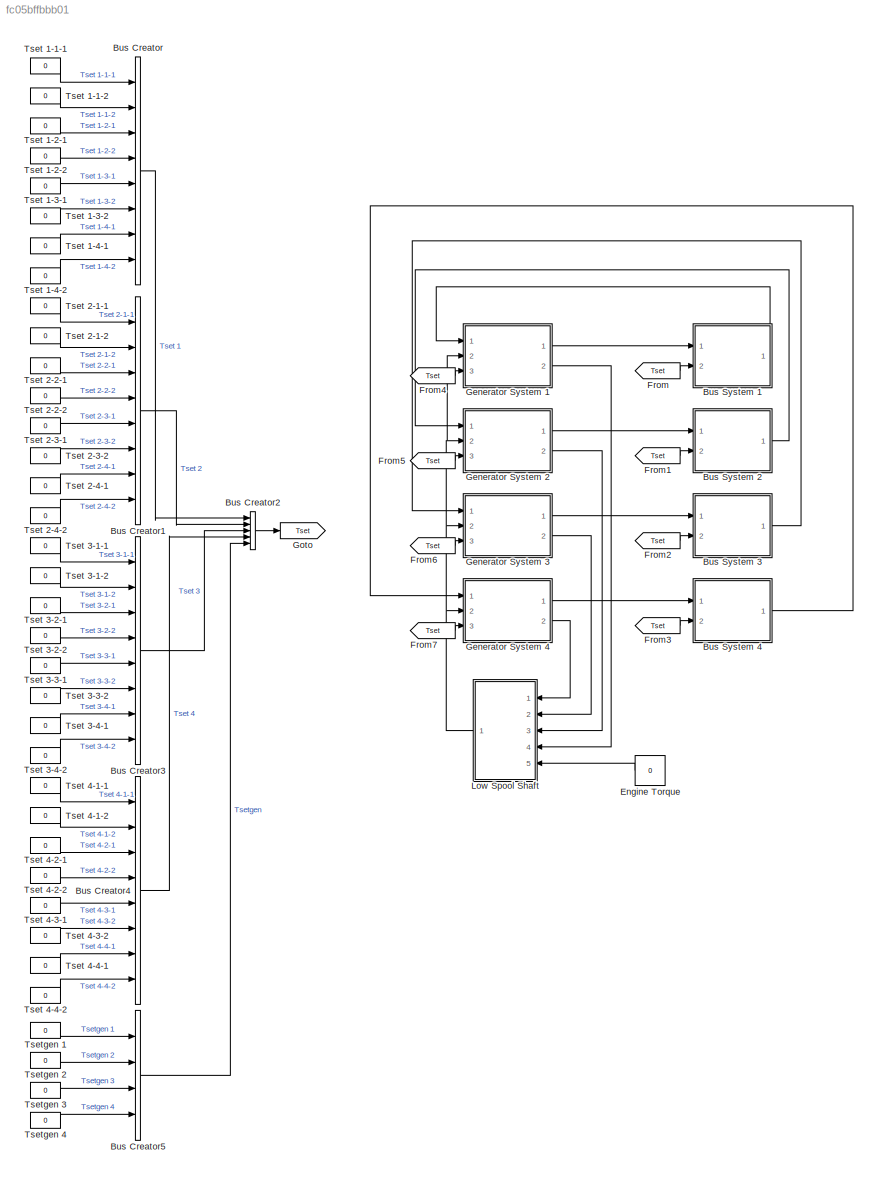
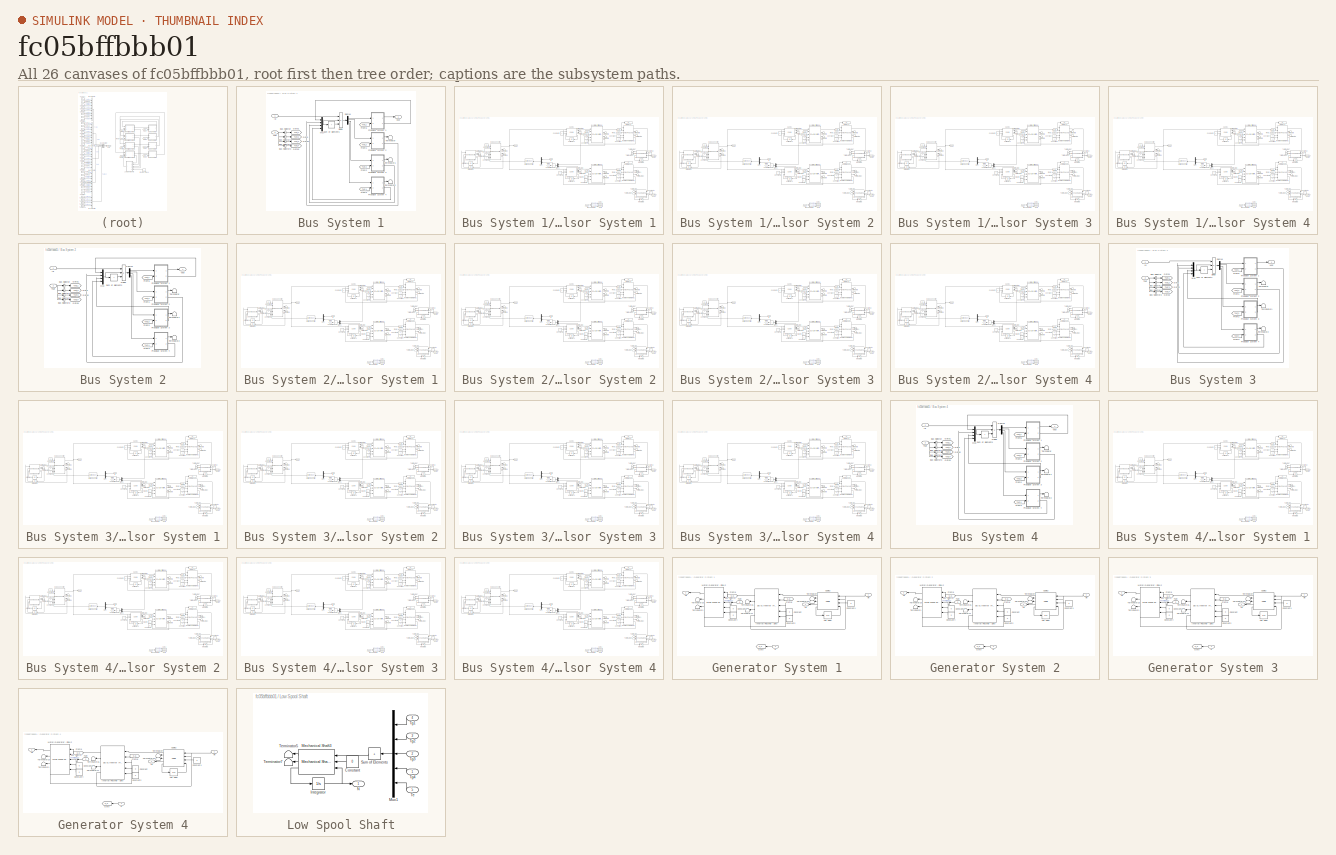
[diagram: thumbnail index - all 26 canvases of the model, root first then tree order]
MODEL slx_fc05bffbbb01
KIND model
CONFIG AbsTol = auto
CONFIG EnableMultiTasking = off
CONFIG FixedStep = 0.02
CONFIG MaxStep = auto
CONFIG MinStep = auto
CONFIG RelTol = 1e-3
CONFIG SampleTimeConstraint = Unconstrained
CONFIG SolverName = FixedStepAuto
CONFIG StartTime = 0.0
CONFIG StopTime = 10
BLOCK [BusCreator] Bus Creator
  DisplayOption = bar
  InheritFromInputs = on
  Inputs = 8
  Ports = [8, 1]
BLOCK [BusCreator] Bus Creator1
  DisplayOption = bar
  InheritFromInputs = on
  Inputs = 8
  Ports = [8, 1]
BLOCK [BusCreator] Bus Creator2
  DisplayOption = bar
  InheritFromInputs = on
  Inputs = 5
  Ports = [5, 1]
BLOCK [BusCreator] Bus Creator3
  DisplayOption = bar
  InheritFromInputs = on
  Inputs = 8
  Ports = [8, 1]
BLOCK [BusCreator] Bus Creator4
  DisplayOption = bar
  InheritFromInputs = on
  Inputs = 8
  Ports = [8, 1]
BLOCK [BusCreator] Bus Creator5
  DisplayOption = bar
  InheritFromInputs = on
  Inputs = 4
  Ports = [4, 1]
BLOCK [SubSystem] Bus System 1
  Ports = [2, 1]
  RequestExecContextInheritance = off
BLOCK [BusSelector] Bus System 1/Bus Selector
  OutputAsBus = on
  OutputSignals = Tset 1.Tset 1-1-1,Tset 1.Tset 1-1-2
  Ports = [1, 1]
BLOCK [BusSelector] Bus System 1/Bus Selector1
  OutputAsBus = on
  OutputSignals = Tset 1.Tset 1-2-1,Tset 1.Tset 1-2-2
  Ports = [1, 1]
BLOCK [BusSelector] Bus System 1/Bus Selector2
  OutputAsBus = on
  OutputSignals = Tset 1.Tset 1-3-1,Tset 1.Tset 1-3-2
  Ports = [1, 1]
BLOCK [BusSelector] Bus System 1/Bus Selector3
  OutputAsBus = on
  OutputSignals = Tset 1.Tset 1-4-1,Tset 1.Tset 1-4-2
  Ports = [1, 1]
BLOCK [Demux] Bus System 1/Demux
  Ports = [1, 4]
BLOCK [Product] Bus System 1/Divide
  Inputs = **/
  Ports = [3, 1]
BLOCK [From] Bus System 1/From1
  GotoTag = Tset_2
BLOCK [From] Bus System 1/From2
  GotoTag = Tset_3
BLOCK [From] Bus System 1/From3
  GotoTag = Tset_4
BLOCK [From] Bus System 1/From6
  GotoTag = Tset_1
BLOCK [Goto] Bus System 1/Goto
  GotoTag = Tset_2
BLOCK [Goto] Bus System 1/Goto1
  GotoTag = Tset_1
BLOCK [Goto] Bus System 1/Goto2
  GotoTag = Tset_3
BLOCK [Goto] Bus System 1/Goto3
  GotoTag = Tset_4
BLOCK [Inport] Bus System 1/Ig
BLOCK [Mux] Bus System 1/Mux
  DisplayOption = bar
  Ports = [4, 1]
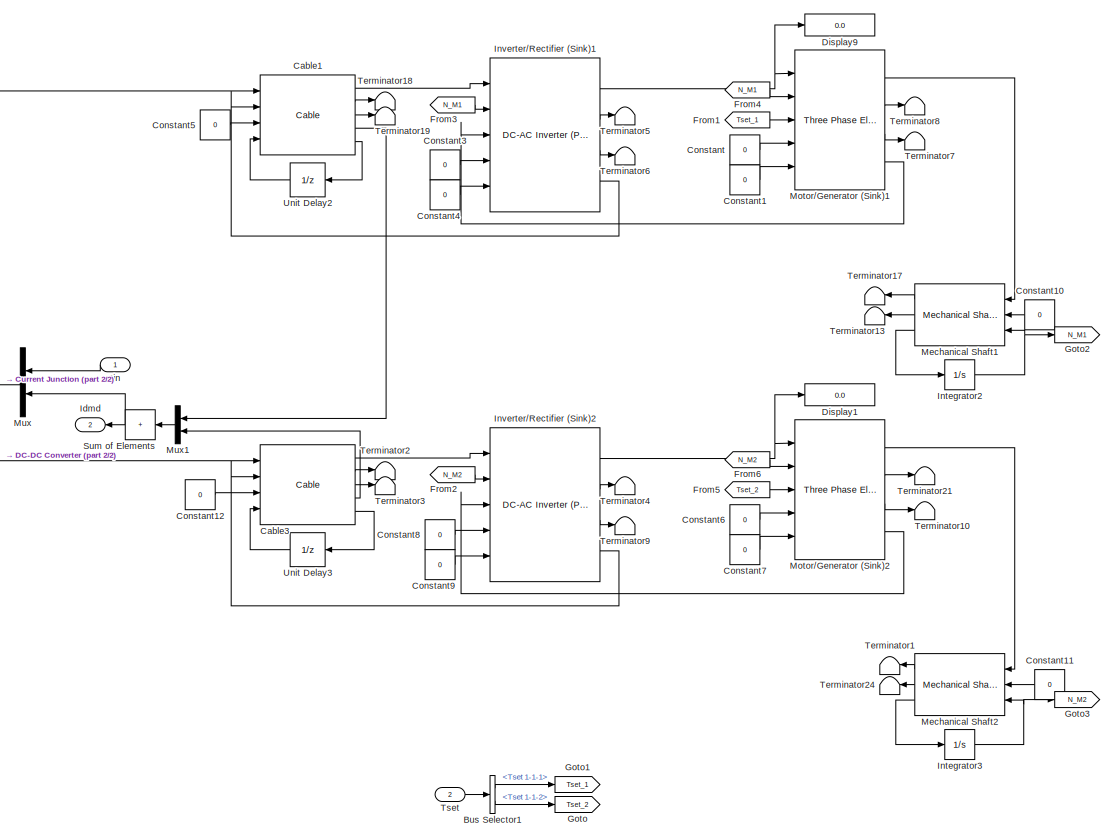
[diagram: Bus System 1/Propulsor System 1 - part 1/2, right side, full height]
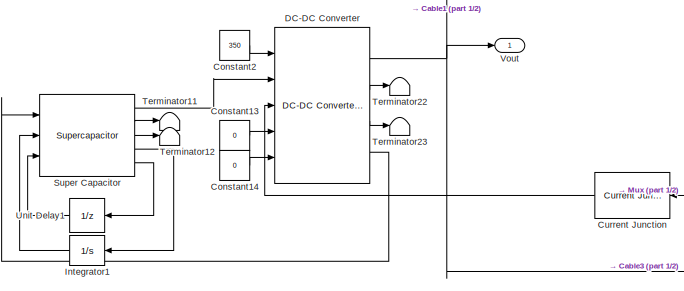
[diagram: Bus System 1/Propulsor System 1 - part 2/2, middle left region]
BLOCK [SubSystem] Bus System 1/Propulsor System 1
  Ports = [2, 2]
  RequestExecContextInheritance = off
BLOCK [BusSelector] Bus System 1/Propulsor System 1/Bus Selector1
  OutputSignals = Tset 1-1-1,Tset 1-1-2
  Ports = [1, 2]
BLOCK [Reference] Bus System 1/Propulsor System 1/Cable1  REF=Lib_EMTAT/Components/Power Flow/Cable
  Ports = [4, 5]
  SourceBlock = Lib_EMTAT/Components/Power Flow/Cable
  SourceProductName = EMTAT
  SourceType = Cable
BLOCK [Reference] Bus System 1/Propulsor System 1/Cable3  REF=Lib_EMTAT/Components/Power Flow/Cable
  Ports = [4, 5]
  SourceBlock = Lib_EMTAT/Components/Power Flow/Cable
  SourceProductName = EMTAT
  SourceType = Cable
BLOCK [Constant] Bus System 1/Propulsor System 1/Constant
  Value = 0
BLOCK [Constant] Bus System 1/Propulsor System 1/Constant1
  Value = 0
BLOCK [Constant] Bus System 1/Propulsor System 1/Constant10
  Value = 0
BLOCK [Constant] Bus System 1/Propulsor System 1/Constant11
  Value = 0
BLOCK [Constant] Bus System 1/Propulsor System 1/Constant12
  Value = 0
BLOCK [Constant] Bus System 1/Propulsor System 1/Constant13
  Value = 0
BLOCK [Constant] Bus System 1/Propulsor System 1/Constant14
  Value = 0
BLOCK [Constant] Bus System 1/Propulsor System 1/Constant2
  Value = 350
BLOCK [Constant] Bus System 1/Propulsor System 1/Constant3
  Value = 0
BLOCK [Constant] Bus System 1/Propulsor System 1/Constant4
  Value = 0
BLOCK [Constant] Bus System 1/Propulsor System 1/Constant5
  Value = 0
BLOCK [Constant] Bus System 1/Propulsor System 1/Constant6
  Value = 0
BLOCK [Constant] Bus System 1/Propulsor System 1/Constant7
  Value = 0
BLOCK [Constant] Bus System 1/Propulsor System 1/Constant8
  Value = 0
BLOCK [Constant] Bus System 1/Propulsor System 1/Constant9
  Value = 0
BLOCK [Reference] Bus System 1/Propulsor System 1/Current Junction  REF=Lib_EMTAT/Components/Power Flow/Current Junction
  AttributesFormatString = Current Junction\nVersion: %<LibraryVersion>
  NameLocation = top
  Ports = [1, 1]
  SourceBlock = Lib_EMTAT/Components/Power Flow/Current Junction
  SourceProductName = EMTAT
  SourceType = Current Junction
BLOCK [Reference] Bus System 1/Propulsor System 1/DC-DC Converter  REF=Lib_EMTAT/Components/Power Flow/DC-DC Converter
(Power Loss Map)
(Set Output Voltage)
  Ports = [5, 4]
  SourceBlock = Lib_EMTAT/Components/Power Flow/DC-DC Converter\n(Power Loss Map)\n(Set Output Voltage)
  SourceProductName = EMTAT
  SourceType = DC-DC Converter (Power Loss Map) (Set Output Voltage)
BLOCK [Display] Bus System 1/Propulsor System 1/Display1
  Decimation = 1
  Ports = [1]
BLOCK [Display] Bus System 1/Propulsor System 1/Display9
  Decimation = 1
  Ports = [1]
BLOCK [From] Bus System 1/Propulsor System 1/From1
  GotoTag = Tset_1
BLOCK [From] Bus System 1/Propulsor System 1/From2
  GotoTag = N_M2
BLOCK [From] Bus System 1/Propulsor System 1/From3
  GotoTag = N_M1
BLOCK [From] Bus System 1/Propulsor System 1/From4
  GotoTag = N_M1
BLOCK [From] Bus System 1/Propulsor System 1/From5
  GotoTag = Tset_2
BLOCK [From] Bus System 1/Propulsor System 1/From6
  GotoTag = N_M2
BLOCK [Goto] Bus System 1/Propulsor System 1/Goto
  GotoTag = Tset_2
BLOCK [Goto] Bus System 1/Propulsor System 1/Goto1
  GotoTag = Tset_1
BLOCK [Goto] Bus System 1/Propulsor System 1/Goto2
  GotoTag = N_M1
BLOCK [Goto] Bus System 1/Propulsor System 1/Goto3
  GotoTag = N_M2
BLOCK [Outport] Bus System 1/Propulsor System 1/Idmd
  Port = 2
BLOCK [Inport] Bus System 1/Propulsor System 1/Iin
BLOCK [Integrator] Bus System 1/Propulsor System 1/Integrator1
  InitialCondition = 150
  Ports = [1, 1]
BLOCK [Integrator] Bus System 1/Propulsor System 1/Integrator2
  InitialCondition = 2000
  Ports = [1, 1]
BLOCK [Integrator] Bus System 1/Propulsor System 1/Integrator3
  InitialCondition = 2000
  Ports = [1, 1]
BLOCK [Reference] Bus System 1/Propulsor System 1/Inverter//Rectifier (Sink)1  REF=Lib_EMTAT/Components/Power Flow/DC-AC Inverter (Power Loss Map)
  Ports = [5, 4]
  SourceBlock = Lib_EMTAT/Components/Power Flow/DC-AC Inverter (Power Loss Map)
  SourceProductName = EMTAT
  SourceType = DC-AC Inverter (Power Loss Map)
BLOCK [Reference] Bus System 1/Propulsor System 1/Inverter//Rectifier (Sink)2  REF=Lib_EMTAT/Components/Power Flow/DC-AC Inverter (Power Loss Map)
  Ports = [5, 4]
  SourceBlock = Lib_EMTAT/Components/Power Flow/DC-AC Inverter (Power Loss Map)
  SourceProductName = EMTAT
  SourceType = DC-AC Inverter (Power Loss Map)
BLOCK [Reference] Bus System 1/Propulsor System 1/Mechanical Shaft1  REF=Lib_EMTAT/Components/Power Flow/Mechanical Shaft
  Ports = [3, 3]
  SourceBlock = Lib_EMTAT/Components/Power Flow/Mechanical Shaft
  SourceProductName = EMTAT
  SourceType = Mechanical Shaft
BLOCK [Reference] Bus System 1/Propulsor System 1/Mechanical Shaft2  REF=Lib_EMTAT/Components/Power Flow/Mechanical Shaft
  Ports = [3, 3]
  SourceBlock = Lib_EMTAT/Components/Power Flow/Mechanical Shaft
  SourceProductName = EMTAT
  SourceType = Mechanical Shaft
BLOCK [Reference] Bus System 1/Propulsor System 1/Motor//Generator (Sink)1  REF=Lib_EMTAT/Components/Power Flow/Three Phase Electric Machine
(Sink)
  Ports = [5, 4]
  SourceBlock = Lib_EMTAT/Components/Power Flow/Three Phase Electric Machine\n(Sink)
  SourceProductName = EMTAT
  SourceType = Three Phase Electric Machine (Sink)
BLOCK [Reference] Bus System 1/Propulsor System 1/Motor//Generator (Sink)2  REF=Lib_EMTAT/Components/Power Flow/Three Phase Electric Machine
(Sink)
  Ports = [5, 4]
  SourceBlock = Lib_EMTAT/Components/Power Flow/Three Phase Electric Machine\n(Sink)
  SourceProductName = EMTAT
  SourceType = Three Phase Electric Machine (Sink)
BLOCK [Mux] Bus System 1/Propulsor System 1/Mux
  DisplayOption = bar
  Inputs = 2
  Ports = [2, 1]
BLOCK [Mux] Bus System 1/Propulsor System 1/Mux1
  DisplayOption = bar
  Inputs = 2
  Ports = [2, 1]
BLOCK [Sum] Bus System 1/Propulsor System 1/Sum of Elements
  IconShape = rectangular
  Inputs = +
  Ports = [1, 1]
BLOCK [Reference] Bus System 1/Propulsor System 1/Super Capacitor  REF=Lib_EMTAT/Components/Power Flow/Supercapacitor
  Ports = [3, 5]
  SourceBlock = Lib_EMTAT/Components/Power Flow/Supercapacitor
  SourceProductName = EMTAT
  SourceType = Supercapacitor
BLOCK [Terminator] Bus System 1/Propulsor System 1/Terminator1
BLOCK [Terminator] Bus System 1/Propulsor System 1/Terminator10
BLOCK [Terminator] Bus System 1/Propulsor System 1/Terminator11
BLOCK [Terminator] Bus System 1/Propulsor System 1/Terminator12
BLOCK [Terminator] Bus System 1/Propulsor System 1/Terminator13
BLOCK [Terminator] Bus System 1/Propulsor System 1/Terminator17
BLOCK [Terminator] Bus System 1/Propulsor System 1/Terminator18
BLOCK [Terminator] Bus System 1/Propulsor System 1/Terminator19
BLOCK [Terminator] Bus System 1/Propulsor System 1/Terminator2
BLOCK [Terminator] Bus System 1/Propulsor System 1/Terminator21
BLOCK [Terminator] Bus System 1/Propulsor System 1/Terminator22
BLOCK [Terminator] Bus System 1/Propulsor System 1/Terminator23
BLOCK [Terminator] Bus System 1/Propulsor System 1/Terminator24
BLOCK [Terminator] Bus System 1/Propulsor System 1/Terminator3
BLOCK [Terminator] Bus System 1/Propulsor System 1/Terminator4
BLOCK [Terminator] Bus System 1/Propulsor System 1/Terminator5
BLOCK [Terminator] Bus System 1/Propulsor System 1/Terminator6
BLOCK [Terminator] Bus System 1/Propulsor System 1/Terminator7
BLOCK [Terminator] Bus System 1/Propulsor System 1/Terminator8
BLOCK [Terminator] Bus System 1/Propulsor System 1/Terminator9
BLOCK [Inport] Bus System 1/Propulsor System 1/Tset
  Port = 2
BLOCK [UnitDelay] Bus System 1/Propulsor System 1/Unit Delay1
  HasFrameUpgradeWarning = on
  SampleTime = -1
BLOCK [UnitDelay] Bus System 1/Propulsor System 1/Unit Delay2
  HasFrameUpgradeWarning = on
  SampleTime = -1
BLOCK [UnitDelay] Bus System 1/Propulsor System 1/Unit Delay3
  HasFrameUpgradeWarning = on
  SampleTime = -1
BLOCK [Outport] Bus System 1/Propulsor System 1/Vout
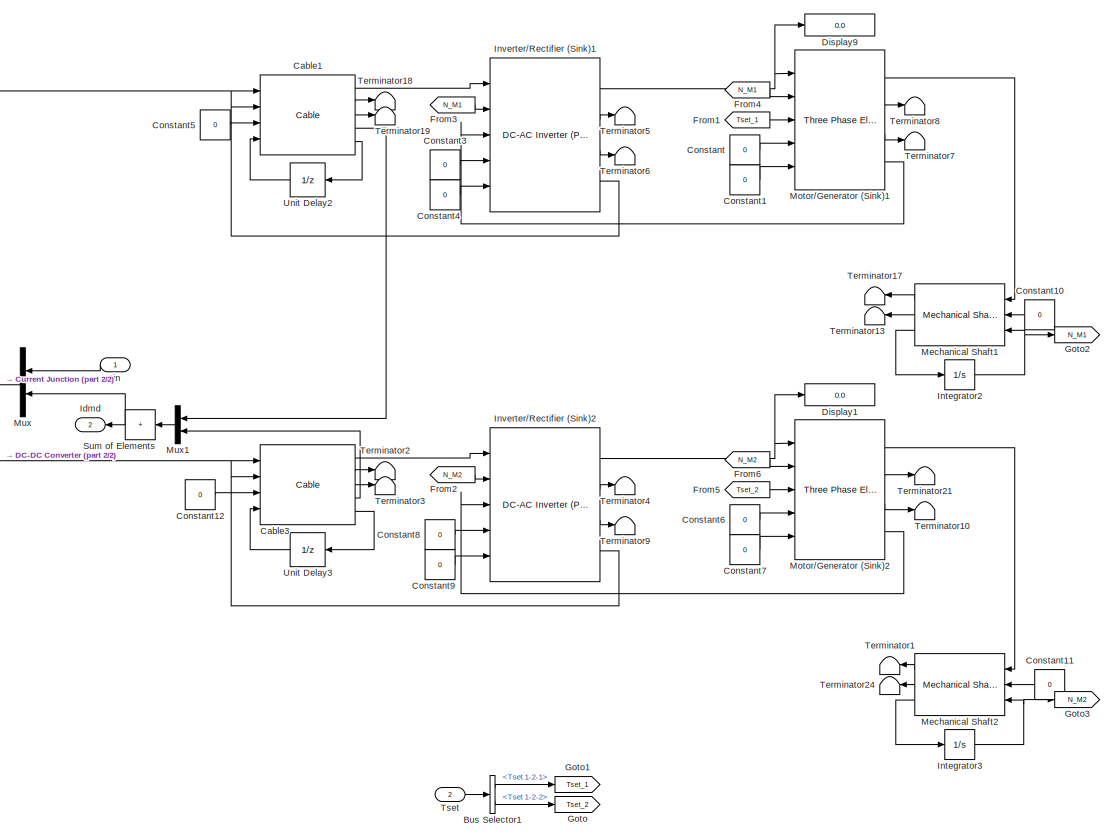
[diagram: Bus System 1/Propulsor System 2 - part 1/2, right side, full height]
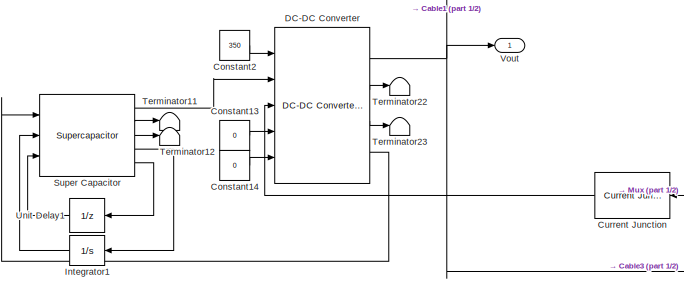
[diagram: Bus System 1/Propulsor System 2 - part 2/2, middle left region]
BLOCK [SubSystem] Bus System 1/Propulsor System 2
  Ports = [2, 2]
  RequestExecContextInheritance = off
BLOCK [BusSelector] Bus System 1/Propulsor System 2/Bus Selector1
  OutputSignals = Tset 1-2-1,Tset 1-2-2
  Ports = [1, 2]
BLOCK [Reference] Bus System 1/Propulsor System 2/Cable1  REF=Lib_EMTAT/Components/Power Flow/Cable
  Ports = [4, 5]
  SourceBlock = Lib_EMTAT/Components/Power Flow/Cable
  SourceProductName = EMTAT
  SourceType = Cable
BLOCK [Reference] Bus System 1/Propulsor System 2/Cable3  REF=Lib_EMTAT/Components/Power Flow/Cable
  Ports = [4, 5]
  SourceBlock = Lib_EMTAT/Components/Power Flow/Cable
  SourceProductName = EMTAT
  SourceType = Cable
BLOCK [Constant] Bus System 1/Propulsor System 2/Constant
  Value = 0
BLOCK [Constant] Bus System 1/Propulsor System 2/Constant1
  Value = 0
BLOCK [Constant] Bus System 1/Propulsor System 2/Constant10
  Value = 0
BLOCK [Constant] Bus System 1/Propulsor System 2/Constant11
  Value = 0
BLOCK [Constant] Bus System 1/Propulsor System 2/Constant12
  Value = 0
BLOCK [Constant] Bus System 1/Propulsor System 2/Constant13
  Value = 0
BLOCK [Constant] Bus System 1/Propulsor System 2/Constant14
  Value = 0
BLOCK [Constant] Bus System 1/Propulsor System 2/Constant2
  Value = 350
BLOCK [Constant] Bus System 1/Propulsor System 2/Constant3
  Value = 0
BLOCK [Constant] Bus System 1/Propulsor System 2/Constant4
  Value = 0
BLOCK [Constant] Bus System 1/Propulsor System 2/Constant5
  Value = 0
BLOCK [Constant] Bus System 1/Propulsor System 2/Constant6
  Value = 0
BLOCK [Constant] Bus System 1/Propulsor System 2/Constant7
  Value = 0
BLOCK [Constant] Bus System 1/Propulsor System 2/Constant8
  Value = 0
BLOCK [Constant] Bus System 1/Propulsor System 2/Constant9
  Value = 0
BLOCK [Reference] Bus System 1/Propulsor System 2/Current Junction  REF=Lib_EMTAT/Components/Power Flow/Current Junction
  AttributesFormatString = Current Junction\nVersion: %<LibraryVersion>
  NameLocation = top
  Ports = [1, 1]
  SourceBlock = Lib_EMTAT/Components/Power Flow/Current Junction
  SourceProductName = EMTAT
  SourceType = Current Junction
BLOCK [Reference] Bus System 1/Propulsor System 2/DC-DC Converter  REF=Lib_EMTAT/Components/Power Flow/DC-DC Converter
(Power Loss Map)
(Set Output Voltage)
  Ports = [5, 4]
  SourceBlock = Lib_EMTAT/Components/Power Flow/DC-DC Converter\n(Power Loss Map)\n(Set Output Voltage)
  SourceProductName = EMTAT
  SourceType = DC-DC Converter (Power Loss Map) (Set Output Voltage)
BLOCK [Display] Bus System 1/Propulsor System 2/Display1
  Decimation = 1
  Ports = [1]
BLOCK [Display] Bus System 1/Propulsor System 2/Display9
  Decimation = 1
  Ports = [1]
BLOCK [From] Bus System 1/Propulsor System 2/From1
  GotoTag = Tset_1
BLOCK [From] Bus System 1/Propulsor System 2/From2
  GotoTag = N_M2
BLOCK [From] Bus System 1/Propulsor System 2/From3
  GotoTag = N_M1
BLOCK [From] Bus System 1/Propulsor System 2/From4
  GotoTag = N_M1
BLOCK [From] Bus System 1/Propulsor System 2/From5
  GotoTag = Tset_2
BLOCK [From] Bus System 1/Propulsor System 2/From6
  GotoTag = N_M2
BLOCK [Goto] Bus System 1/Propulsor System 2/Goto
  GotoTag = Tset_2
BLOCK [Goto] Bus System 1/Propulsor System 2/Goto1
  GotoTag = Tset_1
BLOCK [Goto] Bus System 1/Propulsor System 2/Goto2
  GotoTag = N_M1
BLOCK [Goto] Bus System 1/Propulsor System 2/Goto3
  GotoTag = N_M2
BLOCK [Outport] Bus System 1/Propulsor System 2/Idmd
  Port = 2
BLOCK [Inport] Bus System 1/Propulsor System 2/Iin
BLOCK [Integrator] Bus System 1/Propulsor System 2/Integrator1
  InitialCondition = 150
  Ports = [1, 1]
BLOCK [Integrator] Bus System 1/Propulsor System 2/Integrator2
  InitialCondition = 2000
  Ports = [1, 1]
BLOCK [Integrator] Bus System 1/Propulsor System 2/Integrator3
  InitialCondition = 2000
  Ports = [1, 1]
BLOCK [Reference] Bus System 1/Propulsor System 2/Inverter//Rectifier (Sink)1  REF=Lib_EMTAT/Components/Power Flow/DC-AC Inverter (Power Loss Map)
  Ports = [5, 4]
  SourceBlock = Lib_EMTAT/Components/Power Flow/DC-AC Inverter (Power Loss Map)
  SourceProductName = EMTAT
  SourceType = DC-AC Inverter (Power Loss Map)
BLOCK [Reference] Bus System 1/Propulsor System 2/Inverter//Rectifier (Sink)2  REF=Lib_EMTAT/Components/Power Flow/DC-AC Inverter (Power Loss Map)
  Ports = [5, 4]
  SourceBlock = Lib_EMTAT/Components/Power Flow/DC-AC Inverter (Power Loss Map)
  SourceProductName = EMTAT
  SourceType = DC-AC Inverter (Power Loss Map)
BLOCK [Reference] Bus System 1/Propulsor System 2/Mechanical Shaft1  REF=Lib_EMTAT/Components/Power Flow/Mechanical Shaft
  Ports = [3, 3]
  SourceBlock = Lib_EMTAT/Components/Power Flow/Mechanical Shaft
  SourceProductName = EMTAT
  SourceType = Mechanical Shaft
BLOCK [Reference] Bus System 1/Propulsor System 2/Mechanical Shaft2  REF=Lib_EMTAT/Components/Power Flow/Mechanical Shaft
  Ports = [3, 3]
  SourceBlock = Lib_EMTAT/Components/Power Flow/Mechanical Shaft
  SourceProductName = EMTAT
  SourceType = Mechanical Shaft
BLOCK [Reference] Bus System 1/Propulsor System 2/Motor//Generator (Sink)1  REF=Lib_EMTAT/Components/Power Flow/Three Phase Electric Machine
(Sink)
  Ports = [5, 4]
  SourceBlock = Lib_EMTAT/Components/Power Flow/Three Phase Electric Machine\n(Sink)
  SourceProductName = EMTAT
  SourceType = Three Phase Electric Machine (Sink)
BLOCK [Reference] Bus System 1/Propulsor System 2/Motor//Generator (Sink)2  REF=Lib_EMTAT/Components/Power Flow/Three Phase Electric Machine
(Sink)
  Ports = [5, 4]
  SourceBlock = Lib_EMTAT/Components/Power Flow/Three Phase Electric Machine\n(Sink)
  SourceProductName = EMTAT
  SourceType = Three Phase Electric Machine (Sink)
BLOCK [Mux] Bus System 1/Propulsor System 2/Mux
  DisplayOption = bar
  Inputs = 2
  Ports = [2, 1]
BLOCK [Mux] Bus System 1/Propulsor System 2/Mux1
  DisplayOption = bar
  Inputs = 2
  Ports = [2, 1]
BLOCK [Sum] Bus System 1/Propulsor System 2/Sum of Elements
  IconShape = rectangular
  Inputs = +
  Ports = [1, 1]
BLOCK [Reference] Bus System 1/Propulsor System 2/Super Capacitor  REF=Lib_EMTAT/Components/Power Flow/Supercapacitor
  Ports = [3, 5]
  SourceBlock = Lib_EMTAT/Components/Power Flow/Supercapacitor
  SourceProductName = EMTAT
  SourceType = Supercapacitor
BLOCK [Terminator] Bus System 1/Propulsor System 2/Terminator1
BLOCK [Terminator] Bus System 1/Propulsor System 2/Terminator10
BLOCK [Terminator] Bus System 1/Propulsor System 2/Terminator11
BLOCK [Terminator] Bus System 1/Propulsor System 2/Terminator12
BLOCK [Terminator] Bus System 1/Propulsor System 2/Terminator13
BLOCK [Terminator] Bus System 1/Propulsor System 2/Terminator17
BLOCK [Terminator] Bus System 1/Propulsor System 2/Terminator18
BLOCK [Terminator] Bus System 1/Propulsor System 2/Terminator19
BLOCK [Terminator] Bus System 1/Propulsor System 2/Terminator2
BLOCK [Terminator] Bus System 1/Propulsor System 2/Terminator21
BLOCK [Terminator] Bus System 1/Propulsor System 2/Terminator22
BLOCK [Terminator] Bus System 1/Propulsor System 2/Terminator23
BLOCK [Terminator] Bus System 1/Propulsor System 2/Terminator24
BLOCK [Terminator] Bus System 1/Propulsor System 2/Terminator3
BLOCK [Terminator] Bus System 1/Propulsor System 2/Terminator4
BLOCK [Terminator] Bus System 1/Propulsor System 2/Terminator5
BLOCK [Terminator] Bus System 1/Propulsor System 2/Terminator6
BLOCK [Terminator] Bus System 1/Propulsor System 2/Terminator7
BLOCK [Terminator] Bus System 1/Propulsor System 2/Terminator8
BLOCK [Terminator] Bus System 1/Propulsor System 2/Terminator9
BLOCK [Inport] Bus System 1/Propulsor System 2/Tset
  Port = 2
BLOCK [UnitDelay] Bus System 1/Propulsor System 2/Unit Delay1
  HasFrameUpgradeWarning = on
  SampleTime = -1
BLOCK [UnitDelay] Bus System 1/Propulsor System 2/Unit Delay2
  HasFrameUpgradeWarning = on
  SampleTime = -1
BLOCK [UnitDelay] Bus System 1/Propulsor System 2/Unit Delay3
  HasFrameUpgradeWarning = on
  SampleTime = -1
BLOCK [Outport] Bus System 1/Propulsor System 2/Vout
BLOCK [SubSystem] Bus System 1/Propulsor System 3
  Ports = [2, 2]
  RequestExecContextInheritance = off
BLOCK [BusSelector] Bus System 1/Propulsor System 3/Bus Selector1
  OutputSignals = Tset 1-3-1,Tset 1-3-2
  Ports = [1, 2]
BLOCK [Reference] Bus System 1/Propulsor System 3/Cable1  REF=Lib_EMTAT/Components/Power Flow/Cable
  Ports = [4, 5]
  SourceBlock = Lib_EMTAT/Components/Power Flow/Cable
  SourceProductName = EMTAT
  SourceType = Cable
BLOCK [Reference] Bus System 1/Propulsor System 3/Cable3  REF=Lib_EMTAT/Components/Power Flow/Cable
  Ports = [4, 5]
  SourceBlock = Lib_EMTAT/Components/Power Flow/Cable
  SourceProductName = EMTAT
  SourceType = Cable
BLOCK [Constant] Bus System 1/Propulsor System 3/Constant
  Value = 0
BLOCK [Constant] Bus System 1/Propulsor System 3/Constant1
  Value = 0
BLOCK [Constant] Bus System 1/Propulsor System 3/Constant10
  Value = 0
BLOCK [Constant] Bus System 1/Propulsor System 3/Constant11
  Value = 0
BLOCK [Constant] Bus System 1/Propulsor System 3/Constant12
  Value = 0
BLOCK [Constant] Bus System 1/Propulsor System 3/Constant13
  Value = 0
BLOCK [Constant] Bus System 1/Propulsor System 3/Constant14
  Value = 0
BLOCK [Constant] Bus System 1/Propulsor System 3/Constant2
  Value = 350
BLOCK [Constant] Bus System 1/Propulsor System 3/Constant3
  Value = 0
BLOCK [Constant] Bus System 1/Propulsor System 3/Constant4
  Value = 0
BLOCK [Constant] Bus System 1/Propulsor System 3/Constant5
  Value = 0
BLOCK [Constant] Bus System 1/Propulsor System 3/Constant6
  Value = 0
BLOCK [Constant] Bus System 1/Propulsor System 3/Constant7
  Value = 0
BLOCK [Constant] Bus System 1/Propulsor System 3/Constant8
  Value = 0
BLOCK [Constant] Bus System 1/Propulsor System 3/Constant9
  Value = 0
BLOCK [Reference] Bus System 1/Propulsor System 3/Current Junction  REF=Lib_EMTAT/Components/Power Flow/Current Junction
  AttributesFormatString = Current Junction\nVersion: %<LibraryVersion>
  NameLocation = top
  Ports = [1, 1]
  SourceBlock = Lib_EMTAT/Components/Power Flow/Current Junction
  SourceProductName = EMTAT
  SourceType = Current Junction
BLOCK [Reference] Bus System 1/Propulsor System 3/DC-DC Converter  REF=Lib_EMTAT/Components/Power Flow/DC-DC Converter
(Power Loss Map)
(Set Output Voltage)
  Ports = [5, 4]
  SourceBlock = Lib_EMTAT/Components/Power Flow/DC-DC Converter\n(Power Loss Map)\n(Set Output Voltage)
  SourceProductName = EMTAT
  SourceType = DC-DC Converter (Power Loss Map) (Set Output Voltage)
BLOCK [Display] Bus System 1/Propulsor System 3/Display1
  Decimation = 1
  Ports = [1]
BLOCK [Display] Bus System 1/Propulsor System 3/Display9
  Decimation = 1
  Ports = [1]
BLOCK [From] Bus System 1/Propulsor System 3/From1
  GotoTag = Tset_1
BLOCK [From] Bus System 1/Propulsor System 3/From2
  GotoTag = N_M2
BLOCK [From] Bus System 1/Propulsor System 3/From3
  GotoTag = N_M1
BLOCK [From] Bus System 1/Propulsor System 3/From4
  GotoTag = N_M1
BLOCK [From] Bus System 1/Propulsor System 3/From5
  GotoTag = Tset_2
BLOCK [From] Bus System 1/Propulsor System 3/From6
  GotoTag = N_M2
BLOCK [Goto] Bus System 1/Propulsor System 3/Goto
  GotoTag = Tset_2
BLOCK [Goto] Bus System 1/Propulsor System 3/Goto1
  GotoTag = Tset_1
BLOCK [Goto] Bus System 1/Propulsor System 3/Goto2
  GotoTag = N_M1
BLOCK [Goto] Bus System 1/Propulsor System 3/Goto3
  GotoTag = N_M2
BLOCK [Outport] Bus System 1/Propulsor System 3/Idmd
  Port = 2
BLOCK [Inport] Bus System 1/Propulsor System 3/Iin
BLOCK [Integrator] Bus System 1/Propulsor System 3/Integrator1
  InitialCondition = 150
  Ports = [1, 1]
BLOCK [Integrator] Bus System 1/Propulsor System 3/Integrator2
  InitialCondition = 2000
  Ports = [1, 1]
BLOCK [Integrator] Bus System 1/Propulsor System 3/Integrator3
  InitialCondition = 2000
  Ports = [1, 1]
BLOCK [Reference] Bus System 1/Propulsor System 3/Inverter//Rectifier (Sink)1  REF=Lib_EMTAT/Components/Power Flow/DC-AC Inverter (Power Loss Map)
  Ports = [5, 4]
  SourceBlock = Lib_EMTAT/Components/Power Flow/DC-AC Inverter (Power Loss Map)
  SourceProductName = EMTAT
  SourceType = DC-AC Inverter (Power Loss Map)
BLOCK [Reference] Bus System 1/Propulsor System 3/Inverter//Rectifier (Sink)2  REF=Lib_EMTAT/Components/Power Flow/DC-AC Inverter (Power Loss Map)
  Ports = [5, 4]
  SourceBlock = Lib_EMTAT/Components/Power Flow/DC-AC Inverter (Power Loss Map)
  SourceProductName = EMTAT
  SourceType = DC-AC Inverter (Power Loss Map)
BLOCK [Reference] Bus System 1/Propulsor System 3/Mechanical Shaft1  REF=Lib_EMTAT/Components/Power Flow/Mechanical Shaft
  Ports = [3, 3]
  SourceBlock = Lib_EMTAT/Components/Power Flow/Mechanical Shaft
  SourceProductName = EMTAT
  SourceType = Mechanical Shaft
BLOCK [Reference] Bus System 1/Propulsor System 3/Mechanical Shaft2  REF=Lib_EMTAT/Components/Power Flow/Mechanical Shaft
  Ports = [3, 3]
  SourceBlock = Lib_EMTAT/Components/Power Flow/Mechanical Shaft
  SourceProductName = EMTAT
  SourceType = Mechanical Shaft
BLOCK [Reference] Bus System 1/Propulsor System 3/Motor//Generator (Sink)1  REF=Lib_EMTAT/Components/Power Flow/Three Phase Electric Machine
(Sink)
  Ports = [5, 4]
  SourceBlock = Lib_EMTAT/Components/Power Flow/Three Phase Electric Machine\n(Sink)
  SourceProductName = EMTAT
  SourceType = Three Phase Electric Machine (Sink)
BLOCK [Reference] Bus System 1/Propulsor System 3/Motor//Generator (Sink)2  REF=Lib_EMTAT/Components/Power Flow/Three Phase Electric Machine
(Sink)
  Ports = [5, 4]
  SourceBlock = Lib_EMTAT/Components/Power Flow/Three Phase Electric Machine\n(Sink)
  SourceProductName = EMTAT
  SourceType = Three Phase Electric Machine (Sink)
BLOCK [Mux] Bus System 1/Propulsor System 3/Mux
  DisplayOption = bar
  Inputs = 2
  Ports = [2, 1]
BLOCK [Mux] Bus System 1/Propulsor System 3/Mux1
  DisplayOption = bar
  Inputs = 2
  Ports = [2, 1]
BLOCK [Sum] Bus System 1/Propulsor System 3/Sum of Elements
  IconShape = rectangular
  Inputs = +
  Ports = [1, 1]
BLOCK [Reference] Bus System 1/Propulsor System 3/Super Capacitor  REF=Lib_EMTAT/Components/Power Flow/Supercapacitor
  Ports = [3, 5]
  SourceBlock = Lib_EMTAT/Components/Power Flow/Supercapacitor
  SourceProductName = EMTAT
  SourceType = Supercapacitor
BLOCK [Terminator] Bus System 1/Propulsor System 3/Terminator1
BLOCK [Terminator] Bus System 1/Propulsor System 3/Terminator10
BLOCK [Terminator] Bus System 1/Propulsor System 3/Terminator11
BLOCK [Terminator] Bus System 1/Propulsor System 3/Terminator12
BLOCK [Terminator] Bus System 1/Propulsor System 3/Terminator13
BLOCK [Terminator] Bus System 1/Propulsor System 3/Terminator17
BLOCK [Terminator] Bus System 1/Propulsor System 3/Terminator18
BLOCK [Terminator] Bus System 1/Propulsor System 3/Terminator19
BLOCK [Terminator] Bus System 1/Propulsor System 3/Terminator2
BLOCK [Terminator] Bus System 1/Propulsor System 3/Terminator21
BLOCK [Terminator] Bus System 1/Propulsor System 3/Terminator22
BLOCK [Terminator] Bus System 1/Propulsor System 3/Terminator23
BLOCK [Terminator] Bus System 1/Propulsor System 3/Terminator24
BLOCK [Terminator] Bus System 1/Propulsor System 3/Terminator3
BLOCK [Terminator] Bus System 1/Propulsor System 3/Terminator4
BLOCK [Terminator] Bus System 1/Propulsor System 3/Terminator5
BLOCK [Terminator] Bus System 1/Propulsor System 3/Terminator6
BLOCK [Terminator] Bus System 1/Propulsor System 3/Terminator7
BLOCK [Terminator] Bus System 1/Propulsor System 3/Terminator8
BLOCK [Terminator] Bus System 1/Propulsor System 3/Terminator9
BLOCK [Inport] Bus System 1/Propulsor System 3/Tset
  Port = 2
BLOCK [UnitDelay] Bus System 1/Propulsor System 3/Unit Delay1
  HasFrameUpgradeWarning = on
  SampleTime = -1
BLOCK [UnitDelay] Bus System 1/Propulsor System 3/Unit Delay2
  HasFrameUpgradeWarning = on
  SampleTime = -1
BLOCK [UnitDelay] Bus System 1/Propulsor System 3/Unit Delay3
  HasFrameUpgradeWarning = on
  SampleTime = -1
BLOCK [Outport] Bus System 1/Propulsor System 3/Vout
BLOCK [SubSystem] Bus System 1/Propulsor System 4
  Ports = [2, 2]
  RequestExecContextInheritance = off
BLOCK [BusSelector] Bus System 1/Propulsor System 4/Bus Selector1
  OutputSignals = Tset 1-4-1,Tset 1-4-2
  Ports = [1, 2]
BLOCK [Reference] Bus System 1/Propulsor System 4/Cable1  REF=Lib_EMTAT/Components/Power Flow/Cable
  Ports = [4, 5]
  SourceBlock = Lib_EMTAT/Components/Power Flow/Cable
  SourceProductName = EMTAT
  SourceType = Cable
BLOCK [Reference] Bus System 1/Propulsor System 4/Cable3  REF=Lib_EMTAT/Components/Power Flow/Cable
  Ports = [4, 5]
  SourceBlock = Lib_EMTAT/Components/Power Flow/Cable
  SourceProductName = EMTAT
  SourceType = Cable
BLOCK [Constant] Bus System 1/Propulsor System 4/Constant
  Value = 0
BLOCK [Constant] Bus System 1/Propulsor System 4/Constant1
  Value = 0
BLOCK [Constant] Bus System 1/Propulsor System 4/Constant10
  Value = 0
BLOCK [Constant] Bus System 1/Propulsor System 4/Constant11
  Value = 0
BLOCK [Constant] Bus System 1/Propulsor System 4/Constant12
  Value = 0
BLOCK [Constant] Bus System 1/Propulsor System 4/Constant13
  Value = 0
BLOCK [Constant] Bus System 1/Propulsor System 4/Constant14
  Value = 0
BLOCK [Constant] Bus System 1/Propulsor System 4/Constant2
  Value = 350
BLOCK [Constant] Bus System 1/Propulsor System 4/Constant3
  Value = 0
BLOCK [Constant] Bus System 1/Propulsor System 4/Constant4
  Value = 0
BLOCK [Constant] Bus System 1/Propulsor System 4/Constant5
  Value = 0
BLOCK [Constant] Bus System 1/Propulsor System 4/Constant6
  Value = 0
BLOCK [Constant] Bus System 1/Propulsor System 4/Constant7
  Value = 0
BLOCK [Constant] Bus System 1/Propulsor System 4/Constant8
  Value = 0
BLOCK [Constant] Bus System 1/Propulsor System 4/Constant9
  Value = 0
BLOCK [Reference] Bus System 1/Propulsor System 4/Current Junction  REF=Lib_EMTAT/Components/Power Flow/Current Junction
  AttributesFormatString = Current Junction\nVersion: %<LibraryVersion>
  NameLocation = top
  Ports = [1, 1]
  SourceBlock = Lib_EMTAT/Components/Power Flow/Current Junction
  SourceProductName = EMTAT
  SourceType = Current Junction
BLOCK [Reference] Bus System 1/Propulsor System 4/DC-DC Converter  REF=Lib_EMTAT/Components/Power Flow/DC-DC Converter
(Power Loss Map)
(Set Output Voltage)
  Ports = [5, 4]
  SourceBlock = Lib_EMTAT/Components/Power Flow/DC-DC Converter\n(Power Loss Map)\n(Set Output Voltage)
  SourceProductName = EMTAT
  SourceType = DC-DC Converter (Power Loss Map) (Set Output Voltage)
BLOCK [Display] Bus System 1/Propulsor System 4/Display1
  Decimation = 1
  Ports = [1]
BLOCK [Display] Bus System 1/Propulsor System 4/Display9
  Decimation = 1
  Ports = [1]
BLOCK [From] Bus System 1/Propulsor System 4/From1
  GotoTag = Tset_1
BLOCK [From] Bus System 1/Propulsor System 4/From2
  GotoTag = N_M2
BLOCK [From] Bus System 1/Propulsor System 4/From3
  GotoTag = N_M1
BLOCK [From] Bus System 1/Propulsor System 4/From4
  GotoTag = N_M1
BLOCK [From] Bus System 1/Propulsor System 4/From5
  GotoTag = Tset_2
BLOCK [From] Bus System 1/Propulsor System 4/From6
  GotoTag = N_M2
BLOCK [Goto] Bus System 1/Propulsor System 4/Goto
  GotoTag = Tset_2
BLOCK [Goto] Bus System 1/Propulsor System 4/Goto1
  GotoTag = Tset_1
BLOCK [Goto] Bus System 1/Propulsor System 4/Goto2
  GotoTag = N_M1
BLOCK [Goto] Bus System 1/Propulsor System 4/Goto3
  GotoTag = N_M2
BLOCK [Outport] Bus System 1/Propulsor System 4/Idmd
  Port = 2
BLOCK [Inport] Bus System 1/Propulsor System 4/Iin
BLOCK [Integrator] Bus System 1/Propulsor System 4/Integrator1
  InitialCondition = 150
  Ports = [1, 1]
BLOCK [Integrator] Bus System 1/Propulsor System 4/Integrator2
  InitialCondition = 2000
  Ports = [1, 1]
BLOCK [Integrator] Bus System 1/Propulsor System 4/Integrator3
  InitialCondition = 2000
  Ports = [1, 1]
BLOCK [Reference] Bus System 1/Propulsor System 4/Inverter//Rectifier (Sink)1  REF=Lib_EMTAT/Components/Power Flow/DC-AC Inverter (Power Loss Map)
  Ports = [5, 4]
  SourceBlock = Lib_EMTAT/Components/Power Flow/DC-AC Inverter (Power Loss Map)
  SourceProductName = EMTAT
  SourceType = DC-AC Inverter (Power Loss Map)
BLOCK [Reference] Bus System 1/Propulsor System 4/Inverter//Rectifier (Sink)2  REF=Lib_EMTAT/Components/Power Flow/DC-AC Inverter (Power Loss Map)
  Ports = [5, 4]
  SourceBlock = Lib_EMTAT/Components/Power Flow/DC-AC Inverter (Power Loss Map)
  SourceProductName = EMTAT
  SourceType = DC-AC Inverter (Power Loss Map)
BLOCK [Reference] Bus System 1/Propulsor System 4/Mechanical Shaft1  REF=Lib_EMTAT/Components/Power Flow/Mechanical Shaft
  Ports = [3, 3]
  SourceBlock = Lib_EMTAT/Components/Power Flow/Mechanical Shaft
  SourceProductName = EMTAT
  SourceType = Mechanical Shaft
BLOCK [Reference] Bus System 1/Propulsor System 4/Mechanical Shaft2  REF=Lib_EMTAT/Components/Power Flow/Mechanical Shaft
  Ports = [3, 3]
  SourceBlock = Lib_EMTAT/Components/Power Flow/Mechanical Shaft
  SourceProductName = EMTAT
  SourceType = Mechanical Shaft
BLOCK [Reference] Bus System 1/Propulsor System 4/Motor//Generator (Sink)1  REF=Lib_EMTAT/Components/Power Flow/Three Phase Electric Machine
(Sink)
  Ports = [5, 4]
  SourceBlock = Lib_EMTAT/Components/Power Flow/Three Phase Electric Machine\n(Sink)
  SourceProductName = EMTAT
  SourceType = Three Phase Electric Machine (Sink)
BLOCK [Reference] Bus System 1/Propulsor System 4/Motor//Generator (Sink)2  REF=Lib_EMTAT/Components/Power Flow/Three Phase Electric Machine
(Sink)
  Ports = [5, 4]
  SourceBlock = Lib_EMTAT/Components/Power Flow/Three Phase Electric Machine\n(Sink)
  SourceProductName = EMTAT
  SourceType = Three Phase Electric Machine (Sink)
BLOCK [Mux] Bus System 1/Propulsor System 4/Mux
  DisplayOption = bar
  Inputs = 2
  Ports = [2, 1]
BLOCK [Mux] Bus System 1/Propulsor System 4/Mux1
  DisplayOption = bar
  Inputs = 2
  Ports = [2, 1]
BLOCK [Sum] Bus System 1/Propulsor System 4/Sum of Elements
  IconShape = rectangular
  Inputs = +
  Ports = [1, 1]
BLOCK [Reference] Bus System 1/Propulsor System 4/Super Capacitor  REF=Lib_EMTAT/Components/Power Flow/Supercapacitor
  Ports = [3, 5]
  SourceBlock = Lib_EMTAT/Components/Power Flow/Supercapacitor
  SourceProductName = EMTAT
  SourceType = Supercapacitor
BLOCK [Terminator] Bus System 1/Propulsor System 4/Terminator1
BLOCK [Terminator] Bus System 1/Propulsor System 4/Terminator10
BLOCK [Terminator] Bus System 1/Propulsor System 4/Terminator11
BLOCK [Terminator] Bus System 1/Propulsor System 4/Terminator12
BLOCK [Terminator] Bus System 1/Propulsor System 4/Terminator13
BLOCK [Terminator] Bus System 1/Propulsor System 4/Terminator17
BLOCK [Terminator] Bus System 1/Propulsor System 4/Terminator18
BLOCK [Terminator] Bus System 1/Propulsor System 4/Terminator19
BLOCK [Terminator] Bus System 1/Propulsor System 4/Terminator2
BLOCK [Terminator] Bus System 1/Propulsor System 4/Terminator21
BLOCK [Terminator] Bus System 1/Propulsor System 4/Terminator22
BLOCK [Terminator] Bus System 1/Propulsor System 4/Terminator23
BLOCK [Terminator] Bus System 1/Propulsor System 4/Terminator24
BLOCK [Terminator] Bus System 1/Propulsor System 4/Terminator3
BLOCK [Terminator] Bus System 1/Propulsor System 4/Terminator4
BLOCK [Terminator] Bus System 1/Propulsor System 4/Terminator5
BLOCK [Terminator] Bus System 1/Propulsor System 4/Terminator6
BLOCK [Terminator] Bus System 1/Propulsor System 4/Terminator7
BLOCK [Terminator] Bus System 1/Propulsor System 4/Terminator8
BLOCK [Terminator] Bus System 1/Propulsor System 4/Terminator9
BLOCK [Inport] Bus System 1/Propulsor System 4/Tset
  Port = 2
BLOCK [UnitDelay] Bus System 1/Propulsor System 4/Unit Delay1
  HasFrameUpgradeWarning = on
  SampleTime = -1
BLOCK [UnitDelay] Bus System 1/Propulsor System 4/Unit Delay2
  HasFrameUpgradeWarning = on
  SampleTime = -1
BLOCK [UnitDelay] Bus System 1/Propulsor System 4/Unit Delay3
  HasFrameUpgradeWarning = on
  SampleTime = -1
BLOCK [Outport] Bus System 1/Propulsor System 4/Vout
BLOCK [Sum] Bus System 1/Sum of Elements
  IconShape = rectangular
  Inputs = +
  Ports = [1, 1]
BLOCK [Terminator] Bus System 1/Terminator
BLOCK [Terminator] Bus System 1/Terminator1
BLOCK [Terminator] Bus System 1/Terminator2
BLOCK [Inport] Bus System 1/Tset
  Port = 2
BLOCK [Outport] Bus System 1/Vout
BLOCK [SubSystem] Bus System 2
  Ports = [2, 1]
  RequestExecContextInheritance = off
BLOCK [BusSelector] Bus System 2/Bus Selector
  OutputAsBus = on
  OutputSignals = Tset 2.Tset 2-1-1,Tset 2.Tset 2-1-2
  Ports = [1, 1]
BLOCK [BusSelector] Bus System 2/Bus Selector1
  OutputAsBus = on
  OutputSignals = Tset 2.Tset 2-2-1,Tset 2.Tset 2-2-2
  Ports = [1, 1]
BLOCK [BusSelector] Bus System 2/Bus Selector2
  OutputAsBus = on
  OutputSignals = Tset 2.Tset 2-3-1,Tset 2.Tset 2-3-2
  Ports = [1, 1]
BLOCK [BusSelector] Bus System 2/Bus Selector3
  OutputAsBus = on
  OutputSignals = Tset 2.Tset 2-4-1,Tset 2.Tset 2-4-2
  Ports = [1, 1]
BLOCK [Demux] Bus System 2/Demux
  Ports = [1, 4]
BLOCK [Product] Bus System 2/Divide
  Inputs = **/
  Ports = [3, 1]
BLOCK [From] Bus System 2/From1
  GotoTag = Tset_2
BLOCK [From] Bus System 2/From2
  GotoTag = Tset_3
BLOCK [From] Bus System 2/From3
  GotoTag = Tset_4
BLOCK [From] Bus System 2/From6
  GotoTag = Tset_1
BLOCK [Goto] Bus System 2/Goto
  GotoTag = Tset_2
BLOCK [Goto] Bus System 2/Goto1
  GotoTag = Tset_1
BLOCK [Goto] Bus System 2/Goto2
  GotoTag = Tset_3
BLOCK [Goto] Bus System 2/Goto3
  GotoTag = Tset_4
BLOCK [Inport] Bus System 2/Ig
BLOCK [Mux] Bus System 2/Mux
  DisplayOption = bar
  Ports = [4, 1]
BLOCK [SubSystem] Bus System 2/Propulsor System 1
  Ports = [2, 2]
  RequestExecContextInheritance = off
BLOCK [BusSelector] Bus System 2/Propulsor System 1/Bus Selector1
  OutputSignals = Tset 2-1-1,Tset 2-1-2
  Ports = [1, 2]
BLOCK [Reference] Bus System 2/Propulsor System 1/Cable1  REF=Lib_EMTAT/Components/Power Flow/Cable
  Ports = [4, 5]
  SourceBlock = Lib_EMTAT/Components/Power Flow/Cable
  SourceProductName = EMTAT
  SourceType = Cable
BLOCK [Reference] Bus System 2/Propulsor System 1/Cable3  REF=Lib_EMTAT/Components/Power Flow/Cable
  Ports = [4, 5]
  SourceBlock = Lib_EMTAT/Components/Power Flow/Cable
  SourceProductName = EMTAT
  SourceType = Cable
BLOCK [Constant] Bus System 2/Propulsor System 1/Constant
  Value = 0
BLOCK [Constant] Bus System 2/Propulsor System 1/Constant1
  Value = 0
BLOCK [Constant] Bus System 2/Propulsor System 1/Constant10
  Value = 0
BLOCK [Constant] Bus System 2/Propulsor System 1/Constant11
  Value = 0
BLOCK [Constant] Bus System 2/Propulsor System 1/Constant12
  Value = 0
BLOCK [Constant] Bus System 2/Propulsor System 1/Constant13
  Value = 0
BLOCK [Constant] Bus System 2/Propulsor System 1/Constant14
  Value = 0
BLOCK [Constant] Bus System 2/Propulsor System 1/Constant2
  Value = 350
BLOCK [Constant] Bus System 2/Propulsor System 1/Constant3
  Value = 0
BLOCK [Constant] Bus System 2/Propulsor System 1/Constant4
  Value = 0
BLOCK [Constant] Bus System 2/Propulsor System 1/Constant5
  Value = 0
BLOCK [Constant] Bus System 2/Propulsor System 1/Constant6
  Value = 0
BLOCK [Constant] Bus System 2/Propulsor System 1/Constant7
  Value = 0
BLOCK [Constant] Bus System 2/Propulsor System 1/Constant8
  Value = 0
BLOCK [Constant] Bus System 2/Propulsor System 1/Constant9
  Value = 0
BLOCK [Reference] Bus System 2/Propulsor System 1/Current Junction  REF=Lib_EMTAT/Components/Power Flow/Current Junction
  AttributesFormatString = Current Junction\nVersion: %<LibraryVersion>
  NameLocation = top
  Ports = [1, 1]
  SourceBlock = Lib_EMTAT/Components/Power Flow/Current Junction
  SourceProductName = EMTAT
  SourceType = Current Junction
BLOCK [Reference] Bus System 2/Propulsor System 1/DC-DC Converter  REF=Lib_EMTAT/Components/Power Flow/DC-DC Converter
(Power Loss Map)
(Set Output Voltage)
  Ports = [5, 4]
  SourceBlock = Lib_EMTAT/Components/Power Flow/DC-DC Converter\n(Power Loss Map)\n(Set Output Voltage)
  SourceProductName = EMTAT
  SourceType = DC-DC Converter (Power Loss Map) (Set Output Voltage)
BLOCK [Display] Bus System 2/Propulsor System 1/Display1
  Decimation = 1
  Ports = [1]
BLOCK [Display] Bus System 2/Propulsor System 1/Display9
  Decimation = 1
  Ports = [1]
BLOCK [From] Bus System 2/Propulsor System 1/From1
  GotoTag = Tset_1
BLOCK [From] Bus System 2/Propulsor System 1/From2
  GotoTag = N_M2
BLOCK [From] Bus System 2/Propulsor System 1/From3
  GotoTag = N_M1
BLOCK [From] Bus System 2/Propulsor System 1/From4
  GotoTag = N_M1
BLOCK [From] Bus System 2/Propulsor System 1/From5
  GotoTag = Tset_2
BLOCK [From] Bus System 2/Propulsor System 1/From6
  GotoTag = N_M2
BLOCK [Goto] Bus System 2/Propulsor System 1/Goto
  GotoTag = Tset_2
BLOCK [Goto] Bus System 2/Propulsor System 1/Goto1
  GotoTag = Tset_1
BLOCK [Goto] Bus System 2/Propulsor System 1/Goto2
  GotoTag = N_M1
BLOCK [Goto] Bus System 2/Propulsor System 1/Goto3
  GotoTag = N_M2
BLOCK [Outport] Bus System 2/Propulsor System 1/Idmd
  Port = 2
BLOCK [Inport] Bus System 2/Propulsor System 1/Iin
BLOCK [Integrator] Bus System 2/Propulsor System 1/Integrator1
  InitialCondition = 150
  Ports = [1, 1]
BLOCK [Integrator] Bus System 2/Propulsor System 1/Integrator2
  InitialCondition = 2000
  Ports = [1, 1]
BLOCK [Integrator] Bus System 2/Propulsor System 1/Integrator3
  InitialCondition = 2000
  Ports = [1, 1]
BLOCK [Reference] Bus System 2/Propulsor System 1/Inverter//Rectifier (Sink)1  REF=Lib_EMTAT/Components/Power Flow/DC-AC Inverter (Power Loss Map)
  Ports = [5, 4]
  SourceBlock = Lib_EMTAT/Components/Power Flow/DC-AC Inverter (Power Loss Map)
  SourceProductName = EMTAT
  SourceType = DC-AC Inverter (Power Loss Map)
BLOCK [Reference] Bus System 2/Propulsor System 1/Inverter//Rectifier (Sink)2  REF=Lib_EMTAT/Components/Power Flow/DC-AC Inverter (Power Loss Map)
  Ports = [5, 4]
  SourceBlock = Lib_EMTAT/Components/Power Flow/DC-AC Inverter (Power Loss Map)
  SourceProductName = EMTAT
  SourceType = DC-AC Inverter (Power Loss Map)
BLOCK [Reference] Bus System 2/Propulsor System 1/Mechanical Shaft1  REF=Lib_EMTAT/Components/Power Flow/Mechanical Shaft
  Ports = [3, 3]
  SourceBlock = Lib_EMTAT/Components/Power Flow/Mechanical Shaft
  SourceProductName = EMTAT
  SourceType = Mechanical Shaft
BLOCK [Reference] Bus System 2/Propulsor System 1/Mechanical Shaft2  REF=Lib_EMTAT/Components/Power Flow/Mechanical Shaft
  Ports = [3, 3]
  SourceBlock = Lib_EMTAT/Components/Power Flow/Mechanical Shaft
  SourceProductName = EMTAT
  SourceType = Mechanical Shaft
BLOCK [Reference] Bus System 2/Propulsor System 1/Motor//Generator (Sink)1  REF=Lib_EMTAT/Components/Power Flow/Three Phase Electric Machine
(Sink)
  Ports = [5, 4]
  SourceBlock = Lib_EMTAT/Components/Power Flow/Three Phase Electric Machine\n(Sink)
  SourceProductName = EMTAT
  SourceType = Three Phase Electric Machine (Sink)
BLOCK [Reference] Bus System 2/Propulsor System 1/Motor//Generator (Sink)2  REF=Lib_EMTAT/Components/Power Flow/Three Phase Electric Machine
(Sink)
  Ports = [5, 4]
  SourceBlock = Lib_EMTAT/Components/Power Flow/Three Phase Electric Machine\n(Sink)
  SourceProductName = EMTAT
  SourceType = Three Phase Electric Machine (Sink)
BLOCK [Mux] Bus System 2/Propulsor System 1/Mux
  DisplayOption = bar
  Inputs = 2
  Ports = [2, 1]
BLOCK [Mux] Bus System 2/Propulsor System 1/Mux1
  DisplayOption = bar
  Inputs = 2
  Ports = [2, 1]
BLOCK [Sum] Bus System 2/Propulsor System 1/Sum of Elements
  IconShape = rectangular
  Inputs = +
  Ports = [1, 1]
BLOCK [Reference] Bus System 2/Propulsor System 1/Super Capacitor  REF=Lib_EMTAT/Components/Power Flow/Supercapacitor
  Ports = [3, 5]
  SourceBlock = Lib_EMTAT/Components/Power Flow/Supercapacitor
  SourceProductName = EMTAT
  SourceType = Supercapacitor
BLOCK [Terminator] Bus System 2/Propulsor System 1/Terminator1
BLOCK [Terminator] Bus System 2/Propulsor System 1/Terminator10
BLOCK [Terminator] Bus System 2/Propulsor System 1/Terminator11
BLOCK [Terminator] Bus System 2/Propulsor System 1/Terminator12
BLOCK [Terminator] Bus System 2/Propulsor System 1/Terminator13
BLOCK [Terminator] Bus System 2/Propulsor System 1/Terminator17
BLOCK [Terminator] Bus System 2/Propulsor System 1/Terminator18
BLOCK [Terminator] Bus System 2/Propulsor System 1/Terminator19
BLOCK [Terminator] Bus System 2/Propulsor System 1/Terminator2
BLOCK [Terminator] Bus System 2/Propulsor System 1/Terminator21
BLOCK [Terminator] Bus System 2/Propulsor System 1/Terminator22
BLOCK [Terminator] Bus System 2/Propulsor System 1/Terminator23
BLOCK [Terminator] Bus System 2/Propulsor System 1/Terminator24
BLOCK [Terminator] Bus System 2/Propulsor System 1/Terminator3
BLOCK [Terminator] Bus System 2/Propulsor System 1/Terminator4
BLOCK [Terminator] Bus System 2/Propulsor System 1/Terminator5
BLOCK [Terminator] Bus System 2/Propulsor System 1/Terminator6
BLOCK [Terminator] Bus System 2/Propulsor System 1/Terminator7
BLOCK [Terminator] Bus System 2/Propulsor System 1/Terminator8
BLOCK [Terminator] Bus System 2/Propulsor System 1/Terminator9
BLOCK [Inport] Bus System 2/Propulsor System 1/Tset
  Port = 2
BLOCK [UnitDelay] Bus System 2/Propulsor System 1/Unit Delay1
  HasFrameUpgradeWarning = on
  SampleTime = -1
BLOCK [UnitDelay] Bus System 2/Propulsor System 1/Unit Delay2
  HasFrameUpgradeWarning = on
  SampleTime = -1
BLOCK [UnitDelay] Bus System 2/Propulsor System 1/Unit Delay3
  HasFrameUpgradeWarning = on
  SampleTime = -1
BLOCK [Outport] Bus System 2/Propulsor System 1/Vout
BLOCK [SubSystem] Bus System 2/Propulsor System 2
  Ports = [2, 2]
  RequestExecContextInheritance = off
BLOCK [BusSelector] Bus System 2/Propulsor System 2/Bus Selector1
  OutputSignals = Tset 2-2-1,Tset 2-2-2
  Ports = [1, 2]
BLOCK [Reference] Bus System 2/Propulsor System 2/Cable1  REF=Lib_EMTAT/Components/Power Flow/Cable
  Ports = [4, 5]
  SourceBlock = Lib_EMTAT/Components/Power Flow/Cable
  SourceProductName = EMTAT
  SourceType = Cable
BLOCK [Reference] Bus System 2/Propulsor System 2/Cable3  REF=Lib_EMTAT/Components/Power Flow/Cable
  Ports = [4, 5]
  SourceBlock = Lib_EMTAT/Components/Power Flow/Cable
  SourceProductName = EMTAT
  SourceType = Cable
BLOCK [Constant] Bus System 2/Propulsor System 2/Constant
  Value = 0
BLOCK [Constant] Bus System 2/Propulsor System 2/Constant1
  Value = 0
BLOCK [Constant] Bus System 2/Propulsor System 2/Constant10
  Value = 0
BLOCK [Constant] Bus System 2/Propulsor System 2/Constant11
  Value = 0
BLOCK [Constant] Bus System 2/Propulsor System 2/Constant12
  Value = 0
BLOCK [Constant] Bus System 2/Propulsor System 2/Constant13
  Value = 0
BLOCK [Constant] Bus System 2/Propulsor System 2/Constant14
  Value = 0
BLOCK [Constant] Bus System 2/Propulsor System 2/Constant2
  Value = 350
BLOCK [Constant] Bus System 2/Propulsor System 2/Constant3
  Value = 0
BLOCK [Constant] Bus System 2/Propulsor System 2/Constant4
  Value = 0
BLOCK [Constant] Bus System 2/Propulsor System 2/Constant5
  Value = 0
BLOCK [Constant] Bus System 2/Propulsor System 2/Constant6
  Value = 0
BLOCK [Constant] Bus System 2/Propulsor System 2/Constant7
  Value = 0
BLOCK [Constant] Bus System 2/Propulsor System 2/Constant8
  Value = 0
BLOCK [Constant] Bus System 2/Propulsor System 2/Constant9
  Value = 0
BLOCK [Reference] Bus System 2/Propulsor System 2/Current Junction  REF=Lib_EMTAT/Components/Power Flow/Current Junction
  AttributesFormatString = Current Junction\nVersion: %<LibraryVersion>
  NameLocation = top
  Ports = [1, 1]
  SourceBlock = Lib_EMTAT/Components/Power Flow/Current Junction
  SourceProductName = EMTAT
  SourceType = Current Junction
BLOCK [Reference] Bus System 2/Propulsor System 2/DC-DC Converter  REF=Lib_EMTAT/Components/Power Flow/DC-DC Converter
(Power Loss Map)
(Set Output Voltage)
  Ports = [5, 4]
  SourceBlock = Lib_EMTAT/Components/Power Flow/DC-DC Converter\n(Power Loss Map)\n(Set Output Voltage)
  SourceProductName = EMTAT
  SourceType = DC-DC Converter (Power Loss Map) (Set Output Voltage)
BLOCK [Display] Bus System 2/Propulsor System 2/Display1
  Decimation = 1
  Ports = [1]
BLOCK [Display] Bus System 2/Propulsor System 2/Display9
  Decimation = 1
  Ports = [1]
BLOCK [From] Bus System 2/Propulsor System 2/From1
  GotoTag = Tset_1
BLOCK [From] Bus System 2/Propulsor System 2/From2
  GotoTag = N_M2
BLOCK [From] Bus System 2/Propulsor System 2/From3
  GotoTag = N_M1
BLOCK [From] Bus System 2/Propulsor System 2/From4
  GotoTag = N_M1
BLOCK [From] Bus System 2/Propulsor System 2/From5
  GotoTag = Tset_2
BLOCK [From] Bus System 2/Propulsor System 2/From6
  GotoTag = N_M2
BLOCK [Goto] Bus System 2/Propulsor System 2/Goto
  GotoTag = Tset_2
BLOCK [Goto] Bus System 2/Propulsor System 2/Goto1
  GotoTag = Tset_1
BLOCK [Goto] Bus System 2/Propulsor System 2/Goto2
  GotoTag = N_M1
BLOCK [Goto] Bus System 2/Propulsor System 2/Goto3
  GotoTag = N_M2
BLOCK [Outport] Bus System 2/Propulsor System 2/Idmd
  Port = 2
BLOCK [Inport] Bus System 2/Propulsor System 2/Iin
BLOCK [Integrator] Bus System 2/Propulsor System 2/Integrator1
  InitialCondition = 150
  Ports = [1, 1]
BLOCK [Integrator] Bus System 2/Propulsor System 2/Integrator2
  InitialCondition = 2000
  Ports = [1, 1]
BLOCK [Integrator] Bus System 2/Propulsor System 2/Integrator3
  InitialCondition = 2000
  Ports = [1, 1]
BLOCK [Reference] Bus System 2/Propulsor System 2/Inverter//Rectifier (Sink)1  REF=Lib_EMTAT/Components/Power Flow/DC-AC Inverter (Power Loss Map)
  Ports = [5, 4]
  SourceBlock = Lib_EMTAT/Components/Power Flow/DC-AC Inverter (Power Loss Map)
  SourceProductName = EMTAT
  SourceType = DC-AC Inverter (Power Loss Map)
BLOCK [Reference] Bus System 2/Propulsor System 2/Inverter//Rectifier (Sink)2  REF=Lib_EMTAT/Components/Power Flow/DC-AC Inverter (Power Loss Map)
  Ports = [5, 4]
  SourceBlock = Lib_EMTAT/Components/Power Flow/DC-AC Inverter (Power Loss Map)
  SourceProductName = EMTAT
  SourceType = DC-AC Inverter (Power Loss Map)
BLOCK [Reference] Bus System 2/Propulsor System 2/Mechanical Shaft1  REF=Lib_EMTAT/Components/Power Flow/Mechanical Shaft
  Ports = [3, 3]
  SourceBlock = Lib_EMTAT/Components/Power Flow/Mechanical Shaft
  SourceProductName = EMTAT
  SourceType = Mechanical Shaft
BLOCK [Reference] Bus System 2/Propulsor System 2/Mechanical Shaft2  REF=Lib_EMTAT/Components/Power Flow/Mechanical Shaft
  Ports = [3, 3]
  SourceBlock = Lib_EMTAT/Components/Power Flow/Mechanical Shaft
  SourceProductName = EMTAT
  SourceType = Mechanical Shaft
BLOCK [Reference] Bus System 2/Propulsor System 2/Motor//Generator (Sink)1  REF=Lib_EMTAT/Components/Power Flow/Three Phase Electric Machine
(Sink)
  Ports = [5, 4]
  SourceBlock = Lib_EMTAT/Components/Power Flow/Three Phase Electric Machine\n(Sink)
  SourceProductName = EMTAT
  SourceType = Three Phase Electric Machine (Sink)
BLOCK [Reference] Bus System 2/Propulsor System 2/Motor//Generator (Sink)2  REF=Lib_EMTAT/Components/Power Flow/Three Phase Electric Machine
(Sink)
  Ports = [5, 4]
  SourceBlock = Lib_EMTAT/Components/Power Flow/Three Phase Electric Machine\n(Sink)
  SourceProductName = EMTAT
  SourceType = Three Phase Electric Machine (Sink)
BLOCK [Mux] Bus System 2/Propulsor System 2/Mux
  DisplayOption = bar
  Inputs = 2
  Ports = [2, 1]
BLOCK [Mux] Bus System 2/Propulsor System 2/Mux1
  DisplayOption = bar
  Inputs = 2
  Ports = [2, 1]
BLOCK [Sum] Bus System 2/Propulsor System 2/Sum of Elements
  IconShape = rectangular
  Inputs = +
  Ports = [1, 1]
BLOCK [Reference] Bus System 2/Propulsor System 2/Super Capacitor  REF=Lib_EMTAT/Components/Power Flow/Supercapacitor
  Ports = [3, 5]
  SourceBlock = Lib_EMTAT/Components/Power Flow/Supercapacitor
  SourceProductName = EMTAT
  SourceType = Supercapacitor
BLOCK [Terminator] Bus System 2/Propulsor System 2/Terminator1
BLOCK [Terminator] Bus System 2/Propulsor System 2/Terminator10
BLOCK [Terminator] Bus System 2/Propulsor System 2/Terminator11
BLOCK [Terminator] Bus System 2/Propulsor System 2/Terminator12
BLOCK [Terminator] Bus System 2/Propulsor System 2/Terminator13
BLOCK [Terminator] Bus System 2/Propulsor System 2/Terminator17
BLOCK [Terminator] Bus System 2/Propulsor System 2/Terminator18
BLOCK [Terminator] Bus System 2/Propulsor System 2/Terminator19
BLOCK [Terminator] Bus System 2/Propulsor System 2/Terminator2
BLOCK [Terminator] Bus System 2/Propulsor System 2/Terminator21
BLOCK [Terminator] Bus System 2/Propulsor System 2/Terminator22
BLOCK [Terminator] Bus System 2/Propulsor System 2/Terminator23
BLOCK [Terminator] Bus System 2/Propulsor System 2/Terminator24
BLOCK [Terminator] Bus System 2/Propulsor System 2/Terminator3
BLOCK [Terminator] Bus System 2/Propulsor System 2/Terminator4
BLOCK [Terminator] Bus System 2/Propulsor System 2/Terminator5
BLOCK [Terminator] Bus System 2/Propulsor System 2/Terminator6
BLOCK [Terminator] Bus System 2/Propulsor System 2/Terminator7
BLOCK [Terminator] Bus System 2/Propulsor System 2/Terminator8
BLOCK [Terminator] Bus System 2/Propulsor System 2/Terminator9
BLOCK [Inport] Bus System 2/Propulsor System 2/Tset
  Port = 2
BLOCK [UnitDelay] Bus System 2/Propulsor System 2/Unit Delay1
  HasFrameUpgradeWarning = on
  SampleTime = -1
BLOCK [UnitDelay] Bus System 2/Propulsor System 2/Unit Delay2
  HasFrameUpgradeWarning = on
  SampleTime = -1
BLOCK [UnitDelay] Bus System 2/Propulsor System 2/Unit Delay3
  HasFrameUpgradeWarning = on
  SampleTime = -1
BLOCK [Outport] Bus System 2/Propulsor System 2/Vout
BLOCK [SubSystem] Bus System 2/Propulsor System 3
  Ports = [2, 2]
  RequestExecContextInheritance = off
BLOCK [BusSelector] Bus System 2/Propulsor System 3/Bus Selector1
  OutputSignals = Tset 2-3-1,Tset 2-3-2
  Ports = [1, 2]
BLOCK [Reference] Bus System 2/Propulsor System 3/Cable1  REF=Lib_EMTAT/Components/Power Flow/Cable
  Ports = [4, 5]
  SourceBlock = Lib_EMTAT/Components/Power Flow/Cable
  SourceProductName = EMTAT
  SourceType = Cable
BLOCK [Reference] Bus System 2/Propulsor System 3/Cable3  REF=Lib_EMTAT/Components/Power Flow/Cable
  Ports = [4, 5]
  SourceBlock = Lib_EMTAT/Components/Power Flow/Cable
  SourceProductName = EMTAT
  SourceType = Cable
BLOCK [Constant] Bus System 2/Propulsor System 3/Constant
  Value = 0
BLOCK [Constant] Bus System 2/Propulsor System 3/Constant1
  Value = 0
BLOCK [Constant] Bus System 2/Propulsor System 3/Constant10
  Value = 0
BLOCK [Constant] Bus System 2/Propulsor System 3/Constant11
  Value = 0
BLOCK [Constant] Bus System 2/Propulsor System 3/Constant12
  Value = 0
BLOCK [Constant] Bus System 2/Propulsor System 3/Constant13
  Value = 0
BLOCK [Constant] Bus System 2/Propulsor System 3/Constant14
  Value = 0
BLOCK [Constant] Bus System 2/Propulsor System 3/Constant2
  Value = 350
BLOCK [Constant] Bus System 2/Propulsor System 3/Constant3
  Value = 0
BLOCK [Constant] Bus System 2/Propulsor System 3/Constant4
  Value = 0
BLOCK [Constant] Bus System 2/Propulsor System 3/Constant5
  Value = 0
BLOCK [Constant] Bus System 2/Propulsor System 3/Constant6
  Value = 0
BLOCK [Constant] Bus System 2/Propulsor System 3/Constant7
  Value = 0
BLOCK [Constant] Bus System 2/Propulsor System 3/Constant8
  Value = 0
BLOCK [Constant] Bus System 2/Propulsor System 3/Constant9
  Value = 0
BLOCK [Reference] Bus System 2/Propulsor System 3/Current Junction  REF=Lib_EMTAT/Components/Power Flow/Current Junction
  AttributesFormatString = Current Junction\nVersion: %<LibraryVersion>
  NameLocation = top
  Ports = [1, 1]
  SourceBlock = Lib_EMTAT/Components/Power Flow/Current Junction
  SourceProductName = EMTAT
  SourceType = Current Junction
BLOCK [Reference] Bus System 2/Propulsor System 3/DC-DC Converter  REF=Lib_EMTAT/Components/Power Flow/DC-DC Converter
(Power Loss Map)
(Set Output Voltage)
  Ports = [5, 4]
  SourceBlock = Lib_EMTAT/Components/Power Flow/DC-DC Converter\n(Power Loss Map)\n(Set Output Voltage)
  SourceProductName = EMTAT
  SourceType = DC-DC Converter (Power Loss Map) (Set Output Voltage)
BLOCK [Display] Bus System 2/Propulsor System 3/Display1
  Decimation = 1
  Ports = [1]
BLOCK [Display] Bus System 2/Propulsor System 3/Display9
  Decimation = 1
  Ports = [1]
BLOCK [From] Bus System 2/Propulsor System 3/From1
  GotoTag = Tset_1
BLOCK [From] Bus System 2/Propulsor System 3/From2
  GotoTag = N_M2
BLOCK [From] Bus System 2/Propulsor System 3/From3
  GotoTag = N_M1
BLOCK [From] Bus System 2/Propulsor System 3/From4
  GotoTag = N_M1
BLOCK [From] Bus System 2/Propulsor System 3/From5
  GotoTag = Tset_2
BLOCK [From] Bus System 2/Propulsor System 3/From6
  GotoTag = N_M2
BLOCK [Goto] Bus System 2/Propulsor System 3/Goto
  GotoTag = Tset_2
BLOCK [Goto] Bus System 2/Propulsor System 3/Goto1
  GotoTag = Tset_1
BLOCK [Goto] Bus System 2/Propulsor System 3/Goto2
  GotoTag = N_M1
BLOCK [Goto] Bus System 2/Propulsor System 3/Goto3
  GotoTag = N_M2
BLOCK [Outport] Bus System 2/Propulsor System 3/Idmd
  Port = 2
BLOCK [Inport] Bus System 2/Propulsor System 3/Iin
BLOCK [Integrator] Bus System 2/Propulsor System 3/Integrator1
  InitialCondition = 150
  Ports = [1, 1]
BLOCK [Integrator] Bus System 2/Propulsor System 3/Integrator2
  InitialCondition = 2000
  Ports = [1, 1]
BLOCK [Integrator] Bus System 2/Propulsor System 3/Integrator3
  InitialCondition = 2000
  Ports = [1, 1]
BLOCK [Reference] Bus System 2/Propulsor System 3/Inverter//Rectifier (Sink)1  REF=Lib_EMTAT/Components/Power Flow/DC-AC Inverter (Power Loss Map)
  Ports = [5, 4]
  SourceBlock = Lib_EMTAT/Components/Power Flow/DC-AC Inverter (Power Loss Map)
  SourceProductName = EMTAT
  SourceType = DC-AC Inverter (Power Loss Map)
BLOCK [Reference] Bus System 2/Propulsor System 3/Inverter//Rectifier (Sink)2  REF=Lib_EMTAT/Components/Power Flow/DC-AC Inverter (Power Loss Map)
  Ports = [5, 4]
  SourceBlock = Lib_EMTAT/Components/Power Flow/DC-AC Inverter (Power Loss Map)
  SourceProductName = EMTAT
  SourceType = DC-AC Inverter (Power Loss Map)
BLOCK [Reference] Bus System 2/Propulsor System 3/Mechanical Shaft1  REF=Lib_EMTAT/Components/Power Flow/Mechanical Shaft
  Ports = [3, 3]
  SourceBlock = Lib_EMTAT/Components/Power Flow/Mechanical Shaft
  SourceProductName = EMTAT
  SourceType = Mechanical Shaft
BLOCK [Reference] Bus System 2/Propulsor System 3/Mechanical Shaft2  REF=Lib_EMTAT/Components/Power Flow/Mechanical Shaft
  Ports = [3, 3]
  SourceBlock = Lib_EMTAT/Components/Power Flow/Mechanical Shaft
  SourceProductName = EMTAT
  SourceType = Mechanical Shaft
BLOCK [Reference] Bus System 2/Propulsor System 3/Motor//Generator (Sink)1  REF=Lib_EMTAT/Components/Power Flow/Three Phase Electric Machine
(Sink)
  Ports = [5, 4]
  SourceBlock = Lib_EMTAT/Components/Power Flow/Three Phase Electric Machine\n(Sink)
  SourceProductName = EMTAT
  SourceType = Three Phase Electric Machine (Sink)
BLOCK [Reference] Bus System 2/Propulsor System 3/Motor//Generator (Sink)2  REF=Lib_EMTAT/Components/Power Flow/Three Phase Electric Machine
(Sink)
  Ports = [5, 4]
  SourceBlock = Lib_EMTAT/Components/Power Flow/Three Phase Electric Machine\n(Sink)
  SourceProductName = EMTAT
  SourceType = Three Phase Electric Machine (Sink)
BLOCK [Mux] Bus System 2/Propulsor System 3/Mux
  DisplayOption = bar
  Inputs = 2
  Ports = [2, 1]
BLOCK [Mux] Bus System 2/Propulsor System 3/Mux1
  DisplayOption = bar
  Inputs = 2
  Ports = [2, 1]
BLOCK [Sum] Bus System 2/Propulsor System 3/Sum of Elements
  IconShape = rectangular
  Inputs = +
  Ports = [1, 1]
BLOCK [Reference] Bus System 2/Propulsor System 3/Super Capacitor  REF=Lib_EMTAT/Components/Power Flow/Supercapacitor
  Ports = [3, 5]
  SourceBlock = Lib_EMTAT/Components/Power Flow/Supercapacitor
  SourceProductName = EMTAT
  SourceType = Supercapacitor
BLOCK [Terminator] Bus System 2/Propulsor System 3/Terminator1
BLOCK [Terminator] Bus System 2/Propulsor System 3/Terminator10
BLOCK [Terminator] Bus System 2/Propulsor System 3/Terminator11
BLOCK [Terminator] Bus System 2/Propulsor System 3/Terminator12
BLOCK [Terminator] Bus System 2/Propulsor System 3/Terminator13
BLOCK [Terminator] Bus System 2/Propulsor System 3/Terminator17
BLOCK [Terminator] Bus System 2/Propulsor System 3/Terminator18
BLOCK [Terminator] Bus System 2/Propulsor System 3/Terminator19
BLOCK [Terminator] Bus System 2/Propulsor System 3/Terminator2
BLOCK [Terminator] Bus System 2/Propulsor System 3/Terminator21
BLOCK [Terminator] Bus System 2/Propulsor System 3/Terminator22
BLOCK [Terminator] Bus System 2/Propulsor System 3/Terminator23
BLOCK [Terminator] Bus System 2/Propulsor System 3/Terminator24
BLOCK [Terminator] Bus System 2/Propulsor System 3/Terminator3
BLOCK [Terminator] Bus System 2/Propulsor System 3/Terminator4
BLOCK [Terminator] Bus System 2/Propulsor System 3/Terminator5
BLOCK [Terminator] Bus System 2/Propulsor System 3/Terminator6
BLOCK [Terminator] Bus System 2/Propulsor System 3/Terminator7
BLOCK [Terminator] Bus System 2/Propulsor System 3/Terminator8
BLOCK [Terminator] Bus System 2/Propulsor System 3/Terminator9
BLOCK [Inport] Bus System 2/Propulsor System 3/Tset
  Port = 2
BLOCK [UnitDelay] Bus System 2/Propulsor System 3/Unit Delay1
  HasFrameUpgradeWarning = on
  SampleTime = -1
BLOCK [UnitDelay] Bus System 2/Propulsor System 3/Unit Delay2
  HasFrameUpgradeWarning = on
  SampleTime = -1
BLOCK [UnitDelay] Bus System 2/Propulsor System 3/Unit Delay3
  HasFrameUpgradeWarning = on
  SampleTime = -1
BLOCK [Outport] Bus System 2/Propulsor System 3/Vout
BLOCK [SubSystem] Bus System 2/Propulsor System 4
  Ports = [2, 2]
  RequestExecContextInheritance = off
BLOCK [BusSelector] Bus System 2/Propulsor System 4/Bus Selector1
  OutputSignals = Tset 2-4-1,Tset 2-4-2
  Ports = [1, 2]
BLOCK [Reference] Bus System 2/Propulsor System 4/Cable1  REF=Lib_EMTAT/Components/Power Flow/Cable
  Ports = [4, 5]
  SourceBlock = Lib_EMTAT/Components/Power Flow/Cable
  SourceProductName = EMTAT
  SourceType = Cable
BLOCK [Reference] Bus System 2/Propulsor System 4/Cable3  REF=Lib_EMTAT/Components/Power Flow/Cable
  Ports = [4, 5]
  SourceBlock = Lib_EMTAT/Components/Power Flow/Cable
  SourceProductName = EMTAT
  SourceType = Cable
BLOCK [Constant] Bus System 2/Propulsor System 4/Constant
  Value = 0
BLOCK [Constant] Bus System 2/Propulsor System 4/Constant1
  Value = 0
BLOCK [Constant] Bus System 2/Propulsor System 4/Constant10
  Value = 0
BLOCK [Constant] Bus System 2/Propulsor System 4/Constant11
  Value = 0
BLOCK [Constant] Bus System 2/Propulsor System 4/Constant12
  Value = 0
BLOCK [Constant] Bus System 2/Propulsor System 4/Constant13
  Value = 0
BLOCK [Constant] Bus System 2/Propulsor System 4/Constant14
  Value = 0
BLOCK [Constant] Bus System 2/Propulsor System 4/Constant2
  Value = 350
BLOCK [Constant] Bus System 2/Propulsor System 4/Constant3
  Value = 0
BLOCK [Constant] Bus System 2/Propulsor System 4/Constant4
  Value = 0
BLOCK [Constant] Bus System 2/Propulsor System 4/Constant5
  Value = 0
BLOCK [Constant] Bus System 2/Propulsor System 4/Constant6
  Value = 0
BLOCK [Constant] Bus System 2/Propulsor System 4/Constant7
  Value = 0
BLOCK [Constant] Bus System 2/Propulsor System 4/Constant8
  Value = 0
BLOCK [Constant] Bus System 2/Propulsor System 4/Constant9
  Value = 0
BLOCK [Reference] Bus System 2/Propulsor System 4/Current Junction  REF=Lib_EMTAT/Components/Power Flow/Current Junction
  AttributesFormatString = Current Junction\nVersion: %<LibraryVersion>
  NameLocation = top
  Ports = [1, 1]
  SourceBlock = Lib_EMTAT/Components/Power Flow/Current Junction
  SourceProductName = EMTAT
  SourceType = Current Junction
BLOCK [Reference] Bus System 2/Propulsor System 4/DC-DC Converter  REF=Lib_EMTAT/Components/Power Flow/DC-DC Converter
(Power Loss Map)
(Set Output Voltage)
  Ports = [5, 4]
  SourceBlock = Lib_EMTAT/Components/Power Flow/DC-DC Converter\n(Power Loss Map)\n(Set Output Voltage)
  SourceProductName = EMTAT
  SourceType = DC-DC Converter (Power Loss Map) (Set Output Voltage)
BLOCK [Display] Bus System 2/Propulsor System 4/Display1
  Decimation = 1
  Ports = [1]
BLOCK [Display] Bus System 2/Propulsor System 4/Display9
  Decimation = 1
  Ports = [1]
BLOCK [From] Bus System 2/Propulsor System 4/From1
  GotoTag = Tset_1
BLOCK [From] Bus System 2/Propulsor System 4/From2
  GotoTag = N_M2
BLOCK [From] Bus System 2/Propulsor System 4/From3
  GotoTag = N_M1
BLOCK [From] Bus System 2/Propulsor System 4/From4
  GotoTag = N_M1
BLOCK [From] Bus System 2/Propulsor System 4/From5
  GotoTag = Tset_2
BLOCK [From] Bus System 2/Propulsor System 4/From6
  GotoTag = N_M2
BLOCK [Goto] Bus System 2/Propulsor System 4/Goto
  GotoTag = Tset_2
BLOCK [Goto] Bus System 2/Propulsor System 4/Goto1
  GotoTag = Tset_1
BLOCK [Goto] Bus System 2/Propulsor System 4/Goto2
  GotoTag = N_M1
BLOCK [Goto] Bus System 2/Propulsor System 4/Goto3
  GotoTag = N_M2
BLOCK [Outport] Bus System 2/Propulsor System 4/Idmd
  Port = 2
BLOCK [Inport] Bus System 2/Propulsor System 4/Iin
BLOCK [Integrator] Bus System 2/Propulsor System 4/Integrator1
  InitialCondition = 150
  Ports = [1, 1]
BLOCK [Integrator] Bus System 2/Propulsor System 4/Integrator2
  InitialCondition = 2000
  Ports = [1, 1]
BLOCK [Integrator] Bus System 2/Propulsor System 4/Integrator3
  InitialCondition = 2000
  Ports = [1, 1]
BLOCK [Reference] Bus System 2/Propulsor System 4/Inverter//Rectifier (Sink)1  REF=Lib_EMTAT/Components/Power Flow/DC-AC Inverter (Power Loss Map)
  Ports = [5, 4]
  SourceBlock = Lib_EMTAT/Components/Power Flow/DC-AC Inverter (Power Loss Map)
  SourceProductName = EMTAT
  SourceType = DC-AC Inverter (Power Loss Map)
BLOCK [Reference] Bus System 2/Propulsor System 4/Inverter//Rectifier (Sink)2  REF=Lib_EMTAT/Components/Power Flow/DC-AC Inverter (Power Loss Map)
  Ports = [5, 4]
  SourceBlock = Lib_EMTAT/Components/Power Flow/DC-AC Inverter (Power Loss Map)
  SourceProductName = EMTAT
  SourceType = DC-AC Inverter (Power Loss Map)
BLOCK [Reference] Bus System 2/Propulsor System 4/Mechanical Shaft1  REF=Lib_EMTAT/Components/Power Flow/Mechanical Shaft
  Ports = [3, 3]
  SourceBlock = Lib_EMTAT/Components/Power Flow/Mechanical Shaft
  SourceProductName = EMTAT
  SourceType = Mechanical Shaft
BLOCK [Reference] Bus System 2/Propulsor System 4/Mechanical Shaft2  REF=Lib_EMTAT/Components/Power Flow/Mechanical Shaft
  Ports = [3, 3]
  SourceBlock = Lib_EMTAT/Components/Power Flow/Mechanical Shaft
  SourceProductName = EMTAT
  SourceType = Mechanical Shaft
BLOCK [Reference] Bus System 2/Propulsor System 4/Motor//Generator (Sink)1  REF=Lib_EMTAT/Components/Power Flow/Three Phase Electric Machine
(Sink)
  Ports = [5, 4]
  SourceBlock = Lib_EMTAT/Components/Power Flow/Three Phase Electric Machine\n(Sink)
  SourceProductName = EMTAT
  SourceType = Three Phase Electric Machine (Sink)
BLOCK [Reference] Bus System 2/Propulsor System 4/Motor//Generator (Sink)2  REF=Lib_EMTAT/Components/Power Flow/Three Phase Electric Machine
(Sink)
  Ports = [5, 4]
  SourceBlock = Lib_EMTAT/Components/Power Flow/Three Phase Electric Machine\n(Sink)
  SourceProductName = EMTAT
  SourceType = Three Phase Electric Machine (Sink)
BLOCK [Mux] Bus System 2/Propulsor System 4/Mux
  DisplayOption = bar
  Inputs = 2
  Ports = [2, 1]
BLOCK [Mux] Bus System 2/Propulsor System 4/Mux1
  DisplayOption = bar
  Inputs = 2
  Ports = [2, 1]
BLOCK [Sum] Bus System 2/Propulsor System 4/Sum of Elements
  IconShape = rectangular
  Inputs = +
  Ports = [1, 1]
BLOCK [Reference] Bus System 2/Propulsor System 4/Super Capacitor  REF=Lib_EMTAT/Components/Power Flow/Supercapacitor
  Ports = [3, 5]
  SourceBlock = Lib_EMTAT/Components/Power Flow/Supercapacitor
  SourceProductName = EMTAT
  SourceType = Supercapacitor
BLOCK [Terminator] Bus System 2/Propulsor System 4/Terminator1
BLOCK [Terminator] Bus System 2/Propulsor System 4/Terminator10
BLOCK [Terminator] Bus System 2/Propulsor System 4/Terminator11
BLOCK [Terminator] Bus System 2/Propulsor System 4/Terminator12
BLOCK [Terminator] Bus System 2/Propulsor System 4/Terminator13
BLOCK [Terminator] Bus System 2/Propulsor System 4/Terminator17
BLOCK [Terminator] Bus System 2/Propulsor System 4/Terminator18
BLOCK [Terminator] Bus System 2/Propulsor System 4/Terminator19
BLOCK [Terminator] Bus System 2/Propulsor System 4/Terminator2
BLOCK [Terminator] Bus System 2/Propulsor System 4/Terminator21
BLOCK [Terminator] Bus System 2/Propulsor System 4/Terminator22
BLOCK [Terminator] Bus System 2/Propulsor System 4/Terminator23
BLOCK [Terminator] Bus System 2/Propulsor System 4/Terminator24
BLOCK [Terminator] Bus System 2/Propulsor System 4/Terminator3
BLOCK [Terminator] Bus System 2/Propulsor System 4/Terminator4
BLOCK [Terminator] Bus System 2/Propulsor System 4/Terminator5
BLOCK [Terminator] Bus System 2/Propulsor System 4/Terminator6
BLOCK [Terminator] Bus System 2/Propulsor System 4/Terminator7
BLOCK [Terminator] Bus System 2/Propulsor System 4/Terminator8
BLOCK [Terminator] Bus System 2/Propulsor System 4/Terminator9
BLOCK [Inport] Bus System 2/Propulsor System 4/Tset
  Port = 2
BLOCK [UnitDelay] Bus System 2/Propulsor System 4/Unit Delay1
  HasFrameUpgradeWarning = on
  SampleTime = -1
BLOCK [UnitDelay] Bus System 2/Propulsor System 4/Unit Delay2
  HasFrameUpgradeWarning = on
  SampleTime = -1
BLOCK [UnitDelay] Bus System 2/Propulsor System 4/Unit Delay3
  HasFrameUpgradeWarning = on
  SampleTime = -1
BLOCK [Outport] Bus System 2/Propulsor System 4/Vout
BLOCK [Sum] Bus System 2/Sum of Elements
  IconShape = rectangular
  Inputs = +
  Ports = [1, 1]
BLOCK [Terminator] Bus System 2/Terminator
BLOCK [Terminator] Bus System 2/Terminator1
BLOCK [Terminator] Bus System 2/Terminator2
BLOCK [Inport] Bus System 2/Tset
  Port = 2
BLOCK [Outport] Bus System 2/Vout
BLOCK [SubSystem] Bus System 3
  Ports = [2, 1]
  RequestExecContextInheritance = off
BLOCK [BusSelector] Bus System 3/Bus Selector
  OutputAsBus = on
  OutputSignals = Tset 3.Tset 3-1-1,Tset 3.Tset 3-1-2
  Ports = [1, 1]
BLOCK [BusSelector] Bus System 3/Bus Selector1
  OutputAsBus = on
  OutputSignals = Tset 3.Tset 3-2-1,Tset 3.Tset 3-2-2
  Ports = [1, 1]
BLOCK [BusSelector] Bus System 3/Bus Selector2
  OutputAsBus = on
  OutputSignals = Tset 3.Tset 3-3-1,Tset 3.Tset 3-3-2
  Ports = [1, 1]
BLOCK [BusSelector] Bus System 3/Bus Selector3
  OutputAsBus = on
  OutputSignals = Tset 3.Tset 3-4-1,Tset 3.Tset 3-4-2
  Ports = [1, 1]
BLOCK [Demux] Bus System 3/Demux
  Ports = [1, 4]
BLOCK [Product] Bus System 3/Divide
  Inputs = **/
  Ports = [3, 1]
BLOCK [From] Bus System 3/From1
  GotoTag = Tset_2
BLOCK [From] Bus System 3/From2
  GotoTag = Tset_3
BLOCK [From] Bus System 3/From3
  GotoTag = Tset_4
BLOCK [From] Bus System 3/From6
  GotoTag = Tset_1
BLOCK [Goto] Bus System 3/Goto
  GotoTag = Tset_2
BLOCK [Goto] Bus System 3/Goto1
  GotoTag = Tset_1
BLOCK [Goto] Bus System 3/Goto2
  GotoTag = Tset_3
BLOCK [Goto] Bus System 3/Goto3
  GotoTag = Tset_4
BLOCK [Inport] Bus System 3/Ig
BLOCK [Mux] Bus System 3/Mux
  DisplayOption = bar
  Ports = [4, 1]
BLOCK [SubSystem] Bus System 3/Propulsor System 1
  Ports = [2, 2]
  RequestExecContextInheritance = off
BLOCK [BusSelector] Bus System 3/Propulsor System 1/Bus Selector1
  OutputSignals = Tset 3-1-1,Tset 3-1-2
  Ports = [1, 2]
BLOCK [Reference] Bus System 3/Propulsor System 1/Cable1  REF=Lib_EMTAT/Components/Power Flow/Cable
  Ports = [4, 5]
  SourceBlock = Lib_EMTAT/Components/Power Flow/Cable
  SourceProductName = EMTAT
  SourceType = Cable
BLOCK [Reference] Bus System 3/Propulsor System 1/Cable3  REF=Lib_EMTAT/Components/Power Flow/Cable
  Ports = [4, 5]
  SourceBlock = Lib_EMTAT/Components/Power Flow/Cable
  SourceProductName = EMTAT
  SourceType = Cable
BLOCK [Constant] Bus System 3/Propulsor System 1/Constant
  Value = 0
BLOCK [Constant] Bus System 3/Propulsor System 1/Constant1
  Value = 0
BLOCK [Constant] Bus System 3/Propulsor System 1/Constant10
  Value = 0
BLOCK [Constant] Bus System 3/Propulsor System 1/Constant11
  Value = 0
BLOCK [Constant] Bus System 3/Propulsor System 1/Constant12
  Value = 0
BLOCK [Constant] Bus System 3/Propulsor System 1/Constant13
  Value = 0
BLOCK [Constant] Bus System 3/Propulsor System 1/Constant14
  Value = 0
BLOCK [Constant] Bus System 3/Propulsor System 1/Constant2
  Value = 350
BLOCK [Constant] Bus System 3/Propulsor System 1/Constant3
  Value = 0
BLOCK [Constant] Bus System 3/Propulsor System 1/Constant4
  Value = 0
BLOCK [Constant] Bus System 3/Propulsor System 1/Constant5
  Value = 0
BLOCK [Constant] Bus System 3/Propulsor System 1/Constant6
  Value = 0
BLOCK [Constant] Bus System 3/Propulsor System 1/Constant7
  Value = 0
BLOCK [Constant] Bus System 3/Propulsor System 1/Constant8
  Value = 0
BLOCK [Constant] Bus System 3/Propulsor System 1/Constant9
  Value = 0
BLOCK [Reference] Bus System 3/Propulsor System 1/Current Junction  REF=Lib_EMTAT/Components/Power Flow/Current Junction
  AttributesFormatString = Current Junction\nVersion: %<LibraryVersion>
  NameLocation = top
  Ports = [1, 1]
  SourceBlock = Lib_EMTAT/Components/Power Flow/Current Junction
  SourceProductName = EMTAT
  SourceType = Current Junction
BLOCK [Reference] Bus System 3/Propulsor System 1/DC-DC Converter  REF=Lib_EMTAT/Components/Power Flow/DC-DC Converter
(Power Loss Map)
(Set Output Voltage)
  Ports = [5, 4]
  SourceBlock = Lib_EMTAT/Components/Power Flow/DC-DC Converter\n(Power Loss Map)\n(Set Output Voltage)
  SourceProductName = EMTAT
  SourceType = DC-DC Converter (Power Loss Map) (Set Output Voltage)
BLOCK [Display] Bus System 3/Propulsor System 1/Display1
  Decimation = 1
  Ports = [1]
BLOCK [Display] Bus System 3/Propulsor System 1/Display9
  Decimation = 1
  Ports = [1]
BLOCK [From] Bus System 3/Propulsor System 1/From1
  GotoTag = Tset_1
BLOCK [From] Bus System 3/Propulsor System 1/From2
  GotoTag = N_M2
BLOCK [From] Bus System 3/Propulsor System 1/From3
  GotoTag = N_M1
BLOCK [From] Bus System 3/Propulsor System 1/From4
  GotoTag = N_M1
BLOCK [From] Bus System 3/Propulsor System 1/From5
  GotoTag = Tset_2
BLOCK [From] Bus System 3/Propulsor System 1/From6
  GotoTag = N_M2
BLOCK [Goto] Bus System 3/Propulsor System 1/Goto
  GotoTag = Tset_2
BLOCK [Goto] Bus System 3/Propulsor System 1/Goto1
  GotoTag = Tset_1
BLOCK [Goto] Bus System 3/Propulsor System 1/Goto2
  GotoTag = N_M1
BLOCK [Goto] Bus System 3/Propulsor System 1/Goto3
  GotoTag = N_M2
BLOCK [Outport] Bus System 3/Propulsor System 1/Idmd
  Port = 2
BLOCK [Inport] Bus System 3/Propulsor System 1/Iin
BLOCK [Integrator] Bus System 3/Propulsor System 1/Integrator1
  InitialCondition = 150
  Ports = [1, 1]
BLOCK [Integrator] Bus System 3/Propulsor System 1/Integrator2
  InitialCondition = 2000
  Ports = [1, 1]
BLOCK [Integrator] Bus System 3/Propulsor System 1/Integrator3
  InitialCondition = 2000
  Ports = [1, 1]
BLOCK [Reference] Bus System 3/Propulsor System 1/Inverter//Rectifier (Sink)1  REF=Lib_EMTAT/Components/Power Flow/DC-AC Inverter (Power Loss Map)
  Ports = [5, 4]
  SourceBlock = Lib_EMTAT/Components/Power Flow/DC-AC Inverter (Power Loss Map)
  SourceProductName = EMTAT
  SourceType = DC-AC Inverter (Power Loss Map)
BLOCK [Reference] Bus System 3/Propulsor System 1/Inverter//Rectifier (Sink)2  REF=Lib_EMTAT/Components/Power Flow/DC-AC Inverter (Power Loss Map)
  Ports = [5, 4]
  SourceBlock = Lib_EMTAT/Components/Power Flow/DC-AC Inverter (Power Loss Map)
  SourceProductName = EMTAT
  SourceType = DC-AC Inverter (Power Loss Map)
BLOCK [Reference] Bus System 3/Propulsor System 1/Mechanical Shaft1  REF=Lib_EMTAT/Components/Power Flow/Mechanical Shaft
  Ports = [3, 3]
  SourceBlock = Lib_EMTAT/Components/Power Flow/Mechanical Shaft
  SourceProductName = EMTAT
  SourceType = Mechanical Shaft
BLOCK [Reference] Bus System 3/Propulsor System 1/Mechanical Shaft2  REF=Lib_EMTAT/Components/Power Flow/Mechanical Shaft
  Ports = [3, 3]
  SourceBlock = Lib_EMTAT/Components/Power Flow/Mechanical Shaft
  SourceProductName = EMTAT
  SourceType = Mechanical Shaft
BLOCK [Reference] Bus System 3/Propulsor System 1/Motor//Generator (Sink)1  REF=Lib_EMTAT/Components/Power Flow/Three Phase Electric Machine
(Sink)
  Ports = [5, 4]
  SourceBlock = Lib_EMTAT/Components/Power Flow/Three Phase Electric Machine\n(Sink)
  SourceProductName = EMTAT
  SourceType = Three Phase Electric Machine (Sink)
BLOCK [Reference] Bus System 3/Propulsor System 1/Motor//Generator (Sink)2  REF=Lib_EMTAT/Components/Power Flow/Three Phase Electric Machine
(Sink)
  Ports = [5, 4]
  SourceBlock = Lib_EMTAT/Components/Power Flow/Three Phase Electric Machine\n(Sink)
  SourceProductName = EMTAT
  SourceType = Three Phase Electric Machine (Sink)
BLOCK [Mux] Bus System 3/Propulsor System 1/Mux
  DisplayOption = bar
  Inputs = 2
  Ports = [2, 1]
BLOCK [Mux] Bus System 3/Propulsor System 1/Mux1
  DisplayOption = bar
  Inputs = 2
  Ports = [2, 1]
BLOCK [Sum] Bus System 3/Propulsor System 1/Sum of Elements
  IconShape = rectangular
  Inputs = +
  Ports = [1, 1]
BLOCK [Reference] Bus System 3/Propulsor System 1/Super Capacitor  REF=Lib_EMTAT/Components/Power Flow/Supercapacitor
  Ports = [3, 5]
  SourceBlock = Lib_EMTAT/Components/Power Flow/Supercapacitor
  SourceProductName = EMTAT
  SourceType = Supercapacitor
BLOCK [Terminator] Bus System 3/Propulsor System 1/Terminator1
BLOCK [Terminator] Bus System 3/Propulsor System 1/Terminator10
BLOCK [Terminator] Bus System 3/Propulsor System 1/Terminator11
BLOCK [Terminator] Bus System 3/Propulsor System 1/Terminator12
BLOCK [Terminator] Bus System 3/Propulsor System 1/Terminator13
BLOCK [Terminator] Bus System 3/Propulsor System 1/Terminator17
BLOCK [Terminator] Bus System 3/Propulsor System 1/Terminator18
BLOCK [Terminator] Bus System 3/Propulsor System 1/Terminator19
BLOCK [Terminator] Bus System 3/Propulsor System 1/Terminator2
BLOCK [Terminator] Bus System 3/Propulsor System 1/Terminator21
BLOCK [Terminator] Bus System 3/Propulsor System 1/Terminator22
BLOCK [Terminator] Bus System 3/Propulsor System 1/Terminator23
BLOCK [Terminator] Bus System 3/Propulsor System 1/Terminator24
BLOCK [Terminator] Bus System 3/Propulsor System 1/Terminator3
BLOCK [Terminator] Bus System 3/Propulsor System 1/Terminator4
BLOCK [Terminator] Bus System 3/Propulsor System 1/Terminator5
BLOCK [Terminator] Bus System 3/Propulsor System 1/Terminator6
BLOCK [Terminator] Bus System 3/Propulsor System 1/Terminator7
BLOCK [Terminator] Bus System 3/Propulsor System 1/Terminator8
BLOCK [Terminator] Bus System 3/Propulsor System 1/Terminator9
BLOCK [Inport] Bus System 3/Propulsor System 1/Tset
  Port = 2
BLOCK [UnitDelay] Bus System 3/Propulsor System 1/Unit Delay1
  HasFrameUpgradeWarning = on
  SampleTime = -1
BLOCK [UnitDelay] Bus System 3/Propulsor System 1/Unit Delay2
  HasFrameUpgradeWarning = on
  SampleTime = -1
BLOCK [UnitDelay] Bus System 3/Propulsor System 1/Unit Delay3
  HasFrameUpgradeWarning = on
  SampleTime = -1
BLOCK [Outport] Bus System 3/Propulsor System 1/Vout
BLOCK [SubSystem] Bus System 3/Propulsor System 2
  Ports = [2, 2]
  RequestExecContextInheritance = off
BLOCK [BusSelector] Bus System 3/Propulsor System 2/Bus Selector1
  OutputSignals = Tset 3-2-1,Tset 3-2-2
  Ports = [1, 2]
BLOCK [Reference] Bus System 3/Propulsor System 2/Cable1  REF=Lib_EMTAT/Components/Power Flow/Cable
  Ports = [4, 5]
  SourceBlock = Lib_EMTAT/Components/Power Flow/Cable
  SourceProductName = EMTAT
  SourceType = Cable
BLOCK [Reference] Bus System 3/Propulsor System 2/Cable3  REF=Lib_EMTAT/Components/Power Flow/Cable
  Ports = [4, 5]
  SourceBlock = Lib_EMTAT/Components/Power Flow/Cable
  SourceProductName = EMTAT
  SourceType = Cable
BLOCK [Constant] Bus System 3/Propulsor System 2/Constant
  Value = 0
BLOCK [Constant] Bus System 3/Propulsor System 2/Constant1
  Value = 0
BLOCK [Constant] Bus System 3/Propulsor System 2/Constant10
  Value = 0
BLOCK [Constant] Bus System 3/Propulsor System 2/Constant11
  Value = 0
BLOCK [Constant] Bus System 3/Propulsor System 2/Constant12
  Value = 0
BLOCK [Constant] Bus System 3/Propulsor System 2/Constant13
  Value = 0
BLOCK [Constant] Bus System 3/Propulsor System 2/Constant14
  Value = 0
BLOCK [Constant] Bus System 3/Propulsor System 2/Constant2
  Value = 350
BLOCK [Constant] Bus System 3/Propulsor System 2/Constant3
  Value = 0
BLOCK [Constant] Bus System 3/Propulsor System 2/Constant4
  Value = 0
BLOCK [Constant] Bus System 3/Propulsor System 2/Constant5
  Value = 0
BLOCK [Constant] Bus System 3/Propulsor System 2/Constant6
  Value = 0
BLOCK [Constant] Bus System 3/Propulsor System 2/Constant7
  Value = 0
BLOCK [Constant] Bus System 3/Propulsor System 2/Constant8
  Value = 0
BLOCK [Constant] Bus System 3/Propulsor System 2/Constant9
  Value = 0
BLOCK [Reference] Bus System 3/Propulsor System 2/Current Junction  REF=Lib_EMTAT/Components/Power Flow/Current Junction
  AttributesFormatString = Current Junction\nVersion: %<LibraryVersion>
  NameLocation = top
  Ports = [1, 1]
  SourceBlock = Lib_EMTAT/Components/Power Flow/Current Junction
  SourceProductName = EMTAT
  SourceType = Current Junction
BLOCK [Reference] Bus System 3/Propulsor System 2/DC-DC Converter  REF=Lib_EMTAT/Components/Power Flow/DC-DC Converter
(Power Loss Map)
(Set Output Voltage)
  Ports = [5, 4]
  SourceBlock = Lib_EMTAT/Components/Power Flow/DC-DC Converter\n(Power Loss Map)\n(Set Output Voltage)
  SourceProductName = EMTAT
  SourceType = DC-DC Converter (Power Loss Map) (Set Output Voltage)
BLOCK [Display] Bus System 3/Propulsor System 2/Display1
  Decimation = 1
  Ports = [1]
BLOCK [Display] Bus System 3/Propulsor System 2/Display9
  Decimation = 1
  Ports = [1]
BLOCK [From] Bus System 3/Propulsor System 2/From1
  GotoTag = Tset_1
BLOCK [From] Bus System 3/Propulsor System 2/From2
  GotoTag = N_M2
BLOCK [From] Bus System 3/Propulsor System 2/From3
  GotoTag = N_M1
BLOCK [From] Bus System 3/Propulsor System 2/From4
  GotoTag = N_M1
BLOCK [From] Bus System 3/Propulsor System 2/From5
  GotoTag = Tset_2
BLOCK [From] Bus System 3/Propulsor System 2/From6
  GotoTag = N_M2
BLOCK [Goto] Bus System 3/Propulsor System 2/Goto
  GotoTag = Tset_2
BLOCK [Goto] Bus System 3/Propulsor System 2/Goto1
  GotoTag = Tset_1
BLOCK [Goto] Bus System 3/Propulsor System 2/Goto2
  GotoTag = N_M1
BLOCK [Goto] Bus System 3/Propulsor System 2/Goto3
  GotoTag = N_M2
BLOCK [Outport] Bus System 3/Propulsor System 2/Idmd
  Port = 2
BLOCK [Inport] Bus System 3/Propulsor System 2/Iin
BLOCK [Integrator] Bus System 3/Propulsor System 2/Integrator1
  InitialCondition = 150
  Ports = [1, 1]
BLOCK [Integrator] Bus System 3/Propulsor System 2/Integrator2
  InitialCondition = 2000
  Ports = [1, 1]
BLOCK [Integrator] Bus System 3/Propulsor System 2/Integrator3
  InitialCondition = 2000
  Ports = [1, 1]
BLOCK [Reference] Bus System 3/Propulsor System 2/Inverter//Rectifier (Sink)1  REF=Lib_EMTAT/Components/Power Flow/DC-AC Inverter (Power Loss Map)
  Ports = [5, 4]
  SourceBlock = Lib_EMTAT/Components/Power Flow/DC-AC Inverter (Power Loss Map)
  SourceProductName = EMTAT
  SourceType = DC-AC Inverter (Power Loss Map)
BLOCK [Reference] Bus System 3/Propulsor System 2/Inverter//Rectifier (Sink)2  REF=Lib_EMTAT/Components/Power Flow/DC-AC Inverter (Power Loss Map)
  Ports = [5, 4]
  SourceBlock = Lib_EMTAT/Components/Power Flow/DC-AC Inverter (Power Loss Map)
  SourceProductName = EMTAT
  SourceType = DC-AC Inverter (Power Loss Map)
BLOCK [Reference] Bus System 3/Propulsor System 2/Mechanical Shaft1  REF=Lib_EMTAT/Components/Power Flow/Mechanical Shaft
  Ports = [3, 3]
  SourceBlock = Lib_EMTAT/Components/Power Flow/Mechanical Shaft
  SourceProductName = EMTAT
  SourceType = Mechanical Shaft
BLOCK [Reference] Bus System 3/Propulsor System 2/Mechanical Shaft2  REF=Lib_EMTAT/Components/Power Flow/Mechanical Shaft
  Ports = [3, 3]
  SourceBlock = Lib_EMTAT/Components/Power Flow/Mechanical Shaft
  SourceProductName = EMTAT
  SourceType = Mechanical Shaft
BLOCK [Reference] Bus System 3/Propulsor System 2/Motor//Generator (Sink)1  REF=Lib_EMTAT/Components/Power Flow/Three Phase Electric Machine
(Sink)
  Ports = [5, 4]
  SourceBlock = Lib_EMTAT/Components/Power Flow/Three Phase Electric Machine\n(Sink)
  SourceProductName = EMTAT
  SourceType = Three Phase Electric Machine (Sink)
BLOCK [Reference] Bus System 3/Propulsor System 2/Motor//Generator (Sink)2  REF=Lib_EMTAT/Components/Power Flow/Three Phase Electric Machine
(Sink)
  Ports = [5, 4]
  SourceBlock = Lib_EMTAT/Components/Power Flow/Three Phase Electric Machine\n(Sink)
  SourceProductName = EMTAT
  SourceType = Three Phase Electric Machine (Sink)
BLOCK [Mux] Bus System 3/Propulsor System 2/Mux
  DisplayOption = bar
  Inputs = 2
  Ports = [2, 1]
BLOCK [Mux] Bus System 3/Propulsor System 2/Mux1
  DisplayOption = bar
  Inputs = 2
  Ports = [2, 1]
BLOCK [Sum] Bus System 3/Propulsor System 2/Sum of Elements
  IconShape = rectangular
  Inputs = +
  Ports = [1, 1]
BLOCK [Reference] Bus System 3/Propulsor System 2/Super Capacitor  REF=Lib_EMTAT/Components/Power Flow/Supercapacitor
  Ports = [3, 5]
  SourceBlock = Lib_EMTAT/Components/Power Flow/Supercapacitor
  SourceProductName = EMTAT
  SourceType = Supercapacitor
BLOCK [Terminator] Bus System 3/Propulsor System 2/Terminator1
BLOCK [Terminator] Bus System 3/Propulsor System 2/Terminator10
BLOCK [Terminator] Bus System 3/Propulsor System 2/Terminator11
BLOCK [Terminator] Bus System 3/Propulsor System 2/Terminator12
BLOCK [Terminator] Bus System 3/Propulsor System 2/Terminator13
BLOCK [Terminator] Bus System 3/Propulsor System 2/Terminator17
BLOCK [Terminator] Bus System 3/Propulsor System 2/Terminator18
BLOCK [Terminator] Bus System 3/Propulsor System 2/Terminator19
BLOCK [Terminator] Bus System 3/Propulsor System 2/Terminator2
BLOCK [Terminator] Bus System 3/Propulsor System 2/Terminator21
BLOCK [Terminator] Bus System 3/Propulsor System 2/Terminator22
BLOCK [Terminator] Bus System 3/Propulsor System 2/Terminator23
BLOCK [Terminator] Bus System 3/Propulsor System 2/Terminator24
BLOCK [Terminator] Bus System 3/Propulsor System 2/Terminator3
BLOCK [Terminator] Bus System 3/Propulsor System 2/Terminator4
BLOCK [Terminator] Bus System 3/Propulsor System 2/Terminator5
BLOCK [Terminator] Bus System 3/Propulsor System 2/Terminator6
BLOCK [Terminator] Bus System 3/Propulsor System 2/Terminator7
BLOCK [Terminator] Bus System 3/Propulsor System 2/Terminator8
BLOCK [Terminator] Bus System 3/Propulsor System 2/Terminator9
BLOCK [Inport] Bus System 3/Propulsor System 2/Tset
  Port = 2
BLOCK [UnitDelay] Bus System 3/Propulsor System 2/Unit Delay1
  HasFrameUpgradeWarning = on
  SampleTime = -1
BLOCK [UnitDelay] Bus System 3/Propulsor System 2/Unit Delay2
  HasFrameUpgradeWarning = on
  SampleTime = -1
BLOCK [UnitDelay] Bus System 3/Propulsor System 2/Unit Delay3
  HasFrameUpgradeWarning = on
  SampleTime = -1
BLOCK [Outport] Bus System 3/Propulsor System 2/Vout
BLOCK [SubSystem] Bus System 3/Propulsor System 3
  Ports = [2, 2]
  RequestExecContextInheritance = off
BLOCK [BusSelector] Bus System 3/Propulsor System 3/Bus Selector1
  OutputSignals = Tset 3-3-1,Tset 3-3-2
  Ports = [1, 2]
BLOCK [Reference] Bus System 3/Propulsor System 3/Cable1  REF=Lib_EMTAT/Components/Power Flow/Cable
  Ports = [4, 5]
  SourceBlock = Lib_EMTAT/Components/Power Flow/Cable
  SourceProductName = EMTAT
  SourceType = Cable
BLOCK [Reference] Bus System 3/Propulsor System 3/Cable3  REF=Lib_EMTAT/Components/Power Flow/Cable
  Ports = [4, 5]
  SourceBlock = Lib_EMTAT/Components/Power Flow/Cable
  SourceProductName = EMTAT
  SourceType = Cable
BLOCK [Constant] Bus System 3/Propulsor System 3/Constant
  Value = 0
BLOCK [Constant] Bus System 3/Propulsor System 3/Constant1
  Value = 0
BLOCK [Constant] Bus System 3/Propulsor System 3/Constant10
  Value = 0
BLOCK [Constant] Bus System 3/Propulsor System 3/Constant11
  Value = 0
BLOCK [Constant] Bus System 3/Propulsor System 3/Constant12
  Value = 0
BLOCK [Constant] Bus System 3/Propulsor System 3/Constant13
  Value = 0
BLOCK [Constant] Bus System 3/Propulsor System 3/Constant14
  Value = 0
BLOCK [Constant] Bus System 3/Propulsor System 3/Constant2
  Value = 350
BLOCK [Constant] Bus System 3/Propulsor System 3/Constant3
  Value = 0
BLOCK [Constant] Bus System 3/Propulsor System 3/Constant4
  Value = 0
BLOCK [Constant] Bus System 3/Propulsor System 3/Constant5
  Value = 0
BLOCK [Constant] Bus System 3/Propulsor System 3/Constant6
  Value = 0
BLOCK [Constant] Bus System 3/Propulsor System 3/Constant7
  Value = 0
BLOCK [Constant] Bus System 3/Propulsor System 3/Constant8
  Value = 0
BLOCK [Constant] Bus System 3/Propulsor System 3/Constant9
  Value = 0
BLOCK [Reference] Bus System 3/Propulsor System 3/Current Junction  REF=Lib_EMTAT/Components/Power Flow/Current Junction
  AttributesFormatString = Current Junction\nVersion: %<LibraryVersion>
  NameLocation = top
  Ports = [1, 1]
  SourceBlock = Lib_EMTAT/Components/Power Flow/Current Junction
  SourceProductName = EMTAT
  SourceType = Current Junction
BLOCK [Reference] Bus System 3/Propulsor System 3/DC-DC Converter  REF=Lib_EMTAT/Components/Power Flow/DC-DC Converter
(Power Loss Map)
(Set Output Voltage)
  Ports = [5, 4]
  SourceBlock = Lib_EMTAT/Components/Power Flow/DC-DC Converter\n(Power Loss Map)\n(Set Output Voltage)
  SourceProductName = EMTAT
  SourceType = DC-DC Converter (Power Loss Map) (Set Output Voltage)
BLOCK [Display] Bus System 3/Propulsor System 3/Display1
  Decimation = 1
  Ports = [1]
BLOCK [Display] Bus System 3/Propulsor System 3/Display9
  Decimation = 1
  Ports = [1]
BLOCK [From] Bus System 3/Propulsor System 3/From1
  GotoTag = Tset_1
BLOCK [From] Bus System 3/Propulsor System 3/From2
  GotoTag = N_M2
BLOCK [From] Bus System 3/Propulsor System 3/From3
  GotoTag = N_M1
BLOCK [From] Bus System 3/Propulsor System 3/From4
  GotoTag = N_M1
BLOCK [From] Bus System 3/Propulsor System 3/From5
  GotoTag = Tset_2
BLOCK [From] Bus System 3/Propulsor System 3/From6
  GotoTag = N_M2
BLOCK [Goto] Bus System 3/Propulsor System 3/Goto
  GotoTag = Tset_2
BLOCK [Goto] Bus System 3/Propulsor System 3/Goto1
  GotoTag = Tset_1
BLOCK [Goto] Bus System 3/Propulsor System 3/Goto2
  GotoTag = N_M1
BLOCK [Goto] Bus System 3/Propulsor System 3/Goto3
  GotoTag = N_M2
BLOCK [Outport] Bus System 3/Propulsor System 3/Idmd
  Port = 2
BLOCK [Inport] Bus System 3/Propulsor System 3/Iin
BLOCK [Integrator] Bus System 3/Propulsor System 3/Integrator1
  InitialCondition = 150
  Ports = [1, 1]
BLOCK [Integrator] Bus System 3/Propulsor System 3/Integrator2
  InitialCondition = 2000
  Ports = [1, 1]
BLOCK [Integrator] Bus System 3/Propulsor System 3/Integrator3
  InitialCondition = 2000
  Ports = [1, 1]
BLOCK [Reference] Bus System 3/Propulsor System 3/Inverter//Rectifier (Sink)1  REF=Lib_EMTAT/Components/Power Flow/DC-AC Inverter (Power Loss Map)
  Ports = [5, 4]
  SourceBlock = Lib_EMTAT/Components/Power Flow/DC-AC Inverter (Power Loss Map)
  SourceProductName = EMTAT
  SourceType = DC-AC Inverter (Power Loss Map)
BLOCK [Reference] Bus System 3/Propulsor System 3/Inverter//Rectifier (Sink)2  REF=Lib_EMTAT/Components/Power Flow/DC-AC Inverter (Power Loss Map)
  Ports = [5, 4]
  SourceBlock = Lib_EMTAT/Components/Power Flow/DC-AC Inverter (Power Loss Map)
  SourceProductName = EMTAT
  SourceType = DC-AC Inverter (Power Loss Map)
BLOCK [Reference] Bus System 3/Propulsor System 3/Mechanical Shaft1  REF=Lib_EMTAT/Components/Power Flow/Mechanical Shaft
  Ports = [3, 3]
  SourceBlock = Lib_EMTAT/Components/Power Flow/Mechanical Shaft
  SourceProductName = EMTAT
  SourceType = Mechanical Shaft
BLOCK [Reference] Bus System 3/Propulsor System 3/Mechanical Shaft2  REF=Lib_EMTAT/Components/Power Flow/Mechanical Shaft
  Ports = [3, 3]
  SourceBlock = Lib_EMTAT/Components/Power Flow/Mechanical Shaft
  SourceProductName = EMTAT
  SourceType = Mechanical Shaft
BLOCK [Reference] Bus System 3/Propulsor System 3/Motor//Generator (Sink)1  REF=Lib_EMTAT/Components/Power Flow/Three Phase Electric Machine
(Sink)
  Ports = [5, 4]
  SourceBlock = Lib_EMTAT/Components/Power Flow/Three Phase Electric Machine\n(Sink)
  SourceProductName = EMTAT
  SourceType = Three Phase Electric Machine (Sink)
BLOCK [Reference] Bus System 3/Propulsor System 3/Motor//Generator (Sink)2  REF=Lib_EMTAT/Components/Power Flow/Three Phase Electric Machine
(Sink)
  Ports = [5, 4]
  SourceBlock = Lib_EMTAT/Components/Power Flow/Three Phase Electric Machine\n(Sink)
  SourceProductName = EMTAT
  SourceType = Three Phase Electric Machine (Sink)
BLOCK [Mux] Bus System 3/Propulsor System 3/Mux
  DisplayOption = bar
  Inputs = 2
  Ports = [2, 1]
BLOCK [Mux] Bus System 3/Propulsor System 3/Mux1
  DisplayOption = bar
  Inputs = 2
  Ports = [2, 1]
BLOCK [Sum] Bus System 3/Propulsor System 3/Sum of Elements
  IconShape = rectangular
  Inputs = +
  Ports = [1, 1]
BLOCK [Reference] Bus System 3/Propulsor System 3/Super Capacitor  REF=Lib_EMTAT/Components/Power Flow/Supercapacitor
  Ports = [3, 5]
  SourceBlock = Lib_EMTAT/Components/Power Flow/Supercapacitor
  SourceProductName = EMTAT
  SourceType = Supercapacitor
BLOCK [Terminator] Bus System 3/Propulsor System 3/Terminator1
BLOCK [Terminator] Bus System 3/Propulsor System 3/Terminator10
BLOCK [Terminator] Bus System 3/Propulsor System 3/Terminator11
BLOCK [Terminator] Bus System 3/Propulsor System 3/Terminator12
BLOCK [Terminator] Bus System 3/Propulsor System 3/Terminator13
BLOCK [Terminator] Bus System 3/Propulsor System 3/Terminator17
BLOCK [Terminator] Bus System 3/Propulsor System 3/Terminator18
BLOCK [Terminator] Bus System 3/Propulsor System 3/Terminator19
BLOCK [Terminator] Bus System 3/Propulsor System 3/Terminator2
BLOCK [Terminator] Bus System 3/Propulsor System 3/Terminator21
BLOCK [Terminator] Bus System 3/Propulsor System 3/Terminator22
BLOCK [Terminator] Bus System 3/Propulsor System 3/Terminator23
BLOCK [Terminator] Bus System 3/Propulsor System 3/Terminator24
BLOCK [Terminator] Bus System 3/Propulsor System 3/Terminator3
BLOCK [Terminator] Bus System 3/Propulsor System 3/Terminator4
BLOCK [Terminator] Bus System 3/Propulsor System 3/Terminator5
BLOCK [Terminator] Bus System 3/Propulsor System 3/Terminator6
BLOCK [Terminator] Bus System 3/Propulsor System 3/Terminator7
BLOCK [Terminator] Bus System 3/Propulsor System 3/Terminator8
BLOCK [Terminator] Bus System 3/Propulsor System 3/Terminator9
BLOCK [Inport] Bus System 3/Propulsor System 3/Tset
  Port = 2
BLOCK [UnitDelay] Bus System 3/Propulsor System 3/Unit Delay1
  HasFrameUpgradeWarning = on
  SampleTime = -1
BLOCK [UnitDelay] Bus System 3/Propulsor System 3/Unit Delay2
  HasFrameUpgradeWarning = on
  SampleTime = -1
BLOCK [UnitDelay] Bus System 3/Propulsor System 3/Unit Delay3
  HasFrameUpgradeWarning = on
  SampleTime = -1
BLOCK [Outport] Bus System 3/Propulsor System 3/Vout
BLOCK [SubSystem] Bus System 3/Propulsor System 4
  Ports = [2, 2]
  RequestExecContextInheritance = off
BLOCK [BusSelector] Bus System 3/Propulsor System 4/Bus Selector1
  OutputSignals = Tset 3-4-1,Tset 3-4-2
  Ports = [1, 2]
BLOCK [Reference] Bus System 3/Propulsor System 4/Cable1  REF=Lib_EMTAT/Components/Power Flow/Cable
  Ports = [4, 5]
  SourceBlock = Lib_EMTAT/Components/Power Flow/Cable
  SourceProductName = EMTAT
  SourceType = Cable
BLOCK [Reference] Bus System 3/Propulsor System 4/Cable3  REF=Lib_EMTAT/Components/Power Flow/Cable
  Ports = [4, 5]
  SourceBlock = Lib_EMTAT/Components/Power Flow/Cable
  SourceProductName = EMTAT
  SourceType = Cable
BLOCK [Constant] Bus System 3/Propulsor System 4/Constant
  Value = 0
BLOCK [Constant] Bus System 3/Propulsor System 4/Constant1
  Value = 0
BLOCK [Constant] Bus System 3/Propulsor System 4/Constant10
  Value = 0
BLOCK [Constant] Bus System 3/Propulsor System 4/Constant11
  Value = 0
BLOCK [Constant] Bus System 3/Propulsor System 4/Constant12
  Value = 0
BLOCK [Constant] Bus System 3/Propulsor System 4/Constant13
  Value = 0
BLOCK [Constant] Bus System 3/Propulsor System 4/Constant14
  Value = 0
BLOCK [Constant] Bus System 3/Propulsor System 4/Constant2
  Value = 350
BLOCK [Constant] Bus System 3/Propulsor System 4/Constant3
  Value = 0
BLOCK [Constant] Bus System 3/Propulsor System 4/Constant4
  Value = 0
BLOCK [Constant] Bus System 3/Propulsor System 4/Constant5
  Value = 0
BLOCK [Constant] Bus System 3/Propulsor System 4/Constant6
  Value = 0
BLOCK [Constant] Bus System 3/Propulsor System 4/Constant7
  Value = 0
BLOCK [Constant] Bus System 3/Propulsor System 4/Constant8
  Value = 0
BLOCK [Constant] Bus System 3/Propulsor System 4/Constant9
  Value = 0
BLOCK [Reference] Bus System 3/Propulsor System 4/Current Junction  REF=Lib_EMTAT/Components/Power Flow/Current Junction
  AttributesFormatString = Current Junction\nVersion: %<LibraryVersion>
  NameLocation = top
  Ports = [1, 1]
  SourceBlock = Lib_EMTAT/Components/Power Flow/Current Junction
  SourceProductName = EMTAT
  SourceType = Current Junction
BLOCK [Reference] Bus System 3/Propulsor System 4/DC-DC Converter  REF=Lib_EMTAT/Components/Power Flow/DC-DC Converter
(Power Loss Map)
(Set Output Voltage)
  Ports = [5, 4]
  SourceBlock = Lib_EMTAT/Components/Power Flow/DC-DC Converter\n(Power Loss Map)\n(Set Output Voltage)
  SourceProductName = EMTAT
  SourceType = DC-DC Converter (Power Loss Map) (Set Output Voltage)
BLOCK [Display] Bus System 3/Propulsor System 4/Display1
  Decimation = 1
  Ports = [1]
BLOCK [Display] Bus System 3/Propulsor System 4/Display9
  Decimation = 1
  Ports = [1]
BLOCK [From] Bus System 3/Propulsor System 4/From1
  GotoTag = Tset_1
BLOCK [From] Bus System 3/Propulsor System 4/From2
  GotoTag = N_M2
BLOCK [From] Bus System 3/Propulsor System 4/From3
  GotoTag = N_M1
BLOCK [From] Bus System 3/Propulsor System 4/From4
  GotoTag = N_M1
BLOCK [From] Bus System 3/Propulsor System 4/From5
  GotoTag = Tset_2
BLOCK [From] Bus System 3/Propulsor System 4/From6
  GotoTag = N_M2
BLOCK [Goto] Bus System 3/Propulsor System 4/Goto
  GotoTag = Tset_2
BLOCK [Goto] Bus System 3/Propulsor System 4/Goto1
  GotoTag = Tset_1
BLOCK [Goto] Bus System 3/Propulsor System 4/Goto2
  GotoTag = N_M1
BLOCK [Goto] Bus System 3/Propulsor System 4/Goto3
  GotoTag = N_M2
BLOCK [Outport] Bus System 3/Propulsor System 4/Idmd
  Port = 2
BLOCK [Inport] Bus System 3/Propulsor System 4/Iin
BLOCK [Integrator] Bus System 3/Propulsor System 4/Integrator1
  InitialCondition = 150
  Ports = [1, 1]
BLOCK [Integrator] Bus System 3/Propulsor System 4/Integrator2
  InitialCondition = 2000
  Ports = [1, 1]
BLOCK [Integrator] Bus System 3/Propulsor System 4/Integrator3
  InitialCondition = 2000
  Ports = [1, 1]
BLOCK [Reference] Bus System 3/Propulsor System 4/Inverter//Rectifier (Sink)1  REF=Lib_EMTAT/Components/Power Flow/DC-AC Inverter (Power Loss Map)
  Ports = [5, 4]
  SourceBlock = Lib_EMTAT/Components/Power Flow/DC-AC Inverter (Power Loss Map)
  SourceProductName = EMTAT
  SourceType = DC-AC Inverter (Power Loss Map)
BLOCK [Reference] Bus System 3/Propulsor System 4/Inverter//Rectifier (Sink)2  REF=Lib_EMTAT/Components/Power Flow/DC-AC Inverter (Power Loss Map)
  Ports = [5, 4]
  SourceBlock = Lib_EMTAT/Components/Power Flow/DC-AC Inverter (Power Loss Map)
  SourceProductName = EMTAT
  SourceType = DC-AC Inverter (Power Loss Map)
BLOCK [Reference] Bus System 3/Propulsor System 4/Mechanical Shaft1  REF=Lib_EMTAT/Components/Power Flow/Mechanical Shaft
  Ports = [3, 3]
  SourceBlock = Lib_EMTAT/Components/Power Flow/Mechanical Shaft
  SourceProductName = EMTAT
  SourceType = Mechanical Shaft
BLOCK [Reference] Bus System 3/Propulsor System 4/Mechanical Shaft2  REF=Lib_EMTAT/Components/Power Flow/Mechanical Shaft
  Ports = [3, 3]
  SourceBlock = Lib_EMTAT/Components/Power Flow/Mechanical Shaft
  SourceProductName = EMTAT
  SourceType = Mechanical Shaft
BLOCK [Reference] Bus System 3/Propulsor System 4/Motor//Generator (Sink)1  REF=Lib_EMTAT/Components/Power Flow/Three Phase Electric Machine
(Sink)
  Ports = [5, 4]
  SourceBlock = Lib_EMTAT/Components/Power Flow/Three Phase Electric Machine\n(Sink)
  SourceProductName = EMTAT
  SourceType = Three Phase Electric Machine (Sink)
BLOCK [Reference] Bus System 3/Propulsor System 4/Motor//Generator (Sink)2  REF=Lib_EMTAT/Components/Power Flow/Three Phase Electric Machine
(Sink)
  Ports = [5, 4]
  SourceBlock = Lib_EMTAT/Components/Power Flow/Three Phase Electric Machine\n(Sink)
  SourceProductName = EMTAT
  SourceType = Three Phase Electric Machine (Sink)
BLOCK [Mux] Bus System 3/Propulsor System 4/Mux
  DisplayOption = bar
  Inputs = 2
  Ports = [2, 1]
BLOCK [Mux] Bus System 3/Propulsor System 4/Mux1
  DisplayOption = bar
  Inputs = 2
  Ports = [2, 1]
BLOCK [Sum] Bus System 3/Propulsor System 4/Sum of Elements
  IconShape = rectangular
  Inputs = +
  Ports = [1, 1]
BLOCK [Reference] Bus System 3/Propulsor System 4/Super Capacitor  REF=Lib_EMTAT/Components/Power Flow/Supercapacitor
  Ports = [3, 5]
  SourceBlock = Lib_EMTAT/Components/Power Flow/Supercapacitor
  SourceProductName = EMTAT
  SourceType = Supercapacitor
BLOCK [Terminator] Bus System 3/Propulsor System 4/Terminator1
BLOCK [Terminator] Bus System 3/Propulsor System 4/Terminator10
BLOCK [Terminator] Bus System 3/Propulsor System 4/Terminator11
BLOCK [Terminator] Bus System 3/Propulsor System 4/Terminator12
BLOCK [Terminator] Bus System 3/Propulsor System 4/Terminator13
BLOCK [Terminator] Bus System 3/Propulsor System 4/Terminator17
BLOCK [Terminator] Bus System 3/Propulsor System 4/Terminator18
BLOCK [Terminator] Bus System 3/Propulsor System 4/Terminator19
BLOCK [Terminator] Bus System 3/Propulsor System 4/Terminator2
BLOCK [Terminator] Bus System 3/Propulsor System 4/Terminator21
BLOCK [Terminator] Bus System 3/Propulsor System 4/Terminator22
BLOCK [Terminator] Bus System 3/Propulsor System 4/Terminator23
BLOCK [Terminator] Bus System 3/Propulsor System 4/Terminator24
BLOCK [Terminator] Bus System 3/Propulsor System 4/Terminator3
BLOCK [Terminator] Bus System 3/Propulsor System 4/Terminator4
BLOCK [Terminator] Bus System 3/Propulsor System 4/Terminator5
BLOCK [Terminator] Bus System 3/Propulsor System 4/Terminator6
BLOCK [Terminator] Bus System 3/Propulsor System 4/Terminator7
BLOCK [Terminator] Bus System 3/Propulsor System 4/Terminator8
BLOCK [Terminator] Bus System 3/Propulsor System 4/Terminator9
BLOCK [Inport] Bus System 3/Propulsor System 4/Tset
  Port = 2
BLOCK [UnitDelay] Bus System 3/Propulsor System 4/Unit Delay1
  HasFrameUpgradeWarning = on
  SampleTime = -1
BLOCK [UnitDelay] Bus System 3/Propulsor System 4/Unit Delay2
  HasFrameUpgradeWarning = on
  SampleTime = -1
BLOCK [UnitDelay] Bus System 3/Propulsor System 4/Unit Delay3
  HasFrameUpgradeWarning = on
  SampleTime = -1
BLOCK [Outport] Bus System 3/Propulsor System 4/Vout
BLOCK [Sum] Bus System 3/Sum of Elements
  IconShape = rectangular
  Inputs = +
  Ports = [1, 1]
BLOCK [Terminator] Bus System 3/Terminator
BLOCK [Terminator] Bus System 3/Terminator1
BLOCK [Terminator] Bus System 3/Terminator2
BLOCK [Inport] Bus System 3/Tset
  Port = 2
BLOCK [Outport] Bus System 3/Vout
BLOCK [SubSystem] Bus System 4
  Ports = [2, 1]
  RequestExecContextInheritance = off
BLOCK [BusSelector] Bus System 4/Bus Selector
  OutputAsBus = on
  OutputSignals = Tset 4.Tset 4-1-1,Tset 4.Tset 4-1-2
  Ports = [1, 1]
BLOCK [BusSelector] Bus System 4/Bus Selector1
  OutputAsBus = on
  OutputSignals = Tset 4.Tset 4-2-1,Tset 4.Tset 4-2-2
  Ports = [1, 1]
BLOCK [BusSelector] Bus System 4/Bus Selector2
  OutputAsBus = on
  OutputSignals = Tset 4.Tset 4-3-1,Tset 4.Tset 4-3-2
  Ports = [1, 1]
BLOCK [BusSelector] Bus System 4/Bus Selector3
  OutputAsBus = on
  OutputSignals = Tset 4.Tset 4-4-1,Tset 4.Tset 4-4-2
  Ports = [1, 1]
BLOCK [Demux] Bus System 4/Demux
  Ports = [1, 4]
BLOCK [Product] Bus System 4/Divide
  Inputs = **/
  Ports = [3, 1]
BLOCK [From] Bus System 4/From1
  GotoTag = Tset_2
BLOCK [From] Bus System 4/From2
  GotoTag = Tset_3
BLOCK [From] Bus System 4/From3
  GotoTag = Tset_4
BLOCK [From] Bus System 4/From6
  GotoTag = Tset_1
BLOCK [Goto] Bus System 4/Goto
  GotoTag = Tset_2
BLOCK [Goto] Bus System 4/Goto1
  GotoTag = Tset_1
BLOCK [Goto] Bus System 4/Goto2
  GotoTag = Tset_3
BLOCK [Goto] Bus System 4/Goto3
  GotoTag = Tset_4
BLOCK [Inport] Bus System 4/Ig
BLOCK [Mux] Bus System 4/Mux
  DisplayOption = bar
  Ports = [4, 1]
BLOCK [SubSystem] Bus System 4/Propulsor System 1
  Ports = [2, 2]
  RequestExecContextInheritance = off
BLOCK [BusSelector] Bus System 4/Propulsor System 1/Bus Selector1
  OutputSignals = Tset 4-1-1,Tset 4-1-2
  Ports = [1, 2]
BLOCK [Reference] Bus System 4/Propulsor System 1/Cable1  REF=Lib_EMTAT/Components/Power Flow/Cable
  Ports = [4, 5]
  SourceBlock = Lib_EMTAT/Components/Power Flow/Cable
  SourceProductName = EMTAT
  SourceType = Cable
BLOCK [Reference] Bus System 4/Propulsor System 1/Cable3  REF=Lib_EMTAT/Components/Power Flow/Cable
  Ports = [4, 5]
  SourceBlock = Lib_EMTAT/Components/Power Flow/Cable
  SourceProductName = EMTAT
  SourceType = Cable
BLOCK [Constant] Bus System 4/Propulsor System 1/Constant
  Value = 0
BLOCK [Constant] Bus System 4/Propulsor System 1/Constant1
  Value = 0
BLOCK [Constant] Bus System 4/Propulsor System 1/Constant10
  Value = 0
BLOCK [Constant] Bus System 4/Propulsor System 1/Constant11
  Value = 0
BLOCK [Constant] Bus System 4/Propulsor System 1/Constant12
  Value = 0
BLOCK [Constant] Bus System 4/Propulsor System 1/Constant13
  Value = 0
BLOCK [Constant] Bus System 4/Propulsor System 1/Constant14
  Value = 0
BLOCK [Constant] Bus System 4/Propulsor System 1/Constant2
  Value = 350
BLOCK [Constant] Bus System 4/Propulsor System 1/Constant3
  Value = 0
BLOCK [Constant] Bus System 4/Propulsor System 1/Constant4
  Value = 0
BLOCK [Constant] Bus System 4/Propulsor System 1/Constant5
  Value = 0
BLOCK [Constant] Bus System 4/Propulsor System 1/Constant6
  Value = 0
BLOCK [Constant] Bus System 4/Propulsor System 1/Constant7
  Value = 0
BLOCK [Constant] Bus System 4/Propulsor System 1/Constant8
  Value = 0
BLOCK [Constant] Bus System 4/Propulsor System 1/Constant9
  Value = 0
BLOCK [Reference] Bus System 4/Propulsor System 1/Current Junction  REF=Lib_EMTAT/Components/Power Flow/Current Junction
  AttributesFormatString = Current Junction\nVersion: %<LibraryVersion>
  NameLocation = top
  Ports = [1, 1]
  SourceBlock = Lib_EMTAT/Components/Power Flow/Current Junction
  SourceProductName = EMTAT
  SourceType = Current Junction
BLOCK [Reference] Bus System 4/Propulsor System 1/DC-DC Converter  REF=Lib_EMTAT/Components/Power Flow/DC-DC Converter
(Power Loss Map)
(Set Output Voltage)
  Ports = [5, 4]
  SourceBlock = Lib_EMTAT/Components/Power Flow/DC-DC Converter\n(Power Loss Map)\n(Set Output Voltage)
  SourceProductName = EMTAT
  SourceType = DC-DC Converter (Power Loss Map) (Set Output Voltage)
BLOCK [Display] Bus System 4/Propulsor System 1/Display1
  Decimation = 1
  Ports = [1]
BLOCK [Display] Bus System 4/Propulsor System 1/Display9
  Decimation = 1
  Ports = [1]
BLOCK [From] Bus System 4/Propulsor System 1/From1
  GotoTag = Tset_1
BLOCK [From] Bus System 4/Propulsor System 1/From2
  GotoTag = N_M2
BLOCK [From] Bus System 4/Propulsor System 1/From3
  GotoTag = N_M1
BLOCK [From] Bus System 4/Propulsor System 1/From4
  GotoTag = N_M1
BLOCK [From] Bus System 4/Propulsor System 1/From5
  GotoTag = Tset_2
BLOCK [From] Bus System 4/Propulsor System 1/From6
  GotoTag = N_M2
BLOCK [Goto] Bus System 4/Propulsor System 1/Goto
  GotoTag = Tset_2
BLOCK [Goto] Bus System 4/Propulsor System 1/Goto1
  GotoTag = Tset_1
BLOCK [Goto] Bus System 4/Propulsor System 1/Goto2
  GotoTag = N_M1
BLOCK [Goto] Bus System 4/Propulsor System 1/Goto3
  GotoTag = N_M2
BLOCK [Outport] Bus System 4/Propulsor System 1/Idmd
  Port = 2
BLOCK [Inport] Bus System 4/Propulsor System 1/Iin
BLOCK [Integrator] Bus System 4/Propulsor System 1/Integrator1
  InitialCondition = 150
  Ports = [1, 1]
BLOCK [Integrator] Bus System 4/Propulsor System 1/Integrator2
  InitialCondition = 2000
  Ports = [1, 1]
BLOCK [Integrator] Bus System 4/Propulsor System 1/Integrator3
  InitialCondition = 2000
  Ports = [1, 1]
BLOCK [Reference] Bus System 4/Propulsor System 1/Inverter//Rectifier (Sink)1  REF=Lib_EMTAT/Components/Power Flow/DC-AC Inverter (Power Loss Map)
  Ports = [5, 4]
  SourceBlock = Lib_EMTAT/Components/Power Flow/DC-AC Inverter (Power Loss Map)
  SourceProductName = EMTAT
  SourceType = DC-AC Inverter (Power Loss Map)
BLOCK [Reference] Bus System 4/Propulsor System 1/Inverter//Rectifier (Sink)2  REF=Lib_EMTAT/Components/Power Flow/DC-AC Inverter (Power Loss Map)
  Ports = [5, 4]
  SourceBlock = Lib_EMTAT/Components/Power Flow/DC-AC Inverter (Power Loss Map)
  SourceProductName = EMTAT
  SourceType = DC-AC Inverter (Power Loss Map)
BLOCK [Reference] Bus System 4/Propulsor System 1/Mechanical Shaft1  REF=Lib_EMTAT/Components/Power Flow/Mechanical Shaft
  Ports = [3, 3]
  SourceBlock = Lib_EMTAT/Components/Power Flow/Mechanical Shaft
  SourceProductName = EMTAT
  SourceType = Mechanical Shaft
BLOCK [Reference] Bus System 4/Propulsor System 1/Mechanical Shaft2  REF=Lib_EMTAT/Components/Power Flow/Mechanical Shaft
  Ports = [3, 3]
  SourceBlock = Lib_EMTAT/Components/Power Flow/Mechanical Shaft
  SourceProductName = EMTAT
  SourceType = Mechanical Shaft
BLOCK [Reference] Bus System 4/Propulsor System 1/Motor//Generator (Sink)1  REF=Lib_EMTAT/Components/Power Flow/Three Phase Electric Machine
(Sink)
  Ports = [5, 4]
  SourceBlock = Lib_EMTAT/Components/Power Flow/Three Phase Electric Machine\n(Sink)
  SourceProductName = EMTAT
  SourceType = Three Phase Electric Machine (Sink)
BLOCK [Reference] Bus System 4/Propulsor System 1/Motor//Generator (Sink)2  REF=Lib_EMTAT/Components/Power Flow/Three Phase Electric Machine
(Sink)
  Ports = [5, 4]
  SourceBlock = Lib_EMTAT/Components/Power Flow/Three Phase Electric Machine\n(Sink)
  SourceProductName = EMTAT
  SourceType = Three Phase Electric Machine (Sink)
BLOCK [Mux] Bus System 4/Propulsor System 1/Mux
  DisplayOption = bar
  Inputs = 2
  Ports = [2, 1]
BLOCK [Mux] Bus System 4/Propulsor System 1/Mux1
  DisplayOption = bar
  Inputs = 2
  Ports = [2, 1]
BLOCK [Sum] Bus System 4/Propulsor System 1/Sum of Elements
  IconShape = rectangular
  Inputs = +
  Ports = [1, 1]
BLOCK [Reference] Bus System 4/Propulsor System 1/Super Capacitor  REF=Lib_EMTAT/Components/Power Flow/Supercapacitor
  Ports = [3, 5]
  SourceBlock = Lib_EMTAT/Components/Power Flow/Supercapacitor
  SourceProductName = EMTAT
  SourceType = Supercapacitor
BLOCK [Terminator] Bus System 4/Propulsor System 1/Terminator1
BLOCK [Terminator] Bus System 4/Propulsor System 1/Terminator10
BLOCK [Terminator] Bus System 4/Propulsor System 1/Terminator11
BLOCK [Terminator] Bus System 4/Propulsor System 1/Terminator12
BLOCK [Terminator] Bus System 4/Propulsor System 1/Terminator13
BLOCK [Terminator] Bus System 4/Propulsor System 1/Terminator17
BLOCK [Terminator] Bus System 4/Propulsor System 1/Terminator18
BLOCK [Terminator] Bus System 4/Propulsor System 1/Terminator19
BLOCK [Terminator] Bus System 4/Propulsor System 1/Terminator2
BLOCK [Terminator] Bus System 4/Propulsor System 1/Terminator21
BLOCK [Terminator] Bus System 4/Propulsor System 1/Terminator22
BLOCK [Terminator] Bus System 4/Propulsor System 1/Terminator23
BLOCK [Terminator] Bus System 4/Propulsor System 1/Terminator24
BLOCK [Terminator] Bus System 4/Propulsor System 1/Terminator3
BLOCK [Terminator] Bus System 4/Propulsor System 1/Terminator4
BLOCK [Terminator] Bus System 4/Propulsor System 1/Terminator5
BLOCK [Terminator] Bus System 4/Propulsor System 1/Terminator6
BLOCK [Terminator] Bus System 4/Propulsor System 1/Terminator7
BLOCK [Terminator] Bus System 4/Propulsor System 1/Terminator8
BLOCK [Terminator] Bus System 4/Propulsor System 1/Terminator9
BLOCK [Inport] Bus System 4/Propulsor System 1/Tset
  Port = 2
BLOCK [UnitDelay] Bus System 4/Propulsor System 1/Unit Delay1
  HasFrameUpgradeWarning = on
  SampleTime = -1
BLOCK [UnitDelay] Bus System 4/Propulsor System 1/Unit Delay2
  HasFrameUpgradeWarning = on
  SampleTime = -1
BLOCK [UnitDelay] Bus System 4/Propulsor System 1/Unit Delay3
  HasFrameUpgradeWarning = on
  SampleTime = -1
BLOCK [Outport] Bus System 4/Propulsor System 1/Vout
BLOCK [SubSystem] Bus System 4/Propulsor System 2
  Ports = [2, 2]
  RequestExecContextInheritance = off
BLOCK [BusSelector] Bus System 4/Propulsor System 2/Bus Selector1
  OutputSignals = Tset 4-2-1,Tset 4-2-2
  Ports = [1, 2]
BLOCK [Reference] Bus System 4/Propulsor System 2/Cable1  REF=Lib_EMTAT/Components/Power Flow/Cable
  Ports = [4, 5]
  SourceBlock = Lib_EMTAT/Components/Power Flow/Cable
  SourceProductName = EMTAT
  SourceType = Cable
BLOCK [Reference] Bus System 4/Propulsor System 2/Cable3  REF=Lib_EMTAT/Components/Power Flow/Cable
  Ports = [4, 5]
  SourceBlock = Lib_EMTAT/Components/Power Flow/Cable
  SourceProductName = EMTAT
  SourceType = Cable
BLOCK [Constant] Bus System 4/Propulsor System 2/Constant
  Value = 0
BLOCK [Constant] Bus System 4/Propulsor System 2/Constant1
  Value = 0
BLOCK [Constant] Bus System 4/Propulsor System 2/Constant10
  Value = 0
BLOCK [Constant] Bus System 4/Propulsor System 2/Constant11
  Value = 0
BLOCK [Constant] Bus System 4/Propulsor System 2/Constant12
  Value = 0
BLOCK [Constant] Bus System 4/Propulsor System 2/Constant13
  Value = 0
BLOCK [Constant] Bus System 4/Propulsor System 2/Constant14
  Value = 0
BLOCK [Constant] Bus System 4/Propulsor System 2/Constant2
  Value = 350
BLOCK [Constant] Bus System 4/Propulsor System 2/Constant3
  Value = 0
BLOCK [Constant] Bus System 4/Propulsor System 2/Constant4
  Value = 0
BLOCK [Constant] Bus System 4/Propulsor System 2/Constant5
  Value = 0
BLOCK [Constant] Bus System 4/Propulsor System 2/Constant6
  Value = 0
BLOCK [Constant] Bus System 4/Propulsor System 2/Constant7
  Value = 0
BLOCK [Constant] Bus System 4/Propulsor System 2/Constant8
  Value = 0
BLOCK [Constant] Bus System 4/Propulsor System 2/Constant9
  Value = 0
BLOCK [Reference] Bus System 4/Propulsor System 2/Current Junction  REF=Lib_EMTAT/Components/Power Flow/Current Junction
  AttributesFormatString = Current Junction\nVersion: %<LibraryVersion>
  NameLocation = top
  Ports = [1, 1]
  SourceBlock = Lib_EMTAT/Components/Power Flow/Current Junction
  SourceProductName = EMTAT
  SourceType = Current Junction
BLOCK [Reference] Bus System 4/Propulsor System 2/DC-DC Converter  REF=Lib_EMTAT/Components/Power Flow/DC-DC Converter
(Power Loss Map)
(Set Output Voltage)
  Ports = [5, 4]
  SourceBlock = Lib_EMTAT/Components/Power Flow/DC-DC Converter\n(Power Loss Map)\n(Set Output Voltage)
  SourceProductName = EMTAT
  SourceType = DC-DC Converter (Power Loss Map) (Set Output Voltage)
BLOCK [Display] Bus System 4/Propulsor System 2/Display1
  Decimation = 1
  Ports = [1]
BLOCK [Display] Bus System 4/Propulsor System 2/Display9
  Decimation = 1
  Ports = [1]
BLOCK [From] Bus System 4/Propulsor System 2/From1
  GotoTag = Tset_1
BLOCK [From] Bus System 4/Propulsor System 2/From2
  GotoTag = N_M2
BLOCK [From] Bus System 4/Propulsor System 2/From3
  GotoTag = N_M1
BLOCK [From] Bus System 4/Propulsor System 2/From4
  GotoTag = N_M1
BLOCK [From] Bus System 4/Propulsor System 2/From5
  GotoTag = Tset_2
BLOCK [From] Bus System 4/Propulsor System 2/From6
  GotoTag = N_M2
BLOCK [Goto] Bus System 4/Propulsor System 2/Goto
  GotoTag = Tset_2
BLOCK [Goto] Bus System 4/Propulsor System 2/Goto1
  GotoTag = Tset_1
BLOCK [Goto] Bus System 4/Propulsor System 2/Goto2
  GotoTag = N_M1
BLOCK [Goto] Bus System 4/Propulsor System 2/Goto3
  GotoTag = N_M2
BLOCK [Outport] Bus System 4/Propulsor System 2/Idmd
  Port = 2
BLOCK [Inport] Bus System 4/Propulsor System 2/Iin
BLOCK [Integrator] Bus System 4/Propulsor System 2/Integrator1
  InitialCondition = 150
  Ports = [1, 1]
BLOCK [Integrator] Bus System 4/Propulsor System 2/Integrator2
  InitialCondition = 2000
  Ports = [1, 1]
BLOCK [Integrator] Bus System 4/Propulsor System 2/Integrator3
  InitialCondition = 2000
  Ports = [1, 1]
BLOCK [Reference] Bus System 4/Propulsor System 2/Inverter//Rectifier (Sink)1  REF=Lib_EMTAT/Components/Power Flow/DC-AC Inverter (Power Loss Map)
  Ports = [5, 4]
  SourceBlock = Lib_EMTAT/Components/Power Flow/DC-AC Inverter (Power Loss Map)
  SourceProductName = EMTAT
  SourceType = DC-AC Inverter (Power Loss Map)
BLOCK [Reference] Bus System 4/Propulsor System 2/Inverter//Rectifier (Sink)2  REF=Lib_EMTAT/Components/Power Flow/DC-AC Inverter (Power Loss Map)
  Ports = [5, 4]
  SourceBlock = Lib_EMTAT/Components/Power Flow/DC-AC Inverter (Power Loss Map)
  SourceProductName = EMTAT
  SourceType = DC-AC Inverter (Power Loss Map)
BLOCK [Reference] Bus System 4/Propulsor System 2/Mechanical Shaft1  REF=Lib_EMTAT/Components/Power Flow/Mechanical Shaft
  Ports = [3, 3]
  SourceBlock = Lib_EMTAT/Components/Power Flow/Mechanical Shaft
  SourceProductName = EMTAT
  SourceType = Mechanical Shaft
BLOCK [Reference] Bus System 4/Propulsor System 2/Mechanical Shaft2  REF=Lib_EMTAT/Components/Power Flow/Mechanical Shaft
  Ports = [3, 3]
  SourceBlock = Lib_EMTAT/Components/Power Flow/Mechanical Shaft
  SourceProductName = EMTAT
  SourceType = Mechanical Shaft
BLOCK [Reference] Bus System 4/Propulsor System 2/Motor//Generator (Sink)1  REF=Lib_EMTAT/Components/Power Flow/Three Phase Electric Machine
(Sink)
  Ports = [5, 4]
  SourceBlock = Lib_EMTAT/Components/Power Flow/Three Phase Electric Machine\n(Sink)
  SourceProductName = EMTAT
  SourceType = Three Phase Electric Machine (Sink)
BLOCK [Reference] Bus System 4/Propulsor System 2/Motor//Generator (Sink)2  REF=Lib_EMTAT/Components/Power Flow/Three Phase Electric Machine
(Sink)
  Ports = [5, 4]
  SourceBlock = Lib_EMTAT/Components/Power Flow/Three Phase Electric Machine\n(Sink)
  SourceProductName = EMTAT
  SourceType = Three Phase Electric Machine (Sink)
BLOCK [Mux] Bus System 4/Propulsor System 2/Mux
  DisplayOption = bar
  Inputs = 2
  Ports = [2, 1]
BLOCK [Mux] Bus System 4/Propulsor System 2/Mux1
  DisplayOption = bar
  Inputs = 2
  Ports = [2, 1]
BLOCK [Sum] Bus System 4/Propulsor System 2/Sum of Elements
  IconShape = rectangular
  Inputs = +
  Ports = [1, 1]
BLOCK [Reference] Bus System 4/Propulsor System 2/Super Capacitor  REF=Lib_EMTAT/Components/Power Flow/Supercapacitor
  Ports = [3, 5]
  SourceBlock = Lib_EMTAT/Components/Power Flow/Supercapacitor
  SourceProductName = EMTAT
  SourceType = Supercapacitor
BLOCK [Terminator] Bus System 4/Propulsor System 2/Terminator1
BLOCK [Terminator] Bus System 4/Propulsor System 2/Terminator10
BLOCK [Terminator] Bus System 4/Propulsor System 2/Terminator11
BLOCK [Terminator] Bus System 4/Propulsor System 2/Terminator12
BLOCK [Terminator] Bus System 4/Propulsor System 2/Terminator13
BLOCK [Terminator] Bus System 4/Propulsor System 2/Terminator17
BLOCK [Terminator] Bus System 4/Propulsor System 2/Terminator18
BLOCK [Terminator] Bus System 4/Propulsor System 2/Terminator19
BLOCK [Terminator] Bus System 4/Propulsor System 2/Terminator2
BLOCK [Terminator] Bus System 4/Propulsor System 2/Terminator21
BLOCK [Terminator] Bus System 4/Propulsor System 2/Terminator22
BLOCK [Terminator] Bus System 4/Propulsor System 2/Terminator23
BLOCK [Terminator] Bus System 4/Propulsor System 2/Terminator24
BLOCK [Terminator] Bus System 4/Propulsor System 2/Terminator3
BLOCK [Terminator] Bus System 4/Propulsor System 2/Terminator4
BLOCK [Terminator] Bus System 4/Propulsor System 2/Terminator5
BLOCK [Terminator] Bus System 4/Propulsor System 2/Terminator6
BLOCK [Terminator] Bus System 4/Propulsor System 2/Terminator7
BLOCK [Terminator] Bus System 4/Propulsor System 2/Terminator8
BLOCK [Terminator] Bus System 4/Propulsor System 2/Terminator9
BLOCK [Inport] Bus System 4/Propulsor System 2/Tset
  Port = 2
BLOCK [UnitDelay] Bus System 4/Propulsor System 2/Unit Delay1
  HasFrameUpgradeWarning = on
  SampleTime = -1
BLOCK [UnitDelay] Bus System 4/Propulsor System 2/Unit Delay2
  HasFrameUpgradeWarning = on
  SampleTime = -1
BLOCK [UnitDelay] Bus System 4/Propulsor System 2/Unit Delay3
  HasFrameUpgradeWarning = on
  SampleTime = -1
BLOCK [Outport] Bus System 4/Propulsor System 2/Vout
BLOCK [SubSystem] Bus System 4/Propulsor System 3
  Ports = [2, 2]
  RequestExecContextInheritance = off
BLOCK [BusSelector] Bus System 4/Propulsor System 3/Bus Selector1
  OutputSignals = Tset 4-3-1,Tset 4-3-2
  Ports = [1, 2]
BLOCK [Reference] Bus System 4/Propulsor System 3/Cable1  REF=Lib_EMTAT/Components/Power Flow/Cable
  Ports = [4, 5]
  SourceBlock = Lib_EMTAT/Components/Power Flow/Cable
  SourceProductName = EMTAT
  SourceType = Cable
BLOCK [Reference] Bus System 4/Propulsor System 3/Cable3  REF=Lib_EMTAT/Components/Power Flow/Cable
  Ports = [4, 5]
  SourceBlock = Lib_EMTAT/Components/Power Flow/Cable
  SourceProductName = EMTAT
  SourceType = Cable
BLOCK [Constant] Bus System 4/Propulsor System 3/Constant
  Value = 0
BLOCK [Constant] Bus System 4/Propulsor System 3/Constant1
  Value = 0
BLOCK [Constant] Bus System 4/Propulsor System 3/Constant10
  Value = 0
BLOCK [Constant] Bus System 4/Propulsor System 3/Constant11
  Value = 0
BLOCK [Constant] Bus System 4/Propulsor System 3/Constant12
  Value = 0
BLOCK [Constant] Bus System 4/Propulsor System 3/Constant13
  Value = 0
BLOCK [Constant] Bus System 4/Propulsor System 3/Constant14
  Value = 0
BLOCK [Constant] Bus System 4/Propulsor System 3/Constant2
  Value = 350
BLOCK [Constant] Bus System 4/Propulsor System 3/Constant3
  Value = 0
BLOCK [Constant] Bus System 4/Propulsor System 3/Constant4
  Value = 0
BLOCK [Constant] Bus System 4/Propulsor System 3/Constant5
  Value = 0
BLOCK [Constant] Bus System 4/Propulsor System 3/Constant6
  Value = 0
BLOCK [Constant] Bus System 4/Propulsor System 3/Constant7
  Value = 0
BLOCK [Constant] Bus System 4/Propulsor System 3/Constant8
  Value = 0
BLOCK [Constant] Bus System 4/Propulsor System 3/Constant9
  Value = 0
BLOCK [Reference] Bus System 4/Propulsor System 3/Current Junction  REF=Lib_EMTAT/Components/Power Flow/Current Junction
  AttributesFormatString = Current Junction\nVersion: %<LibraryVersion>
  NameLocation = top
  Ports = [1, 1]
  SourceBlock = Lib_EMTAT/Components/Power Flow/Current Junction
  SourceProductName = EMTAT
  SourceType = Current Junction
BLOCK [Reference] Bus System 4/Propulsor System 3/DC-DC Converter  REF=Lib_EMTAT/Components/Power Flow/DC-DC Converter
(Power Loss Map)
(Set Output Voltage)
  Ports = [5, 4]
  SourceBlock = Lib_EMTAT/Components/Power Flow/DC-DC Converter\n(Power Loss Map)\n(Set Output Voltage)
  SourceProductName = EMTAT
  SourceType = DC-DC Converter (Power Loss Map) (Set Output Voltage)
BLOCK [Display] Bus System 4/Propulsor System 3/Display1
  Decimation = 1
  Ports = [1]
BLOCK [Display] Bus System 4/Propulsor System 3/Display9
  Decimation = 1
  Ports = [1]
BLOCK [From] Bus System 4/Propulsor System 3/From1
  GotoTag = Tset_1
BLOCK [From] Bus System 4/Propulsor System 3/From2
  GotoTag = N_M2
BLOCK [From] Bus System 4/Propulsor System 3/From3
  GotoTag = N_M1
BLOCK [From] Bus System 4/Propulsor System 3/From4
  GotoTag = N_M1
BLOCK [From] Bus System 4/Propulsor System 3/From5
  GotoTag = Tset_2
BLOCK [From] Bus System 4/Propulsor System 3/From6
  GotoTag = N_M2
BLOCK [Goto] Bus System 4/Propulsor System 3/Goto
  GotoTag = Tset_2
BLOCK [Goto] Bus System 4/Propulsor System 3/Goto1
  GotoTag = Tset_1
BLOCK [Goto] Bus System 4/Propulsor System 3/Goto2
  GotoTag = N_M1
BLOCK [Goto] Bus System 4/Propulsor System 3/Goto3
  GotoTag = N_M2
BLOCK [Outport] Bus System 4/Propulsor System 3/Idmd
  Port = 2
BLOCK [Inport] Bus System 4/Propulsor System 3/Iin
BLOCK [Integrator] Bus System 4/Propulsor System 3/Integrator1
  InitialCondition = 150
  Ports = [1, 1]
BLOCK [Integrator] Bus System 4/Propulsor System 3/Integrator2
  InitialCondition = 2000
  Ports = [1, 1]
BLOCK [Integrator] Bus System 4/Propulsor System 3/Integrator3
  InitialCondition = 2000
  Ports = [1, 1]
BLOCK [Reference] Bus System 4/Propulsor System 3/Inverter//Rectifier (Sink)1  REF=Lib_EMTAT/Components/Power Flow/DC-AC Inverter (Power Loss Map)
  Ports = [5, 4]
  SourceBlock = Lib_EMTAT/Components/Power Flow/DC-AC Inverter (Power Loss Map)
  SourceProductName = EMTAT
  SourceType = DC-AC Inverter (Power Loss Map)
BLOCK [Reference] Bus System 4/Propulsor System 3/Inverter//Rectifier (Sink)2  REF=Lib_EMTAT/Components/Power Flow/DC-AC Inverter (Power Loss Map)
  Ports = [5, 4]
  SourceBlock = Lib_EMTAT/Components/Power Flow/DC-AC Inverter (Power Loss Map)
  SourceProductName = EMTAT
  SourceType = DC-AC Inverter (Power Loss Map)
BLOCK [Reference] Bus System 4/Propulsor System 3/Mechanical Shaft1  REF=Lib_EMTAT/Components/Power Flow/Mechanical Shaft
  Ports = [3, 3]
  SourceBlock = Lib_EMTAT/Components/Power Flow/Mechanical Shaft
  SourceProductName = EMTAT
  SourceType = Mechanical Shaft
BLOCK [Reference] Bus System 4/Propulsor System 3/Mechanical Shaft2  REF=Lib_EMTAT/Components/Power Flow/Mechanical Shaft
  Ports = [3, 3]
  SourceBlock = Lib_EMTAT/Components/Power Flow/Mechanical Shaft
  SourceProductName = EMTAT
  SourceType = Mechanical Shaft
BLOCK [Reference] Bus System 4/Propulsor System 3/Motor//Generator (Sink)1  REF=Lib_EMTAT/Components/Power Flow/Three Phase Electric Machine
(Sink)
  Ports = [5, 4]
  SourceBlock = Lib_EMTAT/Components/Power Flow/Three Phase Electric Machine\n(Sink)
  SourceProductName = EMTAT
  SourceType = Three Phase Electric Machine (Sink)
BLOCK [Reference] Bus System 4/Propulsor System 3/Motor//Generator (Sink)2  REF=Lib_EMTAT/Components/Power Flow/Three Phase Electric Machine
(Sink)
  Ports = [5, 4]
  SourceBlock = Lib_EMTAT/Components/Power Flow/Three Phase Electric Machine\n(Sink)
  SourceProductName = EMTAT
  SourceType = Three Phase Electric Machine (Sink)
BLOCK [Mux] Bus System 4/Propulsor System 3/Mux
  DisplayOption = bar
  Inputs = 2
  Ports = [2, 1]
BLOCK [Mux] Bus System 4/Propulsor System 3/Mux1
  DisplayOption = bar
  Inputs = 2
  Ports = [2, 1]
BLOCK [Sum] Bus System 4/Propulsor System 3/Sum of Elements
  IconShape = rectangular
  Inputs = +
  Ports = [1, 1]
BLOCK [Reference] Bus System 4/Propulsor System 3/Super Capacitor  REF=Lib_EMTAT/Components/Power Flow/Supercapacitor
  Ports = [3, 5]
  SourceBlock = Lib_EMTAT/Components/Power Flow/Supercapacitor
  SourceProductName = EMTAT
  SourceType = Supercapacitor
BLOCK [Terminator] Bus System 4/Propulsor System 3/Terminator1
BLOCK [Terminator] Bus System 4/Propulsor System 3/Terminator10
BLOCK [Terminator] Bus System 4/Propulsor System 3/Terminator11
BLOCK [Terminator] Bus System 4/Propulsor System 3/Terminator12
BLOCK [Terminator] Bus System 4/Propulsor System 3/Terminator13
BLOCK [Terminator] Bus System 4/Propulsor System 3/Terminator17
BLOCK [Terminator] Bus System 4/Propulsor System 3/Terminator18
BLOCK [Terminator] Bus System 4/Propulsor System 3/Terminator19
BLOCK [Terminator] Bus System 4/Propulsor System 3/Terminator2
BLOCK [Terminator] Bus System 4/Propulsor System 3/Terminator21
BLOCK [Terminator] Bus System 4/Propulsor System 3/Terminator22
BLOCK [Terminator] Bus System 4/Propulsor System 3/Terminator23
BLOCK [Terminator] Bus System 4/Propulsor System 3/Terminator24
BLOCK [Terminator] Bus System 4/Propulsor System 3/Terminator3
BLOCK [Terminator] Bus System 4/Propulsor System 3/Terminator4
BLOCK [Terminator] Bus System 4/Propulsor System 3/Terminator5
BLOCK [Terminator] Bus System 4/Propulsor System 3/Terminator6
BLOCK [Terminator] Bus System 4/Propulsor System 3/Terminator7
BLOCK [Terminator] Bus System 4/Propulsor System 3/Terminator8
BLOCK [Terminator] Bus System 4/Propulsor System 3/Terminator9
BLOCK [Inport] Bus System 4/Propulsor System 3/Tset
  Port = 2
BLOCK [UnitDelay] Bus System 4/Propulsor System 3/Unit Delay1
  HasFrameUpgradeWarning = on
  SampleTime = -1
BLOCK [UnitDelay] Bus System 4/Propulsor System 3/Unit Delay2
  HasFrameUpgradeWarning = on
  SampleTime = -1
BLOCK [UnitDelay] Bus System 4/Propulsor System 3/Unit Delay3
  HasFrameUpgradeWarning = on
  SampleTime = -1
BLOCK [Outport] Bus System 4/Propulsor System 3/Vout
BLOCK [SubSystem] Bus System 4/Propulsor System 4
  Ports = [2, 2]
  RequestExecContextInheritance = off
BLOCK [BusSelector] Bus System 4/Propulsor System 4/Bus Selector1
  OutputSignals = Tset 4-4-1,Tset 4-4-2
  Ports = [1, 2]
BLOCK [Reference] Bus System 4/Propulsor System 4/Cable1  REF=Lib_EMTAT/Components/Power Flow/Cable
  Ports = [4, 5]
  SourceBlock = Lib_EMTAT/Components/Power Flow/Cable
  SourceProductName = EMTAT
  SourceType = Cable
BLOCK [Reference] Bus System 4/Propulsor System 4/Cable3  REF=Lib_EMTAT/Components/Power Flow/Cable
  Ports = [4, 5]
  SourceBlock = Lib_EMTAT/Components/Power Flow/Cable
  SourceProductName = EMTAT
  SourceType = Cable
BLOCK [Constant] Bus System 4/Propulsor System 4/Constant
  Value = 0
BLOCK [Constant] Bus System 4/Propulsor System 4/Constant1
  Value = 0
BLOCK [Constant] Bus System 4/Propulsor System 4/Constant10
  Value = 0
BLOCK [Constant] Bus System 4/Propulsor System 4/Constant11
  Value = 0
BLOCK [Constant] Bus System 4/Propulsor System 4/Constant12
  Value = 0
BLOCK [Constant] Bus System 4/Propulsor System 4/Constant13
  Value = 0
BLOCK [Constant] Bus System 4/Propulsor System 4/Constant14
  Value = 0
BLOCK [Constant] Bus System 4/Propulsor System 4/Constant2
  Value = 350
BLOCK [Constant] Bus System 4/Propulsor System 4/Constant3
  Value = 0
BLOCK [Constant] Bus System 4/Propulsor System 4/Constant4
  Value = 0
BLOCK [Constant] Bus System 4/Propulsor System 4/Constant5
  Value = 0
BLOCK [Constant] Bus System 4/Propulsor System 4/Constant6
  Value = 0
BLOCK [Constant] Bus System 4/Propulsor System 4/Constant7
  Value = 0
BLOCK [Constant] Bus System 4/Propulsor System 4/Constant8
  Value = 0
BLOCK [Constant] Bus System 4/Propulsor System 4/Constant9
  Value = 0
BLOCK [Reference] Bus System 4/Propulsor System 4/Current Junction  REF=Lib_EMTAT/Components/Power Flow/Current Junction
  AttributesFormatString = Current Junction\nVersion: %<LibraryVersion>
  NameLocation = top
  Ports = [1, 1]
  SourceBlock = Lib_EMTAT/Components/Power Flow/Current Junction
  SourceProductName = EMTAT
  SourceType = Current Junction
BLOCK [Reference] Bus System 4/Propulsor System 4/DC-DC Converter  REF=Lib_EMTAT/Components/Power Flow/DC-DC Converter
(Power Loss Map)
(Set Output Voltage)
  Ports = [5, 4]
  SourceBlock = Lib_EMTAT/Components/Power Flow/DC-DC Converter\n(Power Loss Map)\n(Set Output Voltage)
  SourceProductName = EMTAT
  SourceType = DC-DC Converter (Power Loss Map) (Set Output Voltage)
BLOCK [Display] Bus System 4/Propulsor System 4/Display1
  Decimation = 1
  Ports = [1]
BLOCK [Display] Bus System 4/Propulsor System 4/Display9
  Decimation = 1
  Ports = [1]
BLOCK [From] Bus System 4/Propulsor System 4/From1
  GotoTag = Tset_1
BLOCK [From] Bus System 4/Propulsor System 4/From2
  GotoTag = N_M2
BLOCK [From] Bus System 4/Propulsor System 4/From3
  GotoTag = N_M1
BLOCK [From] Bus System 4/Propulsor System 4/From4
  GotoTag = N_M1
BLOCK [From] Bus System 4/Propulsor System 4/From5
  GotoTag = Tset_2
BLOCK [From] Bus System 4/Propulsor System 4/From6
  GotoTag = N_M2
BLOCK [Goto] Bus System 4/Propulsor System 4/Goto
  GotoTag = Tset_2
BLOCK [Goto] Bus System 4/Propulsor System 4/Goto1
  GotoTag = Tset_1
BLOCK [Goto] Bus System 4/Propulsor System 4/Goto2
  GotoTag = N_M1
BLOCK [Goto] Bus System 4/Propulsor System 4/Goto3
  GotoTag = N_M2
BLOCK [Outport] Bus System 4/Propulsor System 4/Idmd
  Port = 2
BLOCK [Inport] Bus System 4/Propulsor System 4/Iin
BLOCK [Integrator] Bus System 4/Propulsor System 4/Integrator1
  InitialCondition = 150
  Ports = [1, 1]
BLOCK [Integrator] Bus System 4/Propulsor System 4/Integrator2
  InitialCondition = 2000
  Ports = [1, 1]
BLOCK [Integrator] Bus System 4/Propulsor System 4/Integrator3
  InitialCondition = 2000
  Ports = [1, 1]
BLOCK [Reference] Bus System 4/Propulsor System 4/Inverter//Rectifier (Sink)1  REF=Lib_EMTAT/Components/Power Flow/DC-AC Inverter (Power Loss Map)
  Ports = [5, 4]
  SourceBlock = Lib_EMTAT/Components/Power Flow/DC-AC Inverter (Power Loss Map)
  SourceProductName = EMTAT
  SourceType = DC-AC Inverter (Power Loss Map)
BLOCK [Reference] Bus System 4/Propulsor System 4/Inverter//Rectifier (Sink)2  REF=Lib_EMTAT/Components/Power Flow/DC-AC Inverter (Power Loss Map)
  Ports = [5, 4]
  SourceBlock = Lib_EMTAT/Components/Power Flow/DC-AC Inverter (Power Loss Map)
  SourceProductName = EMTAT
  SourceType = DC-AC Inverter (Power Loss Map)
BLOCK [Reference] Bus System 4/Propulsor System 4/Mechanical Shaft1  REF=Lib_EMTAT/Components/Power Flow/Mechanical Shaft
  Ports = [3, 3]
  SourceBlock = Lib_EMTAT/Components/Power Flow/Mechanical Shaft
  SourceProductName = EMTAT
  SourceType = Mechanical Shaft
BLOCK [Reference] Bus System 4/Propulsor System 4/Mechanical Shaft2  REF=Lib_EMTAT/Components/Power Flow/Mechanical Shaft
  Ports = [3, 3]
  SourceBlock = Lib_EMTAT/Components/Power Flow/Mechanical Shaft
  SourceProductName = EMTAT
  SourceType = Mechanical Shaft
BLOCK [Reference] Bus System 4/Propulsor System 4/Motor//Generator (Sink)1  REF=Lib_EMTAT/Components/Power Flow/Three Phase Electric Machine
(Sink)
  Ports = [5, 4]
  SourceBlock = Lib_EMTAT/Components/Power Flow/Three Phase Electric Machine\n(Sink)
  SourceProductName = EMTAT
  SourceType = Three Phase Electric Machine (Sink)
BLOCK [Reference] Bus System 4/Propulsor System 4/Motor//Generator (Sink)2  REF=Lib_EMTAT/Components/Power Flow/Three Phase Electric Machine
(Sink)
  Ports = [5, 4]
  SourceBlock = Lib_EMTAT/Components/Power Flow/Three Phase Electric Machine\n(Sink)
  SourceProductName = EMTAT
  SourceType = Three Phase Electric Machine (Sink)
BLOCK [Mux] Bus System 4/Propulsor System 4/Mux
  DisplayOption = bar
  Inputs = 2
  Ports = [2, 1]
BLOCK [Mux] Bus System 4/Propulsor System 4/Mux1
  DisplayOption = bar
  Inputs = 2
  Ports = [2, 1]
BLOCK [Sum] Bus System 4/Propulsor System 4/Sum of Elements
  IconShape = rectangular
  Inputs = +
  Ports = [1, 1]
BLOCK [Reference] Bus System 4/Propulsor System 4/Super Capacitor  REF=Lib_EMTAT/Components/Power Flow/Supercapacitor
  Ports = [3, 5]
  SourceBlock = Lib_EMTAT/Components/Power Flow/Supercapacitor
  SourceProductName = EMTAT
  SourceType = Supercapacitor
BLOCK [Terminator] Bus System 4/Propulsor System 4/Terminator1
BLOCK [Terminator] Bus System 4/Propulsor System 4/Terminator10
BLOCK [Terminator] Bus System 4/Propulsor System 4/Terminator11
BLOCK [Terminator] Bus System 4/Propulsor System 4/Terminator12
BLOCK [Terminator] Bus System 4/Propulsor System 4/Terminator13
BLOCK [Terminator] Bus System 4/Propulsor System 4/Terminator17
BLOCK [Terminator] Bus System 4/Propulsor System 4/Terminator18
BLOCK [Terminator] Bus System 4/Propulsor System 4/Terminator19
BLOCK [Terminator] Bus System 4/Propulsor System 4/Terminator2
BLOCK [Terminator] Bus System 4/Propulsor System 4/Terminator21
BLOCK [Terminator] Bus System 4/Propulsor System 4/Terminator22
BLOCK [Terminator] Bus System 4/Propulsor System 4/Terminator23
BLOCK [Terminator] Bus System 4/Propulsor System 4/Terminator24
BLOCK [Terminator] Bus System 4/Propulsor System 4/Terminator3
BLOCK [Terminator] Bus System 4/Propulsor System 4/Terminator4
BLOCK [Terminator] Bus System 4/Propulsor System 4/Terminator5
BLOCK [Terminator] Bus System 4/Propulsor System 4/Terminator6
BLOCK [Terminator] Bus System 4/Propulsor System 4/Terminator7
BLOCK [Terminator] Bus System 4/Propulsor System 4/Terminator8
BLOCK [Terminator] Bus System 4/Propulsor System 4/Terminator9
BLOCK [Inport] Bus System 4/Propulsor System 4/Tset
  Port = 2
BLOCK [UnitDelay] Bus System 4/Propulsor System 4/Unit Delay1
  HasFrameUpgradeWarning = on
  SampleTime = -1
BLOCK [UnitDelay] Bus System 4/Propulsor System 4/Unit Delay2
  HasFrameUpgradeWarning = on
  SampleTime = -1
BLOCK [UnitDelay] Bus System 4/Propulsor System 4/Unit Delay3
  HasFrameUpgradeWarning = on
  SampleTime = -1
BLOCK [Outport] Bus System 4/Propulsor System 4/Vout
BLOCK [Sum] Bus System 4/Sum of Elements
  IconShape = rectangular
  Inputs = +
  Ports = [1, 1]
BLOCK [Terminator] Bus System 4/Terminator
BLOCK [Terminator] Bus System 4/Terminator1
BLOCK [Terminator] Bus System 4/Terminator2
BLOCK [Inport] Bus System 4/Tset
  Port = 2
BLOCK [Outport] Bus System 4/Vout
BLOCK [Constant] Engine Torque
  Value = 0
BLOCK [From] From
  GotoTag = Tset
BLOCK [From] From1
  GotoTag = Tset
BLOCK [From] From2
  GotoTag = Tset
BLOCK [From] From3
  GotoTag = Tset
BLOCK [From] From4
  GotoTag = Tset
BLOCK [From] From5
  GotoTag = Tset
BLOCK [From] From6
  GotoTag = Tset
BLOCK [From] From7
  GotoTag = Tset
BLOCK [SubSystem] Generator System 1
  Ports = [3, 2]
  RequestExecContextInheritance = off
BLOCK [BusSelector] Generator System 1/Bus Selector
  OutputSignals = Tsetgen.Tsetgen 1
  Ports = [1, 1]
BLOCK [Reference] Generator System 1/Cable2  REF=Lib_EMTAT/Components/Power Flow/Cable
  Ports = [4, 5]
  SourceBlock = Lib_EMTAT/Components/Power Flow/Cable
  SourceProductName = EMTAT
  SourceType = Cable
BLOCK [Constant] Generator System 1/Constant
  Value = 0
BLOCK [Constant] Generator System 1/Constant1
  Value = 0
BLOCK [Constant] Generator System 1/Constant2
  Value = 0
BLOCK [Constant] Generator System 1/Constant3
  Value = 0
BLOCK [Constant] Generator System 1/Constant4
  Value = 0
BLOCK [From] Generator System 1/From8
  GotoTag = N_G
BLOCK [From] Generator System 1/From9
  GotoTag = N_G
BLOCK [Goto] Generator System 1/Goto
  GotoTag = N_G
BLOCK [Outport] Generator System 1/Iin
BLOCK [Reference] Generator System 1/Inverter//Rectifier (Sink)  REF=Lib_EMTAT/Components/Power Flow/DC-AC Inverter (Power Loss Map)
  Ports = [5, 4]
  SourceBlock = Lib_EMTAT/Components/Power Flow/DC-AC Inverter (Power Loss Map)
  SourceProductName = EMTAT
  SourceType = DC-AC Inverter (Power Loss Map)
BLOCK [Reference] Generator System 1/Motor//Generator (Sink)2  REF=Lib_EMTAT/Components/Power Flow/Three Phase Electric Machine
(Sink)
  Ports = [5, 4]
  SourceBlock = Lib_EMTAT/Components/Power Flow/Three Phase Electric Machine\n(Sink)
  SourceProductName = EMTAT
  SourceType = Three Phase Electric Machine (Sink)
BLOCK [Inport] Generator System 1/N
  Port = 2
BLOCK [Terminator] Generator System 1/Terminator1
BLOCK [Terminator] Generator System 1/Terminator10
BLOCK [Terminator] Generator System 1/Terminator14
BLOCK [Terminator] Generator System 1/Terminator15
BLOCK [Terminator] Generator System 1/Terminator16
BLOCK [Terminator] Generator System 1/Terminator9
BLOCK [Outport] Generator System 1/Tg
  Port = 2
BLOCK [Inport] Generator System 1/Tset
  Port = 3
BLOCK [UnitDelay] Generator System 1/Unit Delay
  HasFrameUpgradeWarning = on
  SampleTime = -1
BLOCK [Inport] Generator System 1/Vin
BLOCK [SubSystem] Generator System 2
  Ports = [3, 2]
  RequestExecContextInheritance = off
BLOCK [BusSelector] Generator System 2/Bus Selector
  OutputSignals = Tsetgen.Tsetgen 1
  Ports = [1, 1]
BLOCK [Reference] Generator System 2/Cable2  REF=Lib_EMTAT/Components/Power Flow/Cable
  Ports = [4, 5]
  SourceBlock = Lib_EMTAT/Components/Power Flow/Cable
  SourceProductName = EMTAT
  SourceType = Cable
BLOCK [Constant] Generator System 2/Constant
  Value = 0
BLOCK [Constant] Generator System 2/Constant1
  Value = 0
BLOCK [Constant] Generator System 2/Constant2
  Value = 0
BLOCK [Constant] Generator System 2/Constant3
  Value = 0
BLOCK [Constant] Generator System 2/Constant4
  Value = 0
BLOCK [From] Generator System 2/From8
  GotoTag = N_G
BLOCK [From] Generator System 2/From9
  GotoTag = N_G
BLOCK [Goto] Generator System 2/Goto
  GotoTag = N_G
BLOCK [Outport] Generator System 2/Iin
BLOCK [Reference] Generator System 2/Inverter//Rectifier (Sink)  REF=Lib_EMTAT/Components/Power Flow/DC-AC Inverter (Power Loss Map)
  Ports = [5, 4]
  SourceBlock = Lib_EMTAT/Components/Power Flow/DC-AC Inverter (Power Loss Map)
  SourceProductName = EMTAT
  SourceType = DC-AC Inverter (Power Loss Map)
BLOCK [Reference] Generator System 2/Motor//Generator (Sink)2  REF=Lib_EMTAT/Components/Power Flow/Three Phase Electric Machine
(Sink)
  Ports = [5, 4]
  SourceBlock = Lib_EMTAT/Components/Power Flow/Three Phase Electric Machine\n(Sink)
  SourceProductName = EMTAT
  SourceType = Three Phase Electric Machine (Sink)
BLOCK [Inport] Generator System 2/N
  Port = 2
BLOCK [Terminator] Generator System 2/Terminator1
BLOCK [Terminator] Generator System 2/Terminator10
BLOCK [Terminator] Generator System 2/Terminator14
BLOCK [Terminator] Generator System 2/Terminator15
BLOCK [Terminator] Generator System 2/Terminator16
BLOCK [Terminator] Generator System 2/Terminator9
BLOCK [Outport] Generator System 2/Tg
  Port = 2
BLOCK [Inport] Generator System 2/Tset
  Port = 3
BLOCK [UnitDelay] Generator System 2/Unit Delay
  HasFrameUpgradeWarning = on
  SampleTime = -1
BLOCK [Inport] Generator System 2/Vin
BLOCK [SubSystem] Generator System 3
  Ports = [3, 2]
  RequestExecContextInheritance = off
BLOCK [BusSelector] Generator System 3/Bus Selector
  OutputSignals = Tsetgen.Tsetgen 1
  Ports = [1, 1]
BLOCK [Reference] Generator System 3/Cable2  REF=Lib_EMTAT/Components/Power Flow/Cable
  Ports = [4, 5]
  SourceBlock = Lib_EMTAT/Components/Power Flow/Cable
  SourceProductName = EMTAT
  SourceType = Cable
BLOCK [Constant] Generator System 3/Constant
  Value = 0
BLOCK [Constant] Generator System 3/Constant1
  Value = 0
BLOCK [Constant] Generator System 3/Constant2
  Value = 0
BLOCK [Constant] Generator System 3/Constant3
  Value = 0
BLOCK [Constant] Generator System 3/Constant4
  Value = 0
BLOCK [From] Generator System 3/From8
  GotoTag = N_G
BLOCK [From] Generator System 3/From9
  GotoTag = N_G
BLOCK [Goto] Generator System 3/Goto
  GotoTag = N_G
BLOCK [Outport] Generator System 3/Iin
BLOCK [Reference] Generator System 3/Inverter//Rectifier (Sink)  REF=Lib_EMTAT/Components/Power Flow/DC-AC Inverter (Power Loss Map)
  Ports = [5, 4]
  SourceBlock = Lib_EMTAT/Components/Power Flow/DC-AC Inverter (Power Loss Map)
  SourceProductName = EMTAT
  SourceType = DC-AC Inverter (Power Loss Map)
BLOCK [Reference] Generator System 3/Motor//Generator (Sink)2  REF=Lib_EMTAT/Components/Power Flow/Three Phase Electric Machine
(Sink)
  Ports = [5, 4]
  SourceBlock = Lib_EMTAT/Components/Power Flow/Three Phase Electric Machine\n(Sink)
  SourceProductName = EMTAT
  SourceType = Three Phase Electric Machine (Sink)
BLOCK [Inport] Generator System 3/N
  Port = 2
BLOCK [Terminator] Generator System 3/Terminator1
BLOCK [Terminator] Generator System 3/Terminator10
BLOCK [Terminator] Generator System 3/Terminator14
BLOCK [Terminator] Generator System 3/Terminator15
BLOCK [Terminator] Generator System 3/Terminator16
BLOCK [Terminator] Generator System 3/Terminator9
BLOCK [Outport] Generator System 3/Tg
  Port = 2
BLOCK [Inport] Generator System 3/Tset
  Port = 3
BLOCK [UnitDelay] Generator System 3/Unit Delay
  HasFrameUpgradeWarning = on
  SampleTime = -1
BLOCK [Inport] Generator System 3/Vin
BLOCK [SubSystem] Generator System 4
  Ports = [3, 2]
  RequestExecContextInheritance = off
BLOCK [BusSelector] Generator System 4/Bus Selector
  OutputSignals = Tsetgen.Tsetgen 1
  Ports = [1, 1]
BLOCK [Reference] Generator System 4/Cable2  REF=Lib_EMTAT/Components/Power Flow/Cable
  Ports = [4, 5]
  SourceBlock = Lib_EMTAT/Components/Power Flow/Cable
  SourceProductName = EMTAT
  SourceType = Cable
BLOCK [Constant] Generator System 4/Constant
  Value = 0
BLOCK [Constant] Generator System 4/Constant1
  Value = 0
BLOCK [Constant] Generator System 4/Constant2
  Value = 0
BLOCK [Constant] Generator System 4/Constant3
  Value = 0
BLOCK [Constant] Generator System 4/Constant4
  Value = 0
BLOCK [From] Generator System 4/From8
  GotoTag = N_G
BLOCK [From] Generator System 4/From9
  GotoTag = N_G
BLOCK [Goto] Generator System 4/Goto
  GotoTag = N_G
BLOCK [Outport] Generator System 4/Iin
BLOCK [Reference] Generator System 4/Inverter//Rectifier (Sink)  REF=Lib_EMTAT/Components/Power Flow/DC-AC Inverter (Power Loss Map)
  Ports = [5, 4]
  SourceBlock = Lib_EMTAT/Components/Power Flow/DC-AC Inverter (Power Loss Map)
  SourceProductName = EMTAT
  SourceType = DC-AC Inverter (Power Loss Map)
BLOCK [Reference] Generator System 4/Motor//Generator (Sink)2  REF=Lib_EMTAT/Components/Power Flow/Three Phase Electric Machine
(Sink)
  Ports = [5, 4]
  SourceBlock = Lib_EMTAT/Components/Power Flow/Three Phase Electric Machine\n(Sink)
  SourceProductName = EMTAT
  SourceType = Three Phase Electric Machine (Sink)
BLOCK [Inport] Generator System 4/N
  Port = 2
BLOCK [Terminator] Generator System 4/Terminator1
BLOCK [Terminator] Generator System 4/Terminator10
BLOCK [Terminator] Generator System 4/Terminator14
BLOCK [Terminator] Generator System 4/Terminator15
BLOCK [Terminator] Generator System 4/Terminator16
BLOCK [Terminator] Generator System 4/Terminator9
BLOCK [Outport] Generator System 4/Tg
  Port = 2
BLOCK [Inport] Generator System 4/Tset
  Port = 3
BLOCK [UnitDelay] Generator System 4/Unit Delay
  HasFrameUpgradeWarning = on
  SampleTime = -1
BLOCK [Inport] Generator System 4/Vin
BLOCK [Goto] Goto
  GotoTag = Tset
BLOCK [SubSystem] Low Spool Shaft
  Ports = [5, 1]
  RequestExecContextInheritance = off
BLOCK [Constant] Low Spool Shaft/Constant
  Value = 0
BLOCK [Integrator] Low Spool Shaft/Integrator
  InitialCondition = 5000
  Ports = [1, 1]
BLOCK [Reference] Low Spool Shaft/Mechanical Shaft3  REF=Lib_EMTAT/Components/Power Flow/Mechanical Shaft
  Ports = [3, 3]
  SourceBlock = Lib_EMTAT/Components/Power Flow/Mechanical Shaft
  SourceProductName = EMTAT
  SourceType = Mechanical Shaft
BLOCK [Mux] Low Spool Shaft/Mux1
  DisplayOption = bar
  Inputs = 5
  Ports = [5, 1]
BLOCK [Outport] Low Spool Shaft/N
BLOCK [Sum] Low Spool Shaft/Sum of Elements
  IconShape = rectangular
  Inputs = +
  Ports = [1, 1]
BLOCK [Inport] Low Spool Shaft/Te
  Port = 5
BLOCK [Terminator] Low Spool Shaft/Terminator5
BLOCK [Terminator] Low Spool Shaft/Terminator7
BLOCK [Inport] Low Spool Shaft/Tg1
  Port = 4
BLOCK [Inport] Low Spool Shaft/Tg2
  Port = 3
BLOCK [Inport] Low Spool Shaft/Tg3
  Port = 2
BLOCK [Inport] Low Spool Shaft/Tg4
BLOCK [Constant] Tset 1-1-1
  Value = 0
BLOCK [Constant] Tset 1-1-2
  Value = 0
BLOCK [Constant] Tset 1-2-1
  Value = 0
BLOCK [Constant] Tset 1-2-2
  Value = 0
BLOCK [Constant] Tset 1-3-1
  Value = 0
BLOCK [Constant] Tset 1-3-2
  Value = 0
BLOCK [Constant] Tset 1-4-1
  Value = 0
BLOCK [Constant] Tset 1-4-2
  Value = 0
BLOCK [Constant] Tset 2-1-1
  Value = 0
BLOCK [Constant] Tset 2-1-2
  Value = 0
BLOCK [Constant] Tset 2-2-1
  Value = 0
BLOCK [Constant] Tset 2-2-2
  Value = 0
BLOCK [Constant] Tset 2-3-1
  Value = 0
BLOCK [Constant] Tset 2-3-2
  Value = 0
BLOCK [Constant] Tset 2-4-1
  Value = 0
BLOCK [Constant] Tset 2-4-2
  Value = 0
BLOCK [Constant] Tset 3-1-1
  Value = 0
BLOCK [Constant] Tset 3-1-2
  Value = 0
BLOCK [Constant] Tset 3-2-1
  Value = 0
BLOCK [Constant] Tset 3-2-2
  Value = 0
BLOCK [Constant] Tset 3-3-1
  Value = 0
BLOCK [Constant] Tset 3-3-2
  Value = 0
BLOCK [Constant] Tset 3-4-1
  Value = 0
BLOCK [Constant] Tset 3-4-2
  Value = 0
BLOCK [Constant] Tset 4-1-1
  Value = 0
BLOCK [Constant] Tset 4-1-2
  Value = 0
BLOCK [Constant] Tset 4-2-1
  Value = 0
BLOCK [Constant] Tset 4-2-2
  Value = 0
BLOCK [Constant] Tset 4-3-1
  Value = 0
BLOCK [Constant] Tset 4-3-2
  Value = 0
BLOCK [Constant] Tset 4-4-1
  Value = 0
BLOCK [Constant] Tset 4-4-2
  Value = 0
BLOCK [Constant] Tsetgen 1
  Value = 0
BLOCK [Constant] Tsetgen 2
  Value = 0
BLOCK [Constant] Tsetgen 3
  Value = 0
BLOCK [Constant] Tsetgen 4
  Value = 0
LINE Bus Creator1:1 -> Bus Creator2:2
LINE Bus Creator2:1 -> Goto:1
LINE Bus Creator3:1 -> Bus Creator2:3
LINE Bus Creator4:1 -> Bus Creator2:4
LINE Bus Creator5:1 -> Bus Creator2:5
LINE Bus Creator:1 -> Bus Creator2:1
LINE Bus System 1/Bus Selector1:1 -> Bus System 1/Goto:1
LINE Bus System 1/Bus Selector2:1 -> Bus System 1/Goto2:1
LINE Bus System 1/Bus Selector3:1 -> Bus System 1/Goto3:1
LINE Bus System 1/Bus Selector:1 -> Bus System 1/Goto1:1
LINE Bus System 1/Demux:1 -> Bus System 1/Propulsor System 1:1
LINE Bus System 1/Demux:2 -> Bus System 1/Propulsor System 2:1
LINE Bus System 1/Demux:3 -> Bus System 1/Propulsor System 3:1
LINE Bus System 1/Demux:4 -> Bus System 1/Propulsor System 4:1
LINE Bus System 1/Divide:1 -> Bus System 1/Demux:1
LINE Bus System 1/From1:1 -> Bus System 1/Propulsor System 2:2
LINE Bus System 1/From2:1 -> Bus System 1/Propulsor System 3:2
LINE Bus System 1/From3:1 -> Bus System 1/Propulsor System 4:2
LINE Bus System 1/From6:1 -> Bus System 1/Propulsor System 1:2
LINE Bus System 1/Ig:1 -> Bus System 1/Divide:1
NET Bus System 1/Mux:1 -> Bus System 1/Divide:2, Bus System 1/Sum of Elements:1
LINE Bus System 1/Propulsor System 1/Bus Selector1:1 -> Bus System 1/Propulsor System 1/Goto1:1
LINE Bus System 1/Propulsor System 1/Bus Selector1:2 -> Bus System 1/Propulsor System 1/Goto:1
LINE Bus System 1/Propulsor System 1/Cable1:1 -> Bus System 1/Propulsor System 1/Inverter//Rectifier (Sink)1:1
LINE Bus System 1/Propulsor System 1/Cable1:2 -> Bus System 1/Propulsor System 1/Terminator18:1
LINE Bus System 1/Propulsor System 1/Cable1:3 -> Bus System 1/Propulsor System 1/Terminator19:1
LINE Bus System 1/Propulsor System 1/Cable1:4 -> Bus System 1/Propulsor System 1/Mux1:1
LINE Bus System 1/Propulsor System 1/Cable1:5 -> Bus System 1/Propulsor System 1/Unit Delay2:1
LINE Bus System 1/Propulsor System 1/Cable3:1 -> Bus System 1/Propulsor System 1/Inverter//Rectifier (Sink)2:1
LINE Bus System 1/Propulsor System 1/Cable3:2 -> Bus System 1/Propulsor System 1/Terminator2:1
LINE Bus System 1/Propulsor System 1/Cable3:3 -> Bus System 1/Propulsor System 1/Terminator3:1
LINE Bus System 1/Propulsor System 1/Cable3:4 -> Bus System 1/Propulsor System 1/Mux1:2
LINE Bus System 1/Propulsor System 1/Cable3:5 -> Bus System 1/Propulsor System 1/Unit Delay3:1
LINE Bus System 1/Propulsor System 1/Constant10:1 -> Bus System 1/Propulsor System 1/Mechanical Shaft1:2
LINE Bus System 1/Propulsor System 1/Constant11:1 -> Bus System 1/Propulsor System 1/Mechanical Shaft2:2
LINE Bus System 1/Propulsor System 1/Constant12:1 -> Bus System 1/Propulsor System 1/Cable3:3
LINE Bus System 1/Propulsor System 1/Constant13:1 -> Bus System 1/Propulsor System 1/DC-DC Converter:4
LINE Bus System 1/Propulsor System 1/Constant14:1 -> Bus System 1/Propulsor System 1/DC-DC Converter:5
LINE Bus System 1/Propulsor System 1/Constant1:1 -> Bus System 1/Propulsor System 1/Motor//Generator (Sink)1:5
LINE Bus System 1/Propulsor System 1/Constant2:1 -> Bus System 1/Propulsor System 1/DC-DC Converter:1
LINE Bus System 1/Propulsor System 1/Constant3:1 -> Bus System 1/Propulsor System 1/Inverter//Rectifier (Sink)1:4
LINE Bus System 1/Propulsor System 1/Constant4:1 -> Bus System 1/Propulsor System 1/Inverter//Rectifier (Sink)1:5
LINE Bus System 1/Propulsor System 1/Constant5:1 -> Bus System 1/Propulsor System 1/Cable1:3
LINE Bus System 1/Propulsor System 1/Constant6:1 -> Bus System 1/Propulsor System 1/Motor//Generator (Sink)2:4
LINE Bus System 1/Propulsor System 1/Constant7:1 -> Bus System 1/Propulsor System 1/Motor//Generator (Sink)2:5
LINE Bus System 1/Propulsor System 1/Constant8:1 -> Bus System 1/Propulsor System 1/Inverter//Rectifier (Sink)2:4
LINE Bus System 1/Propulsor System 1/Constant9:1 -> Bus System 1/Propulsor System 1/Inverter//Rectifier (Sink)2:5
LINE Bus System 1/Propulsor System 1/Constant:1 -> Bus System 1/Propulsor System 1/Motor//Generator (Sink)1:4
LINE Bus System 1/Propulsor System 1/Current Junction:1 -> Bus System 1/Propulsor System 1/DC-DC Converter:3
NET Bus System 1/Propulsor System 1/DC-DC Converter:1 -> Bus System 1/Propulsor System 1/Cable1:1, Bus System 1/Propulsor System 1/Cable3:1, Bus System 1/Propulsor System 1/Vout:1
LINE Bus System 1/Propulsor System 1/DC-DC Converter:2 -> Bus System 1/Propulsor System 1/Terminator22:1
LINE Bus System 1/Propulsor System 1/DC-DC Converter:3 -> Bus System 1/Propulsor System 1/Terminator23:1
LINE Bus System 1/Propulsor System 1/DC-DC Converter:4 -> Bus System 1/Propulsor System 1/Super Capacitor:1
LINE Bus System 1/Propulsor System 1/From1:1 -> Bus System 1/Propulsor System 1/Motor//Generator (Sink)1:3
LINE Bus System 1/Propulsor System 1/From2:1 -> Bus System 1/Propulsor System 1/Inverter//Rectifier (Sink)2:2
LINE Bus System 1/Propulsor System 1/From3:1 -> Bus System 1/Propulsor System 1/Inverter//Rectifier (Sink)1:2
LINE Bus System 1/Propulsor System 1/From4:1 -> Bus System 1/Propulsor System 1/Motor//Generator (Sink)1:2
LINE Bus System 1/Propulsor System 1/From5:1 -> Bus System 1/Propulsor System 1/Motor//Generator (Sink)2:3
LINE Bus System 1/Propulsor System 1/From6:1 -> Bus System 1/Propulsor System 1/Motor//Generator (Sink)2:2
LINE Bus System 1/Propulsor System 1/Iin:1 -> Bus System 1/Propulsor System 1/Mux:1
LINE Bus System 1/Propulsor System 1/Integrator1:1 -> Bus System 1/Propulsor System 1/Super Capacitor:2
NET Bus System 1/Propulsor System 1/Integrator2:1 -> Bus System 1/Propulsor System 1/Goto2:1, Bus System 1/Propulsor System 1/Mechanical Shaft1:3
NET Bus System 1/Propulsor System 1/Integrator3:1 -> Bus System 1/Propulsor System 1/Goto3:1, Bus System 1/Propulsor System 1/Mechanical Shaft2:3
NET Bus System 1/Propulsor System 1/Inverter//Rectifier (Sink)1:1 -> Bus System 1/Propulsor System 1/Display9:1, Bus System 1/Propulsor System 1/Motor//Generator (Sink)1:1
LINE Bus System 1/Propulsor System 1/Inverter//Rectifier (Sink)1:2 -> Bus System 1/Propulsor System 1/Terminator5:1
LINE Bus System 1/Propulsor System 1/Inverter//Rectifier (Sink)1:3 -> Bus System 1/Propulsor System 1/Terminator6:1
LINE Bus System 1/Propulsor System 1/Inverter//Rectifier (Sink)1:4 -> Bus System 1/Propulsor System 1/Cable1:2
NET Bus System 1/Propulsor System 1/Inverter//Rectifier (Sink)2:1 -> Bus System 1/Propulsor System 1/Display1:1, Bus System 1/Propulsor System 1/Motor//Generator (Sink)2:1
LINE Bus System 1/Propulsor System 1/Inverter//Rectifier (Sink)2:2 -> Bus System 1/Propulsor System 1/Terminator4:1
LINE Bus System 1/Propulsor System 1/Inverter//Rectifier (Sink)2:3 -> Bus System 1/Propulsor System 1/Terminator9:1
LINE Bus System 1/Propulsor System 1/Inverter//Rectifier (Sink)2:4 -> Bus System 1/Propulsor System 1/Cable3:2
LINE Bus System 1/Propulsor System 1/Mechanical Shaft1:1 -> Bus System 1/Propulsor System 1/Terminator17:1
LINE Bus System 1/Propulsor System 1/Mechanical Shaft1:2 -> Bus System 1/Propulsor System 1/Terminator13:1
LINE Bus System 1/Propulsor System 1/Mechanical Shaft1:3 -> Bus System 1/Propulsor System 1/Integrator2:1
LINE Bus System 1/Propulsor System 1/Mechanical Shaft2:1 -> Bus System 1/Propulsor System 1/Terminator1:1
LINE Bus System 1/Propulsor System 1/Mechanical Shaft2:2 -> Bus System 1/Propulsor System 1/Terminator24:1
LINE Bus System 1/Propulsor System 1/Mechanical Shaft2:3 -> Bus System 1/Propulsor System 1/Integrator3:1
LINE Bus System 1/Propulsor System 1/Motor//Generator (Sink)1:1 -> Bus System 1/Propulsor System 1/Mechanical Shaft1:1
LINE Bus System 1/Propulsor System 1/Motor//Generator (Sink)1:2 -> Bus System 1/Propulsor System 1/Terminator8:1
LINE Bus System 1/Propulsor System 1/Motor//Generator (Sink)1:3 -> Bus System 1/Propulsor System 1/Terminator7:1
LINE Bus System 1/Propulsor System 1/Motor//Generator (Sink)1:4 -> Bus System 1/Propulsor System 1/Inverter//Rectifier (Sink)1:3
LINE Bus System 1/Propulsor System 1/Motor//Generator (Sink)2:1 -> Bus System 1/Propulsor System 1/Mechanical Shaft2:1
LINE Bus System 1/Propulsor System 1/Motor//Generator (Sink)2:2 -> Bus System 1/Propulsor System 1/Terminator21:1
LINE Bus System 1/Propulsor System 1/Motor//Generator (Sink)2:3 -> Bus System 1/Propulsor System 1/Terminator10:1
LINE Bus System 1/Propulsor System 1/Motor//Generator (Sink)2:4 -> Bus System 1/Propulsor System 1/Inverter//Rectifier (Sink)2:3
LINE Bus System 1/Propulsor System 1/Mux1:1 -> Bus System 1/Propulsor System 1/Sum of Elements:1
LINE Bus System 1/Propulsor System 1/Mux:1 -> Bus System 1/Propulsor System 1/Current Junction:1
NET Bus System 1/Propulsor System 1/Sum of Elements:1 -> Bus System 1/Propulsor System 1/Idmd:1, Bus System 1/Propulsor System 1/Mux:2
LINE Bus System 1/Propulsor System 1/Super Capacitor:1 -> Bus System 1/Propulsor System 1/DC-DC Converter:2
LINE Bus System 1/Propulsor System 1/Super Capacitor:2 -> Bus System 1/Propulsor System 1/Terminator11:1
LINE Bus System 1/Propulsor System 1/Super Capacitor:3 -> Bus System 1/Propulsor System 1/Terminator12:1
LINE Bus System 1/Propulsor System 1/Super Capacitor:4 -> Bus System 1/Propulsor System 1/Integrator1:1
LINE Bus System 1/Propulsor System 1/Super Capacitor:5 -> Bus System 1/Propulsor System 1/Unit Delay1:1
LINE Bus System 1/Propulsor System 1/Tset:1 -> Bus System 1/Propulsor System 1/Bus Selector1:1
LINE Bus System 1/Propulsor System 1/Unit Delay1:1 -> Bus System 1/Propulsor System 1/Super Capacitor:3
LINE Bus System 1/Propulsor System 1/Unit Delay2:1 -> Bus System 1/Propulsor System 1/Cable1:4
LINE Bus System 1/Propulsor System 1/Unit Delay3:1 -> Bus System 1/Propulsor System 1/Cable3:4
LINE Bus System 1/Propulsor System 1:1 -> Bus System 1/Vout:1
LINE Bus System 1/Propulsor System 1:2 -> Bus System 1/Mux:1
LINE Bus System 1/Propulsor System 2/Bus Selector1:1 -> Bus System 1/Propulsor System 2/Goto1:1
LINE Bus System 1/Propulsor System 2/Bus Selector1:2 -> Bus System 1/Propulsor System 2/Goto:1
LINE Bus System 1/Propulsor System 2/Cable1:1 -> Bus System 1/Propulsor System 2/Inverter//Rectifier (Sink)1:1
LINE Bus System 1/Propulsor System 2/Cable1:2 -> Bus System 1/Propulsor System 2/Terminator18:1
LINE Bus System 1/Propulsor System 2/Cable1:3 -> Bus System 1/Propulsor System 2/Terminator19:1
LINE Bus System 1/Propulsor System 2/Cable1:4 -> Bus System 1/Propulsor System 2/Mux1:1
LINE Bus System 1/Propulsor System 2/Cable1:5 -> Bus System 1/Propulsor System 2/Unit Delay2:1
LINE Bus System 1/Propulsor System 2/Cable3:1 -> Bus System 1/Propulsor System 2/Inverter//Rectifier (Sink)2:1
LINE Bus System 1/Propulsor System 2/Cable3:2 -> Bus System 1/Propulsor System 2/Terminator2:1
LINE Bus System 1/Propulsor System 2/Cable3:3 -> Bus System 1/Propulsor System 2/Terminator3:1
LINE Bus System 1/Propulsor System 2/Cable3:4 -> Bus System 1/Propulsor System 2/Mux1:2
LINE Bus System 1/Propulsor System 2/Cable3:5 -> Bus System 1/Propulsor System 2/Unit Delay3:1
LINE Bus System 1/Propulsor System 2/Constant10:1 -> Bus System 1/Propulsor System 2/Mechanical Shaft1:2
LINE Bus System 1/Propulsor System 2/Constant11:1 -> Bus System 1/Propulsor System 2/Mechanical Shaft2:2
LINE Bus System 1/Propulsor System 2/Constant12:1 -> Bus System 1/Propulsor System 2/Cable3:3
LINE Bus System 1/Propulsor System 2/Constant13:1 -> Bus System 1/Propulsor System 2/DC-DC Converter:4
LINE Bus System 1/Propulsor System 2/Constant14:1 -> Bus System 1/Propulsor System 2/DC-DC Converter:5
LINE Bus System 1/Propulsor System 2/Constant1:1 -> Bus System 1/Propulsor System 2/Motor//Generator (Sink)1:5
LINE Bus System 1/Propulsor System 2/Constant2:1 -> Bus System 1/Propulsor System 2/DC-DC Converter:1
LINE Bus System 1/Propulsor System 2/Constant3:1 -> Bus System 1/Propulsor System 2/Inverter//Rectifier (Sink)1:4
LINE Bus System 1/Propulsor System 2/Constant4:1 -> Bus System 1/Propulsor System 2/Inverter//Rectifier (Sink)1:5
LINE Bus System 1/Propulsor System 2/Constant5:1 -> Bus System 1/Propulsor System 2/Cable1:3
LINE Bus System 1/Propulsor System 2/Constant6:1 -> Bus System 1/Propulsor System 2/Motor//Generator (Sink)2:4
LINE Bus System 1/Propulsor System 2/Constant7:1 -> Bus System 1/Propulsor System 2/Motor//Generator (Sink)2:5
LINE Bus System 1/Propulsor System 2/Constant8:1 -> Bus System 1/Propulsor System 2/Inverter//Rectifier (Sink)2:4
LINE Bus System 1/Propulsor System 2/Constant9:1 -> Bus System 1/Propulsor System 2/Inverter//Rectifier (Sink)2:5
LINE Bus System 1/Propulsor System 2/Constant:1 -> Bus System 1/Propulsor System 2/Motor//Generator (Sink)1:4
LINE Bus System 1/Propulsor System 2/Current Junction:1 -> Bus System 1/Propulsor System 2/DC-DC Converter:3
NET Bus System 1/Propulsor System 2/DC-DC Converter:1 -> Bus System 1/Propulsor System 2/Cable1:1, Bus System 1/Propulsor System 2/Cable3:1, Bus System 1/Propulsor System 2/Vout:1
LINE Bus System 1/Propulsor System 2/DC-DC Converter:2 -> Bus System 1/Propulsor System 2/Terminator22:1
LINE Bus System 1/Propulsor System 2/DC-DC Converter:3 -> Bus System 1/Propulsor System 2/Terminator23:1
LINE Bus System 1/Propulsor System 2/DC-DC Converter:4 -> Bus System 1/Propulsor System 2/Super Capacitor:1
LINE Bus System 1/Propulsor System 2/From1:1 -> Bus System 1/Propulsor System 2/Motor//Generator (Sink)1:3
LINE Bus System 1/Propulsor System 2/From2:1 -> Bus System 1/Propulsor System 2/Inverter//Rectifier (Sink)2:2
LINE Bus System 1/Propulsor System 2/From3:1 -> Bus System 1/Propulsor System 2/Inverter//Rectifier (Sink)1:2
LINE Bus System 1/Propulsor System 2/From4:1 -> Bus System 1/Propulsor System 2/Motor//Generator (Sink)1:2
LINE Bus System 1/Propulsor System 2/From5:1 -> Bus System 1/Propulsor System 2/Motor//Generator (Sink)2:3
LINE Bus System 1/Propulsor System 2/From6:1 -> Bus System 1/Propulsor System 2/Motor//Generator (Sink)2:2
LINE Bus System 1/Propulsor System 2/Iin:1 -> Bus System 1/Propulsor System 2/Mux:1
LINE Bus System 1/Propulsor System 2/Integrator1:1 -> Bus System 1/Propulsor System 2/Super Capacitor:2
NET Bus System 1/Propulsor System 2/Integrator2:1 -> Bus System 1/Propulsor System 2/Goto2:1, Bus System 1/Propulsor System 2/Mechanical Shaft1:3
NET Bus System 1/Propulsor System 2/Integrator3:1 -> Bus System 1/Propulsor System 2/Goto3:1, Bus System 1/Propulsor System 2/Mechanical Shaft2:3
NET Bus System 1/Propulsor System 2/Inverter//Rectifier (Sink)1:1 -> Bus System 1/Propulsor System 2/Display9:1, Bus System 1/Propulsor System 2/Motor//Generator (Sink)1:1
LINE Bus System 1/Propulsor System 2/Inverter//Rectifier (Sink)1:2 -> Bus System 1/Propulsor System 2/Terminator5:1
LINE Bus System 1/Propulsor System 2/Inverter//Rectifier (Sink)1:3 -> Bus System 1/Propulsor System 2/Terminator6:1
LINE Bus System 1/Propulsor System 2/Inverter//Rectifier (Sink)1:4 -> Bus System 1/Propulsor System 2/Cable1:2
NET Bus System 1/Propulsor System 2/Inverter//Rectifier (Sink)2:1 -> Bus System 1/Propulsor System 2/Display1:1, Bus System 1/Propulsor System 2/Motor//Generator (Sink)2:1
LINE Bus System 1/Propulsor System 2/Inverter//Rectifier (Sink)2:2 -> Bus System 1/Propulsor System 2/Terminator4:1
LINE Bus System 1/Propulsor System 2/Inverter//Rectifier (Sink)2:3 -> Bus System 1/Propulsor System 2/Terminator9:1
LINE Bus System 1/Propulsor System 2/Inverter//Rectifier (Sink)2:4 -> Bus System 1/Propulsor System 2/Cable3:2
LINE Bus System 1/Propulsor System 2/Mechanical Shaft1:1 -> Bus System 1/Propulsor System 2/Terminator17:1
LINE Bus System 1/Propulsor System 2/Mechanical Shaft1:2 -> Bus System 1/Propulsor System 2/Terminator13:1
LINE Bus System 1/Propulsor System 2/Mechanical Shaft1:3 -> Bus System 1/Propulsor System 2/Integrator2:1
LINE Bus System 1/Propulsor System 2/Mechanical Shaft2:1 -> Bus System 1/Propulsor System 2/Terminator1:1
LINE Bus System 1/Propulsor System 2/Mechanical Shaft2:2 -> Bus System 1/Propulsor System 2/Terminator24:1
LINE Bus System 1/Propulsor System 2/Mechanical Shaft2:3 -> Bus System 1/Propulsor System 2/Integrator3:1
LINE Bus System 1/Propulsor System 2/Motor//Generator (Sink)1:1 -> Bus System 1/Propulsor System 2/Mechanical Shaft1:1
LINE Bus System 1/Propulsor System 2/Motor//Generator (Sink)1:2 -> Bus System 1/Propulsor System 2/Terminator8:1
LINE Bus System 1/Propulsor System 2/Motor//Generator (Sink)1:3 -> Bus System 1/Propulsor System 2/Terminator7:1
LINE Bus System 1/Propulsor System 2/Motor//Generator (Sink)1:4 -> Bus System 1/Propulsor System 2/Inverter//Rectifier (Sink)1:3
LINE Bus System 1/Propulsor System 2/Motor//Generator (Sink)2:1 -> Bus System 1/Propulsor System 2/Mechanical Shaft2:1
LINE Bus System 1/Propulsor System 2/Motor//Generator (Sink)2:2 -> Bus System 1/Propulsor System 2/Terminator21:1
LINE Bus System 1/Propulsor System 2/Motor//Generator (Sink)2:3 -> Bus System 1/Propulsor System 2/Terminator10:1
LINE Bus System 1/Propulsor System 2/Motor//Generator (Sink)2:4 -> Bus System 1/Propulsor System 2/Inverter//Rectifier (Sink)2:3
LINE Bus System 1/Propulsor System 2/Mux1:1 -> Bus System 1/Propulsor System 2/Sum of Elements:1
LINE Bus System 1/Propulsor System 2/Mux:1 -> Bus System 1/Propulsor System 2/Current Junction:1
NET Bus System 1/Propulsor System 2/Sum of Elements:1 -> Bus System 1/Propulsor System 2/Idmd:1, Bus System 1/Propulsor System 2/Mux:2
LINE Bus System 1/Propulsor System 2/Super Capacitor:1 -> Bus System 1/Propulsor System 2/DC-DC Converter:2
LINE Bus System 1/Propulsor System 2/Super Capacitor:2 -> Bus System 1/Propulsor System 2/Terminator11:1
LINE Bus System 1/Propulsor System 2/Super Capacitor:3 -> Bus System 1/Propulsor System 2/Terminator12:1
LINE Bus System 1/Propulsor System 2/Super Capacitor:4 -> Bus System 1/Propulsor System 2/Integrator1:1
LINE Bus System 1/Propulsor System 2/Super Capacitor:5 -> Bus System 1/Propulsor System 2/Unit Delay1:1
LINE Bus System 1/Propulsor System 2/Tset:1 -> Bus System 1/Propulsor System 2/Bus Selector1:1
LINE Bus System 1/Propulsor System 2/Unit Delay1:1 -> Bus System 1/Propulsor System 2/Super Capacitor:3
LINE Bus System 1/Propulsor System 2/Unit Delay2:1 -> Bus System 1/Propulsor System 2/Cable1:4
LINE Bus System 1/Propulsor System 2/Unit Delay3:1 -> Bus System 1/Propulsor System 2/Cable3:4
LINE Bus System 1/Propulsor System 2:1 -> Bus System 1/Terminator:1
LINE Bus System 1/Propulsor System 2:2 -> Bus System 1/Mux:2
LINE Bus System 1/Propulsor System 3/Bus Selector1:1 -> Bus System 1/Propulsor System 3/Goto1:1
LINE Bus System 1/Propulsor System 3/Bus Selector1:2 -> Bus System 1/Propulsor System 3/Goto:1
LINE Bus System 1/Propulsor System 3/Cable1:1 -> Bus System 1/Propulsor System 3/Inverter//Rectifier (Sink)1:1
LINE Bus System 1/Propulsor System 3/Cable1:2 -> Bus System 1/Propulsor System 3/Terminator18:1
LINE Bus System 1/Propulsor System 3/Cable1:3 -> Bus System 1/Propulsor System 3/Terminator19:1
LINE Bus System 1/Propulsor System 3/Cable1:4 -> Bus System 1/Propulsor System 3/Mux1:1
LINE Bus System 1/Propulsor System 3/Cable1:5 -> Bus System 1/Propulsor System 3/Unit Delay2:1
LINE Bus System 1/Propulsor System 3/Cable3:1 -> Bus System 1/Propulsor System 3/Inverter//Rectifier (Sink)2:1
LINE Bus System 1/Propulsor System 3/Cable3:2 -> Bus System 1/Propulsor System 3/Terminator2:1
LINE Bus System 1/Propulsor System 3/Cable3:3 -> Bus System 1/Propulsor System 3/Terminator3:1
LINE Bus System 1/Propulsor System 3/Cable3:4 -> Bus System 1/Propulsor System 3/Mux1:2
LINE Bus System 1/Propulsor System 3/Cable3:5 -> Bus System 1/Propulsor System 3/Unit Delay3:1
LINE Bus System 1/Propulsor System 3/Constant10:1 -> Bus System 1/Propulsor System 3/Mechanical Shaft1:2
LINE Bus System 1/Propulsor System 3/Constant11:1 -> Bus System 1/Propulsor System 3/Mechanical Shaft2:2
LINE Bus System 1/Propulsor System 3/Constant12:1 -> Bus System 1/Propulsor System 3/Cable3:3
LINE Bus System 1/Propulsor System 3/Constant13:1 -> Bus System 1/Propulsor System 3/DC-DC Converter:4
LINE Bus System 1/Propulsor System 3/Constant14:1 -> Bus System 1/Propulsor System 3/DC-DC Converter:5
LINE Bus System 1/Propulsor System 3/Constant1:1 -> Bus System 1/Propulsor System 3/Motor//Generator (Sink)1:5
LINE Bus System 1/Propulsor System 3/Constant2:1 -> Bus System 1/Propulsor System 3/DC-DC Converter:1
LINE Bus System 1/Propulsor System 3/Constant3:1 -> Bus System 1/Propulsor System 3/Inverter//Rectifier (Sink)1:4
LINE Bus System 1/Propulsor System 3/Constant4:1 -> Bus System 1/Propulsor System 3/Inverter//Rectifier (Sink)1:5
LINE Bus System 1/Propulsor System 3/Constant5:1 -> Bus System 1/Propulsor System 3/Cable1:3
LINE Bus System 1/Propulsor System 3/Constant6:1 -> Bus System 1/Propulsor System 3/Motor//Generator (Sink)2:4
LINE Bus System 1/Propulsor System 3/Constant7:1 -> Bus System 1/Propulsor System 3/Motor//Generator (Sink)2:5
LINE Bus System 1/Propulsor System 3/Constant8:1 -> Bus System 1/Propulsor System 3/Inverter//Rectifier (Sink)2:4
LINE Bus System 1/Propulsor System 3/Constant9:1 -> Bus System 1/Propulsor System 3/Inverter//Rectifier (Sink)2:5
LINE Bus System 1/Propulsor System 3/Constant:1 -> Bus System 1/Propulsor System 3/Motor//Generator (Sink)1:4
LINE Bus System 1/Propulsor System 3/Current Junction:1 -> Bus System 1/Propulsor System 3/DC-DC Converter:3
NET Bus System 1/Propulsor System 3/DC-DC Converter:1 -> Bus System 1/Propulsor System 3/Cable1:1, Bus System 1/Propulsor System 3/Cable3:1, Bus System 1/Propulsor System 3/Vout:1
LINE Bus System 1/Propulsor System 3/DC-DC Converter:2 -> Bus System 1/Propulsor System 3/Terminator22:1
LINE Bus System 1/Propulsor System 3/DC-DC Converter:3 -> Bus System 1/Propulsor System 3/Terminator23:1
LINE Bus System 1/Propulsor System 3/DC-DC Converter:4 -> Bus System 1/Propulsor System 3/Super Capacitor:1
LINE Bus System 1/Propulsor System 3/From1:1 -> Bus System 1/Propulsor System 3/Motor//Generator (Sink)1:3
LINE Bus System 1/Propulsor System 3/From2:1 -> Bus System 1/Propulsor System 3/Inverter//Rectifier (Sink)2:2
LINE Bus System 1/Propulsor System 3/From3:1 -> Bus System 1/Propulsor System 3/Inverter//Rectifier (Sink)1:2
LINE Bus System 1/Propulsor System 3/From4:1 -> Bus System 1/Propulsor System 3/Motor//Generator (Sink)1:2
LINE Bus System 1/Propulsor System 3/From5:1 -> Bus System 1/Propulsor System 3/Motor//Generator (Sink)2:3
LINE Bus System 1/Propulsor System 3/From6:1 -> Bus System 1/Propulsor System 3/Motor//Generator (Sink)2:2
LINE Bus System 1/Propulsor System 3/Iin:1 -> Bus System 1/Propulsor System 3/Mux:1
LINE Bus System 1/Propulsor System 3/Integrator1:1 -> Bus System 1/Propulsor System 3/Super Capacitor:2
NET Bus System 1/Propulsor System 3/Integrator2:1 -> Bus System 1/Propulsor System 3/Goto2:1, Bus System 1/Propulsor System 3/Mechanical Shaft1:3
NET Bus System 1/Propulsor System 3/Integrator3:1 -> Bus System 1/Propulsor System 3/Goto3:1, Bus System 1/Propulsor System 3/Mechanical Shaft2:3
NET Bus System 1/Propulsor System 3/Inverter//Rectifier (Sink)1:1 -> Bus System 1/Propulsor System 3/Display9:1, Bus System 1/Propulsor System 3/Motor//Generator (Sink)1:1
LINE Bus System 1/Propulsor System 3/Inverter//Rectifier (Sink)1:2 -> Bus System 1/Propulsor System 3/Terminator5:1
LINE Bus System 1/Propulsor System 3/Inverter//Rectifier (Sink)1:3 -> Bus System 1/Propulsor System 3/Terminator6:1
LINE Bus System 1/Propulsor System 3/Inverter//Rectifier (Sink)1:4 -> Bus System 1/Propulsor System 3/Cable1:2
NET Bus System 1/Propulsor System 3/Inverter//Rectifier (Sink)2:1 -> Bus System 1/Propulsor System 3/Display1:1, Bus System 1/Propulsor System 3/Motor//Generator (Sink)2:1
LINE Bus System 1/Propulsor System 3/Inverter//Rectifier (Sink)2:2 -> Bus System 1/Propulsor System 3/Terminator4:1
LINE Bus System 1/Propulsor System 3/Inverter//Rectifier (Sink)2:3 -> Bus System 1/Propulsor System 3/Terminator9:1
LINE Bus System 1/Propulsor System 3/Inverter//Rectifier (Sink)2:4 -> Bus System 1/Propulsor System 3/Cable3:2
LINE Bus System 1/Propulsor System 3/Mechanical Shaft1:1 -> Bus System 1/Propulsor System 3/Terminator17:1
LINE Bus System 1/Propulsor System 3/Mechanical Shaft1:2 -> Bus System 1/Propulsor System 3/Terminator13:1
LINE Bus System 1/Propulsor System 3/Mechanical Shaft1:3 -> Bus System 1/Propulsor System 3/Integrator2:1
LINE Bus System 1/Propulsor System 3/Mechanical Shaft2:1 -> Bus System 1/Propulsor System 3/Terminator1:1
LINE Bus System 1/Propulsor System 3/Mechanical Shaft2:2 -> Bus System 1/Propulsor System 3/Terminator24:1
LINE Bus System 1/Propulsor System 3/Mechanical Shaft2:3 -> Bus System 1/Propulsor System 3/Integrator3:1
LINE Bus System 1/Propulsor System 3/Motor//Generator (Sink)1:1 -> Bus System 1/Propulsor System 3/Mechanical Shaft1:1
LINE Bus System 1/Propulsor System 3/Motor//Generator (Sink)1:2 -> Bus System 1/Propulsor System 3/Terminator8:1
LINE Bus System 1/Propulsor System 3/Motor//Generator (Sink)1:3 -> Bus System 1/Propulsor System 3/Terminator7:1
LINE Bus System 1/Propulsor System 3/Motor//Generator (Sink)1:4 -> Bus System 1/Propulsor System 3/Inverter//Rectifier (Sink)1:3
LINE Bus System 1/Propulsor System 3/Motor//Generator (Sink)2:1 -> Bus System 1/Propulsor System 3/Mechanical Shaft2:1
LINE Bus System 1/Propulsor System 3/Motor//Generator (Sink)2:2 -> Bus System 1/Propulsor System 3/Terminator21:1
LINE Bus System 1/Propulsor System 3/Motor//Generator (Sink)2:3 -> Bus System 1/Propulsor System 3/Terminator10:1
LINE Bus System 1/Propulsor System 3/Motor//Generator (Sink)2:4 -> Bus System 1/Propulsor System 3/Inverter//Rectifier (Sink)2:3
LINE Bus System 1/Propulsor System 3/Mux1:1 -> Bus System 1/Propulsor System 3/Sum of Elements:1
LINE Bus System 1/Propulsor System 3/Mux:1 -> Bus System 1/Propulsor System 3/Current Junction:1
NET Bus System 1/Propulsor System 3/Sum of Elements:1 -> Bus System 1/Propulsor System 3/Idmd:1, Bus System 1/Propulsor System 3/Mux:2
LINE Bus System 1/Propulsor System 3/Super Capacitor:1 -> Bus System 1/Propulsor System 3/DC-DC Converter:2
LINE Bus System 1/Propulsor System 3/Super Capacitor:2 -> Bus System 1/Propulsor System 3/Terminator11:1
LINE Bus System 1/Propulsor System 3/Super Capacitor:3 -> Bus System 1/Propulsor System 3/Terminator12:1
LINE Bus System 1/Propulsor System 3/Super Capacitor:4 -> Bus System 1/Propulsor System 3/Integrator1:1
LINE Bus System 1/Propulsor System 3/Super Capacitor:5 -> Bus System 1/Propulsor System 3/Unit Delay1:1
LINE Bus System 1/Propulsor System 3/Tset:1 -> Bus System 1/Propulsor System 3/Bus Selector1:1
LINE Bus System 1/Propulsor System 3/Unit Delay1:1 -> Bus System 1/Propulsor System 3/Super Capacitor:3
LINE Bus System 1/Propulsor System 3/Unit Delay2:1 -> Bus System 1/Propulsor System 3/Cable1:4
LINE Bus System 1/Propulsor System 3/Unit Delay3:1 -> Bus System 1/Propulsor System 3/Cable3:4
LINE Bus System 1/Propulsor System 3:1 -> Bus System 1/Terminator1:1
LINE Bus System 1/Propulsor System 3:2 -> Bus System 1/Mux:3
LINE Bus System 1/Propulsor System 4/Bus Selector1:1 -> Bus System 1/Propulsor System 4/Goto1:1
LINE Bus System 1/Propulsor System 4/Bus Selector1:2 -> Bus System 1/Propulsor System 4/Goto:1
LINE Bus System 1/Propulsor System 4/Cable1:1 -> Bus System 1/Propulsor System 4/Inverter//Rectifier (Sink)1:1
LINE Bus System 1/Propulsor System 4/Cable1:2 -> Bus System 1/Propulsor System 4/Terminator18:1
LINE Bus System 1/Propulsor System 4/Cable1:3 -> Bus System 1/Propulsor System 4/Terminator19:1
LINE Bus System 1/Propulsor System 4/Cable1:4 -> Bus System 1/Propulsor System 4/Mux1:1
LINE Bus System 1/Propulsor System 4/Cable1:5 -> Bus System 1/Propulsor System 4/Unit Delay2:1
LINE Bus System 1/Propulsor System 4/Cable3:1 -> Bus System 1/Propulsor System 4/Inverter//Rectifier (Sink)2:1
LINE Bus System 1/Propulsor System 4/Cable3:2 -> Bus System 1/Propulsor System 4/Terminator2:1
LINE Bus System 1/Propulsor System 4/Cable3:3 -> Bus System 1/Propulsor System 4/Terminator3:1
LINE Bus System 1/Propulsor System 4/Cable3:4 -> Bus System 1/Propulsor System 4/Mux1:2
LINE Bus System 1/Propulsor System 4/Cable3:5 -> Bus System 1/Propulsor System 4/Unit Delay3:1
LINE Bus System 1/Propulsor System 4/Constant10:1 -> Bus System 1/Propulsor System 4/Mechanical Shaft1:2
LINE Bus System 1/Propulsor System 4/Constant11:1 -> Bus System 1/Propulsor System 4/Mechanical Shaft2:2
LINE Bus System 1/Propulsor System 4/Constant12:1 -> Bus System 1/Propulsor System 4/Cable3:3
LINE Bus System 1/Propulsor System 4/Constant13:1 -> Bus System 1/Propulsor System 4/DC-DC Converter:4
LINE Bus System 1/Propulsor System 4/Constant14:1 -> Bus System 1/Propulsor System 4/DC-DC Converter:5
LINE Bus System 1/Propulsor System 4/Constant1:1 -> Bus System 1/Propulsor System 4/Motor//Generator (Sink)1:5
LINE Bus System 1/Propulsor System 4/Constant2:1 -> Bus System 1/Propulsor System 4/DC-DC Converter:1
LINE Bus System 1/Propulsor System 4/Constant3:1 -> Bus System 1/Propulsor System 4/Inverter//Rectifier (Sink)1:4
LINE Bus System 1/Propulsor System 4/Constant4:1 -> Bus System 1/Propulsor System 4/Inverter//Rectifier (Sink)1:5
LINE Bus System 1/Propulsor System 4/Constant5:1 -> Bus System 1/Propulsor System 4/Cable1:3
LINE Bus System 1/Propulsor System 4/Constant6:1 -> Bus System 1/Propulsor System 4/Motor//Generator (Sink)2:4
LINE Bus System 1/Propulsor System 4/Constant7:1 -> Bus System 1/Propulsor System 4/Motor//Generator (Sink)2:5
LINE Bus System 1/Propulsor System 4/Constant8:1 -> Bus System 1/Propulsor System 4/Inverter//Rectifier (Sink)2:4
LINE Bus System 1/Propulsor System 4/Constant9:1 -> Bus System 1/Propulsor System 4/Inverter//Rectifier (Sink)2:5
LINE Bus System 1/Propulsor System 4/Constant:1 -> Bus System 1/Propulsor System 4/Motor//Generator (Sink)1:4
LINE Bus System 1/Propulsor System 4/Current Junction:1 -> Bus System 1/Propulsor System 4/DC-DC Converter:3
NET Bus System 1/Propulsor System 4/DC-DC Converter:1 -> Bus System 1/Propulsor System 4/Cable1:1, Bus System 1/Propulsor System 4/Cable3:1, Bus System 1/Propulsor System 4/Vout:1
LINE Bus System 1/Propulsor System 4/DC-DC Converter:2 -> Bus System 1/Propulsor System 4/Terminator22:1
LINE Bus System 1/Propulsor System 4/DC-DC Converter:3 -> Bus System 1/Propulsor System 4/Terminator23:1
LINE Bus System 1/Propulsor System 4/DC-DC Converter:4 -> Bus System 1/Propulsor System 4/Super Capacitor:1
LINE Bus System 1/Propulsor System 4/From1:1 -> Bus System 1/Propulsor System 4/Motor//Generator (Sink)1:3
LINE Bus System 1/Propulsor System 4/From2:1 -> Bus System 1/Propulsor System 4/Inverter//Rectifier (Sink)2:2
LINE Bus System 1/Propulsor System 4/From3:1 -> Bus System 1/Propulsor System 4/Inverter//Rectifier (Sink)1:2
LINE Bus System 1/Propulsor System 4/From4:1 -> Bus System 1/Propulsor System 4/Motor//Generator (Sink)1:2
LINE Bus System 1/Propulsor System 4/From5:1 -> Bus System 1/Propulsor System 4/Motor//Generator (Sink)2:3
LINE Bus System 1/Propulsor System 4/From6:1 -> Bus System 1/Propulsor System 4/Motor//Generator (Sink)2:2
LINE Bus System 1/Propulsor System 4/Iin:1 -> Bus System 1/Propulsor System 4/Mux:1
LINE Bus System 1/Propulsor System 4/Integrator1:1 -> Bus System 1/Propulsor System 4/Super Capacitor:2
NET Bus System 1/Propulsor System 4/Integrator2:1 -> Bus System 1/Propulsor System 4/Goto2:1, Bus System 1/Propulsor System 4/Mechanical Shaft1:3
NET Bus System 1/Propulsor System 4/Integrator3:1 -> Bus System 1/Propulsor System 4/Goto3:1, Bus System 1/Propulsor System 4/Mechanical Shaft2:3
NET Bus System 1/Propulsor System 4/Inverter//Rectifier (Sink)1:1 -> Bus System 1/Propulsor System 4/Display9:1, Bus System 1/Propulsor System 4/Motor//Generator (Sink)1:1
LINE Bus System 1/Propulsor System 4/Inverter//Rectifier (Sink)1:2 -> Bus System 1/Propulsor System 4/Terminator5:1
LINE Bus System 1/Propulsor System 4/Inverter//Rectifier (Sink)1:3 -> Bus System 1/Propulsor System 4/Terminator6:1
LINE Bus System 1/Propulsor System 4/Inverter//Rectifier (Sink)1:4 -> Bus System 1/Propulsor System 4/Cable1:2
NET Bus System 1/Propulsor System 4/Inverter//Rectifier (Sink)2:1 -> Bus System 1/Propulsor System 4/Display1:1, Bus System 1/Propulsor System 4/Motor//Generator (Sink)2:1
LINE Bus System 1/Propulsor System 4/Inverter//Rectifier (Sink)2:2 -> Bus System 1/Propulsor System 4/Terminator4:1
LINE Bus System 1/Propulsor System 4/Inverter//Rectifier (Sink)2:3 -> Bus System 1/Propulsor System 4/Terminator9:1
LINE Bus System 1/Propulsor System 4/Inverter//Rectifier (Sink)2:4 -> Bus System 1/Propulsor System 4/Cable3:2
LINE Bus System 1/Propulsor System 4/Mechanical Shaft1:1 -> Bus System 1/Propulsor System 4/Terminator17:1
LINE Bus System 1/Propulsor System 4/Mechanical Shaft1:2 -> Bus System 1/Propulsor System 4/Terminator13:1
LINE Bus System 1/Propulsor System 4/Mechanical Shaft1:3 -> Bus System 1/Propulsor System 4/Integrator2:1
LINE Bus System 1/Propulsor System 4/Mechanical Shaft2:1 -> Bus System 1/Propulsor System 4/Terminator1:1
LINE Bus System 1/Propulsor System 4/Mechanical Shaft2:2 -> Bus System 1/Propulsor System 4/Terminator24:1
LINE Bus System 1/Propulsor System 4/Mechanical Shaft2:3 -> Bus System 1/Propulsor System 4/Integrator3:1
LINE Bus System 1/Propulsor System 4/Motor//Generator (Sink)1:1 -> Bus System 1/Propulsor System 4/Mechanical Shaft1:1
LINE Bus System 1/Propulsor System 4/Motor//Generator (Sink)1:2 -> Bus System 1/Propulsor System 4/Terminator8:1
LINE Bus System 1/Propulsor System 4/Motor//Generator (Sink)1:3 -> Bus System 1/Propulsor System 4/Terminator7:1
LINE Bus System 1/Propulsor System 4/Motor//Generator (Sink)1:4 -> Bus System 1/Propulsor System 4/Inverter//Rectifier (Sink)1:3
LINE Bus System 1/Propulsor System 4/Motor//Generator (Sink)2:1 -> Bus System 1/Propulsor System 4/Mechanical Shaft2:1
LINE Bus System 1/Propulsor System 4/Motor//Generator (Sink)2:2 -> Bus System 1/Propulsor System 4/Terminator21:1
LINE Bus System 1/Propulsor System 4/Motor//Generator (Sink)2:3 -> Bus System 1/Propulsor System 4/Terminator10:1
LINE Bus System 1/Propulsor System 4/Motor//Generator (Sink)2:4 -> Bus System 1/Propulsor System 4/Inverter//Rectifier (Sink)2:3
LINE Bus System 1/Propulsor System 4/Mux1:1 -> Bus System 1/Propulsor System 4/Sum of Elements:1
LINE Bus System 1/Propulsor System 4/Mux:1 -> Bus System 1/Propulsor System 4/Current Junction:1
NET Bus System 1/Propulsor System 4/Sum of Elements:1 -> Bus System 1/Propulsor System 4/Idmd:1, Bus System 1/Propulsor System 4/Mux:2
LINE Bus System 1/Propulsor System 4/Super Capacitor:1 -> Bus System 1/Propulsor System 4/DC-DC Converter:2
LINE Bus System 1/Propulsor System 4/Super Capacitor:2 -> Bus System 1/Propulsor System 4/Terminator11:1
LINE Bus System 1/Propulsor System 4/Super Capacitor:3 -> Bus System 1/Propulsor System 4/Terminator12:1
LINE Bus System 1/Propulsor System 4/Super Capacitor:4 -> Bus System 1/Propulsor System 4/Integrator1:1
LINE Bus System 1/Propulsor System 4/Super Capacitor:5 -> Bus System 1/Propulsor System 4/Unit Delay1:1
LINE Bus System 1/Propulsor System 4/Tset:1 -> Bus System 1/Propulsor System 4/Bus Selector1:1
LINE Bus System 1/Propulsor System 4/Unit Delay1:1 -> Bus System 1/Propulsor System 4/Super Capacitor:3
LINE Bus System 1/Propulsor System 4/Unit Delay2:1 -> Bus System 1/Propulsor System 4/Cable1:4
LINE Bus System 1/Propulsor System 4/Unit Delay3:1 -> Bus System 1/Propulsor System 4/Cable3:4
LINE Bus System 1/Propulsor System 4:1 -> Bus System 1/Terminator2:1
LINE Bus System 1/Propulsor System 4:2 -> Bus System 1/Mux:4
LINE Bus System 1/Sum of Elements:1 -> Bus System 1/Divide:3
NET Bus System 1/Tset:1 -> Bus System 1/Bus Selector1:1, Bus System 1/Bus Selector2:1, Bus System 1/Bus Selector3:1, Bus System 1/Bus Selector:1
LINE Bus System 1:1 -> Generator System 1:1
LINE Bus System 2/Bus Selector1:1 -> Bus System 2/Goto:1
LINE Bus System 2/Bus Selector2:1 -> Bus System 2/Goto2:1
LINE Bus System 2/Bus Selector3:1 -> Bus System 2/Goto3:1
LINE Bus System 2/Bus Selector:1 -> Bus System 2/Goto1:1
LINE Bus System 2/Demux:1 -> Bus System 2/Propulsor System 1:1
LINE Bus System 2/Demux:2 -> Bus System 2/Propulsor System 2:1
LINE Bus System 2/Demux:3 -> Bus System 2/Propulsor System 3:1
LINE Bus System 2/Demux:4 -> Bus System 2/Propulsor System 4:1
LINE Bus System 2/Divide:1 -> Bus System 2/Demux:1
LINE Bus System 2/From1:1 -> Bus System 2/Propulsor System 2:2
LINE Bus System 2/From2:1 -> Bus System 2/Propulsor System 3:2
LINE Bus System 2/From3:1 -> Bus System 2/Propulsor System 4:2
LINE Bus System 2/From6:1 -> Bus System 2/Propulsor System 1:2
LINE Bus System 2/Ig:1 -> Bus System 2/Divide:1
NET Bus System 2/Mux:1 -> Bus System 2/Divide:2, Bus System 2/Sum of Elements:1
LINE Bus System 2/Propulsor System 1/Bus Selector1:1 -> Bus System 2/Propulsor System 1/Goto1:1
LINE Bus System 2/Propulsor System 1/Bus Selector1:2 -> Bus System 2/Propulsor System 1/Goto:1
LINE Bus System 2/Propulsor System 1/Cable1:1 -> Bus System 2/Propulsor System 1/Inverter//Rectifier (Sink)1:1
LINE Bus System 2/Propulsor System 1/Cable1:2 -> Bus System 2/Propulsor System 1/Terminator18:1
LINE Bus System 2/Propulsor System 1/Cable1:3 -> Bus System 2/Propulsor System 1/Terminator19:1
LINE Bus System 2/Propulsor System 1/Cable1:4 -> Bus System 2/Propulsor System 1/Mux1:1
LINE Bus System 2/Propulsor System 1/Cable1:5 -> Bus System 2/Propulsor System 1/Unit Delay2:1
LINE Bus System 2/Propulsor System 1/Cable3:1 -> Bus System 2/Propulsor System 1/Inverter//Rectifier (Sink)2:1
LINE Bus System 2/Propulsor System 1/Cable3:2 -> Bus System 2/Propulsor System 1/Terminator2:1
LINE Bus System 2/Propulsor System 1/Cable3:3 -> Bus System 2/Propulsor System 1/Terminator3:1
LINE Bus System 2/Propulsor System 1/Cable3:4 -> Bus System 2/Propulsor System 1/Mux1:2
LINE Bus System 2/Propulsor System 1/Cable3:5 -> Bus System 2/Propulsor System 1/Unit Delay3:1
LINE Bus System 2/Propulsor System 1/Constant10:1 -> Bus System 2/Propulsor System 1/Mechanical Shaft1:2
LINE Bus System 2/Propulsor System 1/Constant11:1 -> Bus System 2/Propulsor System 1/Mechanical Shaft2:2
LINE Bus System 2/Propulsor System 1/Constant12:1 -> Bus System 2/Propulsor System 1/Cable3:3
LINE Bus System 2/Propulsor System 1/Constant13:1 -> Bus System 2/Propulsor System 1/DC-DC Converter:4
LINE Bus System 2/Propulsor System 1/Constant14:1 -> Bus System 2/Propulsor System 1/DC-DC Converter:5
LINE Bus System 2/Propulsor System 1/Constant1:1 -> Bus System 2/Propulsor System 1/Motor//Generator (Sink)1:5
LINE Bus System 2/Propulsor System 1/Constant2:1 -> Bus System 2/Propulsor System 1/DC-DC Converter:1
LINE Bus System 2/Propulsor System 1/Constant3:1 -> Bus System 2/Propulsor System 1/Inverter//Rectifier (Sink)1:4
LINE Bus System 2/Propulsor System 1/Constant4:1 -> Bus System 2/Propulsor System 1/Inverter//Rectifier (Sink)1:5
LINE Bus System 2/Propulsor System 1/Constant5:1 -> Bus System 2/Propulsor System 1/Cable1:3
LINE Bus System 2/Propulsor System 1/Constant6:1 -> Bus System 2/Propulsor System 1/Motor//Generator (Sink)2:4
LINE Bus System 2/Propulsor System 1/Constant7:1 -> Bus System 2/Propulsor System 1/Motor//Generator (Sink)2:5
LINE Bus System 2/Propulsor System 1/Constant8:1 -> Bus System 2/Propulsor System 1/Inverter//Rectifier (Sink)2:4
LINE Bus System 2/Propulsor System 1/Constant9:1 -> Bus System 2/Propulsor System 1/Inverter//Rectifier (Sink)2:5
LINE Bus System 2/Propulsor System 1/Constant:1 -> Bus System 2/Propulsor System 1/Motor//Generator (Sink)1:4
LINE Bus System 2/Propulsor System 1/Current Junction:1 -> Bus System 2/Propulsor System 1/DC-DC Converter:3
NET Bus System 2/Propulsor System 1/DC-DC Converter:1 -> Bus System 2/Propulsor System 1/Cable1:1, Bus System 2/Propulsor System 1/Cable3:1, Bus System 2/Propulsor System 1/Vout:1
LINE Bus System 2/Propulsor System 1/DC-DC Converter:2 -> Bus System 2/Propulsor System 1/Terminator22:1
LINE Bus System 2/Propulsor System 1/DC-DC Converter:3 -> Bus System 2/Propulsor System 1/Terminator23:1
LINE Bus System 2/Propulsor System 1/DC-DC Converter:4 -> Bus System 2/Propulsor System 1/Super Capacitor:1
LINE Bus System 2/Propulsor System 1/From1:1 -> Bus System 2/Propulsor System 1/Motor//Generator (Sink)1:3
LINE Bus System 2/Propulsor System 1/From2:1 -> Bus System 2/Propulsor System 1/Inverter//Rectifier (Sink)2:2
LINE Bus System 2/Propulsor System 1/From3:1 -> Bus System 2/Propulsor System 1/Inverter//Rectifier (Sink)1:2
LINE Bus System 2/Propulsor System 1/From4:1 -> Bus System 2/Propulsor System 1/Motor//Generator (Sink)1:2
LINE Bus System 2/Propulsor System 1/From5:1 -> Bus System 2/Propulsor System 1/Motor//Generator (Sink)2:3
LINE Bus System 2/Propulsor System 1/From6:1 -> Bus System 2/Propulsor System 1/Motor//Generator (Sink)2:2
LINE Bus System 2/Propulsor System 1/Iin:1 -> Bus System 2/Propulsor System 1/Mux:1
LINE Bus System 2/Propulsor System 1/Integrator1:1 -> Bus System 2/Propulsor System 1/Super Capacitor:2
NET Bus System 2/Propulsor System 1/Integrator2:1 -> Bus System 2/Propulsor System 1/Goto2:1, Bus System 2/Propulsor System 1/Mechanical Shaft1:3
NET Bus System 2/Propulsor System 1/Integrator3:1 -> Bus System 2/Propulsor System 1/Goto3:1, Bus System 2/Propulsor System 1/Mechanical Shaft2:3
NET Bus System 2/Propulsor System 1/Inverter//Rectifier (Sink)1:1 -> Bus System 2/Propulsor System 1/Display9:1, Bus System 2/Propulsor System 1/Motor//Generator (Sink)1:1
LINE Bus System 2/Propulsor System 1/Inverter//Rectifier (Sink)1:2 -> Bus System 2/Propulsor System 1/Terminator5:1
LINE Bus System 2/Propulsor System 1/Inverter//Rectifier (Sink)1:3 -> Bus System 2/Propulsor System 1/Terminator6:1
LINE Bus System 2/Propulsor System 1/Inverter//Rectifier (Sink)1:4 -> Bus System 2/Propulsor System 1/Cable1:2
NET Bus System 2/Propulsor System 1/Inverter//Rectifier (Sink)2:1 -> Bus System 2/Propulsor System 1/Display1:1, Bus System 2/Propulsor System 1/Motor//Generator (Sink)2:1
LINE Bus System 2/Propulsor System 1/Inverter//Rectifier (Sink)2:2 -> Bus System 2/Propulsor System 1/Terminator4:1
LINE Bus System 2/Propulsor System 1/Inverter//Rectifier (Sink)2:3 -> Bus System 2/Propulsor System 1/Terminator9:1
LINE Bus System 2/Propulsor System 1/Inverter//Rectifier (Sink)2:4 -> Bus System 2/Propulsor System 1/Cable3:2
LINE Bus System 2/Propulsor System 1/Mechanical Shaft1:1 -> Bus System 2/Propulsor System 1/Terminator17:1
LINE Bus System 2/Propulsor System 1/Mechanical Shaft1:2 -> Bus System 2/Propulsor System 1/Terminator13:1
LINE Bus System 2/Propulsor System 1/Mechanical Shaft1:3 -> Bus System 2/Propulsor System 1/Integrator2:1
LINE Bus System 2/Propulsor System 1/Mechanical Shaft2:1 -> Bus System 2/Propulsor System 1/Terminator1:1
LINE Bus System 2/Propulsor System 1/Mechanical Shaft2:2 -> Bus System 2/Propulsor System 1/Terminator24:1
LINE Bus System 2/Propulsor System 1/Mechanical Shaft2:3 -> Bus System 2/Propulsor System 1/Integrator3:1
LINE Bus System 2/Propulsor System 1/Motor//Generator (Sink)1:1 -> Bus System 2/Propulsor System 1/Mechanical Shaft1:1
LINE Bus System 2/Propulsor System 1/Motor//Generator (Sink)1:2 -> Bus System 2/Propulsor System 1/Terminator8:1
LINE Bus System 2/Propulsor System 1/Motor//Generator (Sink)1:3 -> Bus System 2/Propulsor System 1/Terminator7:1
LINE Bus System 2/Propulsor System 1/Motor//Generator (Sink)1:4 -> Bus System 2/Propulsor System 1/Inverter//Rectifier (Sink)1:3
LINE Bus System 2/Propulsor System 1/Motor//Generator (Sink)2:1 -> Bus System 2/Propulsor System 1/Mechanical Shaft2:1
LINE Bus System 2/Propulsor System 1/Motor//Generator (Sink)2:2 -> Bus System 2/Propulsor System 1/Terminator21:1
LINE Bus System 2/Propulsor System 1/Motor//Generator (Sink)2:3 -> Bus System 2/Propulsor System 1/Terminator10:1
LINE Bus System 2/Propulsor System 1/Motor//Generator (Sink)2:4 -> Bus System 2/Propulsor System 1/Inverter//Rectifier (Sink)2:3
LINE Bus System 2/Propulsor System 1/Mux1:1 -> Bus System 2/Propulsor System 1/Sum of Elements:1
LINE Bus System 2/Propulsor System 1/Mux:1 -> Bus System 2/Propulsor System 1/Current Junction:1
NET Bus System 2/Propulsor System 1/Sum of Elements:1 -> Bus System 2/Propulsor System 1/Idmd:1, Bus System 2/Propulsor System 1/Mux:2
LINE Bus System 2/Propulsor System 1/Super Capacitor:1 -> Bus System 2/Propulsor System 1/DC-DC Converter:2
LINE Bus System 2/Propulsor System 1/Super Capacitor:2 -> Bus System 2/Propulsor System 1/Terminator11:1
LINE Bus System 2/Propulsor System 1/Super Capacitor:3 -> Bus System 2/Propulsor System 1/Terminator12:1
LINE Bus System 2/Propulsor System 1/Super Capacitor:4 -> Bus System 2/Propulsor System 1/Integrator1:1
LINE Bus System 2/Propulsor System 1/Super Capacitor:5 -> Bus System 2/Propulsor System 1/Unit Delay1:1
LINE Bus System 2/Propulsor System 1/Tset:1 -> Bus System 2/Propulsor System 1/Bus Selector1:1
LINE Bus System 2/Propulsor System 1/Unit Delay1:1 -> Bus System 2/Propulsor System 1/Super Capacitor:3
LINE Bus System 2/Propulsor System 1/Unit Delay2:1 -> Bus System 2/Propulsor System 1/Cable1:4
LINE Bus System 2/Propulsor System 1/Unit Delay3:1 -> Bus System 2/Propulsor System 1/Cable3:4
LINE Bus System 2/Propulsor System 1:1 -> Bus System 2/Vout:1
LINE Bus System 2/Propulsor System 1:2 -> Bus System 2/Mux:1
LINE Bus System 2/Propulsor System 2/Bus Selector1:1 -> Bus System 2/Propulsor System 2/Goto1:1
LINE Bus System 2/Propulsor System 2/Bus Selector1:2 -> Bus System 2/Propulsor System 2/Goto:1
LINE Bus System 2/Propulsor System 2/Cable1:1 -> Bus System 2/Propulsor System 2/Inverter//Rectifier (Sink)1:1
LINE Bus System 2/Propulsor System 2/Cable1:2 -> Bus System 2/Propulsor System 2/Terminator18:1
LINE Bus System 2/Propulsor System 2/Cable1:3 -> Bus System 2/Propulsor System 2/Terminator19:1
LINE Bus System 2/Propulsor System 2/Cable1:4 -> Bus System 2/Propulsor System 2/Mux1:1
LINE Bus System 2/Propulsor System 2/Cable1:5 -> Bus System 2/Propulsor System 2/Unit Delay2:1
LINE Bus System 2/Propulsor System 2/Cable3:1 -> Bus System 2/Propulsor System 2/Inverter//Rectifier (Sink)2:1
LINE Bus System 2/Propulsor System 2/Cable3:2 -> Bus System 2/Propulsor System 2/Terminator2:1
LINE Bus System 2/Propulsor System 2/Cable3:3 -> Bus System 2/Propulsor System 2/Terminator3:1
LINE Bus System 2/Propulsor System 2/Cable3:4 -> Bus System 2/Propulsor System 2/Mux1:2
LINE Bus System 2/Propulsor System 2/Cable3:5 -> Bus System 2/Propulsor System 2/Unit Delay3:1
LINE Bus System 2/Propulsor System 2/Constant10:1 -> Bus System 2/Propulsor System 2/Mechanical Shaft1:2
LINE Bus System 2/Propulsor System 2/Constant11:1 -> Bus System 2/Propulsor System 2/Mechanical Shaft2:2
LINE Bus System 2/Propulsor System 2/Constant12:1 -> Bus System 2/Propulsor System 2/Cable3:3
LINE Bus System 2/Propulsor System 2/Constant13:1 -> Bus System 2/Propulsor System 2/DC-DC Converter:4
LINE Bus System 2/Propulsor System 2/Constant14:1 -> Bus System 2/Propulsor System 2/DC-DC Converter:5
LINE Bus System 2/Propulsor System 2/Constant1:1 -> Bus System 2/Propulsor System 2/Motor//Generator (Sink)1:5
LINE Bus System 2/Propulsor System 2/Constant2:1 -> Bus System 2/Propulsor System 2/DC-DC Converter:1
LINE Bus System 2/Propulsor System 2/Constant3:1 -> Bus System 2/Propulsor System 2/Inverter//Rectifier (Sink)1:4
LINE Bus System 2/Propulsor System 2/Constant4:1 -> Bus System 2/Propulsor System 2/Inverter//Rectifier (Sink)1:5
LINE Bus System 2/Propulsor System 2/Constant5:1 -> Bus System 2/Propulsor System 2/Cable1:3
LINE Bus System 2/Propulsor System 2/Constant6:1 -> Bus System 2/Propulsor System 2/Motor//Generator (Sink)2:4
LINE Bus System 2/Propulsor System 2/Constant7:1 -> Bus System 2/Propulsor System 2/Motor//Generator (Sink)2:5
LINE Bus System 2/Propulsor System 2/Constant8:1 -> Bus System 2/Propulsor System 2/Inverter//Rectifier (Sink)2:4
LINE Bus System 2/Propulsor System 2/Constant9:1 -> Bus System 2/Propulsor System 2/Inverter//Rectifier (Sink)2:5
LINE Bus System 2/Propulsor System 2/Constant:1 -> Bus System 2/Propulsor System 2/Motor//Generator (Sink)1:4
LINE Bus System 2/Propulsor System 2/Current Junction:1 -> Bus System 2/Propulsor System 2/DC-DC Converter:3
NET Bus System 2/Propulsor System 2/DC-DC Converter:1 -> Bus System 2/Propulsor System 2/Cable1:1, Bus System 2/Propulsor System 2/Cable3:1, Bus System 2/Propulsor System 2/Vout:1
LINE Bus System 2/Propulsor System 2/DC-DC Converter:2 -> Bus System 2/Propulsor System 2/Terminator22:1
LINE Bus System 2/Propulsor System 2/DC-DC Converter:3 -> Bus System 2/Propulsor System 2/Terminator23:1
LINE Bus System 2/Propulsor System 2/DC-DC Converter:4 -> Bus System 2/Propulsor System 2/Super Capacitor:1
LINE Bus System 2/Propulsor System 2/From1:1 -> Bus System 2/Propulsor System 2/Motor//Generator (Sink)1:3
LINE Bus System 2/Propulsor System 2/From2:1 -> Bus System 2/Propulsor System 2/Inverter//Rectifier (Sink)2:2
LINE Bus System 2/Propulsor System 2/From3:1 -> Bus System 2/Propulsor System 2/Inverter//Rectifier (Sink)1:2
LINE Bus System 2/Propulsor System 2/From4:1 -> Bus System 2/Propulsor System 2/Motor//Generator (Sink)1:2
LINE Bus System 2/Propulsor System 2/From5:1 -> Bus System 2/Propulsor System 2/Motor//Generator (Sink)2:3
LINE Bus System 2/Propulsor System 2/From6:1 -> Bus System 2/Propulsor System 2/Motor//Generator (Sink)2:2
LINE Bus System 2/Propulsor System 2/Iin:1 -> Bus System 2/Propulsor System 2/Mux:1
LINE Bus System 2/Propulsor System 2/Integrator1:1 -> Bus System 2/Propulsor System 2/Super Capacitor:2
NET Bus System 2/Propulsor System 2/Integrator2:1 -> Bus System 2/Propulsor System 2/Goto2:1, Bus System 2/Propulsor System 2/Mechanical Shaft1:3
NET Bus System 2/Propulsor System 2/Integrator3:1 -> Bus System 2/Propulsor System 2/Goto3:1, Bus System 2/Propulsor System 2/Mechanical Shaft2:3
NET Bus System 2/Propulsor System 2/Inverter//Rectifier (Sink)1:1 -> Bus System 2/Propulsor System 2/Display9:1, Bus System 2/Propulsor System 2/Motor//Generator (Sink)1:1
LINE Bus System 2/Propulsor System 2/Inverter//Rectifier (Sink)1:2 -> Bus System 2/Propulsor System 2/Terminator5:1
LINE Bus System 2/Propulsor System 2/Inverter//Rectifier (Sink)1:3 -> Bus System 2/Propulsor System 2/Terminator6:1
LINE Bus System 2/Propulsor System 2/Inverter//Rectifier (Sink)1:4 -> Bus System 2/Propulsor System 2/Cable1:2
NET Bus System 2/Propulsor System 2/Inverter//Rectifier (Sink)2:1 -> Bus System 2/Propulsor System 2/Display1:1, Bus System 2/Propulsor System 2/Motor//Generator (Sink)2:1
LINE Bus System 2/Propulsor System 2/Inverter//Rectifier (Sink)2:2 -> Bus System 2/Propulsor System 2/Terminator4:1
LINE Bus System 2/Propulsor System 2/Inverter//Rectifier (Sink)2:3 -> Bus System 2/Propulsor System 2/Terminator9:1
LINE Bus System 2/Propulsor System 2/Inverter//Rectifier (Sink)2:4 -> Bus System 2/Propulsor System 2/Cable3:2
LINE Bus System 2/Propulsor System 2/Mechanical Shaft1:1 -> Bus System 2/Propulsor System 2/Terminator17:1
LINE Bus System 2/Propulsor System 2/Mechanical Shaft1:2 -> Bus System 2/Propulsor System 2/Terminator13:1
LINE Bus System 2/Propulsor System 2/Mechanical Shaft1:3 -> Bus System 2/Propulsor System 2/Integrator2:1
LINE Bus System 2/Propulsor System 2/Mechanical Shaft2:1 -> Bus System 2/Propulsor System 2/Terminator1:1
LINE Bus System 2/Propulsor System 2/Mechanical Shaft2:2 -> Bus System 2/Propulsor System 2/Terminator24:1
LINE Bus System 2/Propulsor System 2/Mechanical Shaft2:3 -> Bus System 2/Propulsor System 2/Integrator3:1
LINE Bus System 2/Propulsor System 2/Motor//Generator (Sink)1:1 -> Bus System 2/Propulsor System 2/Mechanical Shaft1:1
LINE Bus System 2/Propulsor System 2/Motor//Generator (Sink)1:2 -> Bus System 2/Propulsor System 2/Terminator8:1
LINE Bus System 2/Propulsor System 2/Motor//Generator (Sink)1:3 -> Bus System 2/Propulsor System 2/Terminator7:1
LINE Bus System 2/Propulsor System 2/Motor//Generator (Sink)1:4 -> Bus System 2/Propulsor System 2/Inverter//Rectifier (Sink)1:3
LINE Bus System 2/Propulsor System 2/Motor//Generator (Sink)2:1 -> Bus System 2/Propulsor System 2/Mechanical Shaft2:1
LINE Bus System 2/Propulsor System 2/Motor//Generator (Sink)2:2 -> Bus System 2/Propulsor System 2/Terminator21:1
LINE Bus System 2/Propulsor System 2/Motor//Generator (Sink)2:3 -> Bus System 2/Propulsor System 2/Terminator10:1
LINE Bus System 2/Propulsor System 2/Motor//Generator (Sink)2:4 -> Bus System 2/Propulsor System 2/Inverter//Rectifier (Sink)2:3
LINE Bus System 2/Propulsor System 2/Mux1:1 -> Bus System 2/Propulsor System 2/Sum of Elements:1
LINE Bus System 2/Propulsor System 2/Mux:1 -> Bus System 2/Propulsor System 2/Current Junction:1
NET Bus System 2/Propulsor System 2/Sum of Elements:1 -> Bus System 2/Propulsor System 2/Idmd:1, Bus System 2/Propulsor System 2/Mux:2
LINE Bus System 2/Propulsor System 2/Super Capacitor:1 -> Bus System 2/Propulsor System 2/DC-DC Converter:2
LINE Bus System 2/Propulsor System 2/Super Capacitor:2 -> Bus System 2/Propulsor System 2/Terminator11:1
LINE Bus System 2/Propulsor System 2/Super Capacitor:3 -> Bus System 2/Propulsor System 2/Terminator12:1
LINE Bus System 2/Propulsor System 2/Super Capacitor:4 -> Bus System 2/Propulsor System 2/Integrator1:1
LINE Bus System 2/Propulsor System 2/Super Capacitor:5 -> Bus System 2/Propulsor System 2/Unit Delay1:1
LINE Bus System 2/Propulsor System 2/Tset:1 -> Bus System 2/Propulsor System 2/Bus Selector1:1
LINE Bus System 2/Propulsor System 2/Unit Delay1:1 -> Bus System 2/Propulsor System 2/Super Capacitor:3
LINE Bus System 2/Propulsor System 2/Unit Delay2:1 -> Bus System 2/Propulsor System 2/Cable1:4
LINE Bus System 2/Propulsor System 2/Unit Delay3:1 -> Bus System 2/Propulsor System 2/Cable3:4
LINE Bus System 2/Propulsor System 2:1 -> Bus System 2/Terminator:1
LINE Bus System 2/Propulsor System 2:2 -> Bus System 2/Mux:2
LINE Bus System 2/Propulsor System 3/Bus Selector1:1 -> Bus System 2/Propulsor System 3/Goto1:1
LINE Bus System 2/Propulsor System 3/Bus Selector1:2 -> Bus System 2/Propulsor System 3/Goto:1
LINE Bus System 2/Propulsor System 3/Cable1:1 -> Bus System 2/Propulsor System 3/Inverter//Rectifier (Sink)1:1
LINE Bus System 2/Propulsor System 3/Cable1:2 -> Bus System 2/Propulsor System 3/Terminator18:1
LINE Bus System 2/Propulsor System 3/Cable1:3 -> Bus System 2/Propulsor System 3/Terminator19:1
LINE Bus System 2/Propulsor System 3/Cable1:4 -> Bus System 2/Propulsor System 3/Mux1:1
LINE Bus System 2/Propulsor System 3/Cable1:5 -> Bus System 2/Propulsor System 3/Unit Delay2:1
LINE Bus System 2/Propulsor System 3/Cable3:1 -> Bus System 2/Propulsor System 3/Inverter//Rectifier (Sink)2:1
LINE Bus System 2/Propulsor System 3/Cable3:2 -> Bus System 2/Propulsor System 3/Terminator2:1
LINE Bus System 2/Propulsor System 3/Cable3:3 -> Bus System 2/Propulsor System 3/Terminator3:1
LINE Bus System 2/Propulsor System 3/Cable3:4 -> Bus System 2/Propulsor System 3/Mux1:2
LINE Bus System 2/Propulsor System 3/Cable3:5 -> Bus System 2/Propulsor System 3/Unit Delay3:1
LINE Bus System 2/Propulsor System 3/Constant10:1 -> Bus System 2/Propulsor System 3/Mechanical Shaft1:2
LINE Bus System 2/Propulsor System 3/Constant11:1 -> Bus System 2/Propulsor System 3/Mechanical Shaft2:2
LINE Bus System 2/Propulsor System 3/Constant12:1 -> Bus System 2/Propulsor System 3/Cable3:3
LINE Bus System 2/Propulsor System 3/Constant13:1 -> Bus System 2/Propulsor System 3/DC-DC Converter:4
LINE Bus System 2/Propulsor System 3/Constant14:1 -> Bus System 2/Propulsor System 3/DC-DC Converter:5
LINE Bus System 2/Propulsor System 3/Constant1:1 -> Bus System 2/Propulsor System 3/Motor//Generator (Sink)1:5
LINE Bus System 2/Propulsor System 3/Constant2:1 -> Bus System 2/Propulsor System 3/DC-DC Converter:1
LINE Bus System 2/Propulsor System 3/Constant3:1 -> Bus System 2/Propulsor System 3/Inverter//Rectifier (Sink)1:4
LINE Bus System 2/Propulsor System 3/Constant4:1 -> Bus System 2/Propulsor System 3/Inverter//Rectifier (Sink)1:5
LINE Bus System 2/Propulsor System 3/Constant5:1 -> Bus System 2/Propulsor System 3/Cable1:3
LINE Bus System 2/Propulsor System 3/Constant6:1 -> Bus System 2/Propulsor System 3/Motor//Generator (Sink)2:4
LINE Bus System 2/Propulsor System 3/Constant7:1 -> Bus System 2/Propulsor System 3/Motor//Generator (Sink)2:5
LINE Bus System 2/Propulsor System 3/Constant8:1 -> Bus System 2/Propulsor System 3/Inverter//Rectifier (Sink)2:4
LINE Bus System 2/Propulsor System 3/Constant9:1 -> Bus System 2/Propulsor System 3/Inverter//Rectifier (Sink)2:5
LINE Bus System 2/Propulsor System 3/Constant:1 -> Bus System 2/Propulsor System 3/Motor//Generator (Sink)1:4
LINE Bus System 2/Propulsor System 3/Current Junction:1 -> Bus System 2/Propulsor System 3/DC-DC Converter:3
NET Bus System 2/Propulsor System 3/DC-DC Converter:1 -> Bus System 2/Propulsor System 3/Cable1:1, Bus System 2/Propulsor System 3/Cable3:1, Bus System 2/Propulsor System 3/Vout:1
LINE Bus System 2/Propulsor System 3/DC-DC Converter:2 -> Bus System 2/Propulsor System 3/Terminator22:1
LINE Bus System 2/Propulsor System 3/DC-DC Converter:3 -> Bus System 2/Propulsor System 3/Terminator23:1
LINE Bus System 2/Propulsor System 3/DC-DC Converter:4 -> Bus System 2/Propulsor System 3/Super Capacitor:1
LINE Bus System 2/Propulsor System 3/From1:1 -> Bus System 2/Propulsor System 3/Motor//Generator (Sink)1:3
LINE Bus System 2/Propulsor System 3/From2:1 -> Bus System 2/Propulsor System 3/Inverter//Rectifier (Sink)2:2
LINE Bus System 2/Propulsor System 3/From3:1 -> Bus System 2/Propulsor System 3/Inverter//Rectifier (Sink)1:2
LINE Bus System 2/Propulsor System 3/From4:1 -> Bus System 2/Propulsor System 3/Motor//Generator (Sink)1:2
LINE Bus System 2/Propulsor System 3/From5:1 -> Bus System 2/Propulsor System 3/Motor//Generator (Sink)2:3
LINE Bus System 2/Propulsor System 3/From6:1 -> Bus System 2/Propulsor System 3/Motor//Generator (Sink)2:2
LINE Bus System 2/Propulsor System 3/Iin:1 -> Bus System 2/Propulsor System 3/Mux:1
LINE Bus System 2/Propulsor System 3/Integrator1:1 -> Bus System 2/Propulsor System 3/Super Capacitor:2
NET Bus System 2/Propulsor System 3/Integrator2:1 -> Bus System 2/Propulsor System 3/Goto2:1, Bus System 2/Propulsor System 3/Mechanical Shaft1:3
NET Bus System 2/Propulsor System 3/Integrator3:1 -> Bus System 2/Propulsor System 3/Goto3:1, Bus System 2/Propulsor System 3/Mechanical Shaft2:3
NET Bus System 2/Propulsor System 3/Inverter//Rectifier (Sink)1:1 -> Bus System 2/Propulsor System 3/Display9:1, Bus System 2/Propulsor System 3/Motor//Generator (Sink)1:1
LINE Bus System 2/Propulsor System 3/Inverter//Rectifier (Sink)1:2 -> Bus System 2/Propulsor System 3/Terminator5:1
LINE Bus System 2/Propulsor System 3/Inverter//Rectifier (Sink)1:3 -> Bus System 2/Propulsor System 3/Terminator6:1
LINE Bus System 2/Propulsor System 3/Inverter//Rectifier (Sink)1:4 -> Bus System 2/Propulsor System 3/Cable1:2
NET Bus System 2/Propulsor System 3/Inverter//Rectifier (Sink)2:1 -> Bus System 2/Propulsor System 3/Display1:1, Bus System 2/Propulsor System 3/Motor//Generator (Sink)2:1
LINE Bus System 2/Propulsor System 3/Inverter//Rectifier (Sink)2:2 -> Bus System 2/Propulsor System 3/Terminator4:1
LINE Bus System 2/Propulsor System 3/Inverter//Rectifier (Sink)2:3 -> Bus System 2/Propulsor System 3/Terminator9:1
LINE Bus System 2/Propulsor System 3/Inverter//Rectifier (Sink)2:4 -> Bus System 2/Propulsor System 3/Cable3:2
LINE Bus System 2/Propulsor System 3/Mechanical Shaft1:1 -> Bus System 2/Propulsor System 3/Terminator17:1
LINE Bus System 2/Propulsor System 3/Mechanical Shaft1:2 -> Bus System 2/Propulsor System 3/Terminator13:1
LINE Bus System 2/Propulsor System 3/Mechanical Shaft1:3 -> Bus System 2/Propulsor System 3/Integrator2:1
LINE Bus System 2/Propulsor System 3/Mechanical Shaft2:1 -> Bus System 2/Propulsor System 3/Terminator1:1
LINE Bus System 2/Propulsor System 3/Mechanical Shaft2:2 -> Bus System 2/Propulsor System 3/Terminator24:1
LINE Bus System 2/Propulsor System 3/Mechanical Shaft2:3 -> Bus System 2/Propulsor System 3/Integrator3:1
LINE Bus System 2/Propulsor System 3/Motor//Generator (Sink)1:1 -> Bus System 2/Propulsor System 3/Mechanical Shaft1:1
LINE Bus System 2/Propulsor System 3/Motor//Generator (Sink)1:2 -> Bus System 2/Propulsor System 3/Terminator8:1
LINE Bus System 2/Propulsor System 3/Motor//Generator (Sink)1:3 -> Bus System 2/Propulsor System 3/Terminator7:1
LINE Bus System 2/Propulsor System 3/Motor//Generator (Sink)1:4 -> Bus System 2/Propulsor System 3/Inverter//Rectifier (Sink)1:3
LINE Bus System 2/Propulsor System 3/Motor//Generator (Sink)2:1 -> Bus System 2/Propulsor System 3/Mechanical Shaft2:1
LINE Bus System 2/Propulsor System 3/Motor//Generator (Sink)2:2 -> Bus System 2/Propulsor System 3/Terminator21:1
LINE Bus System 2/Propulsor System 3/Motor//Generator (Sink)2:3 -> Bus System 2/Propulsor System 3/Terminator10:1
LINE Bus System 2/Propulsor System 3/Motor//Generator (Sink)2:4 -> Bus System 2/Propulsor System 3/Inverter//Rectifier (Sink)2:3
LINE Bus System 2/Propulsor System 3/Mux1:1 -> Bus System 2/Propulsor System 3/Sum of Elements:1
LINE Bus System 2/Propulsor System 3/Mux:1 -> Bus System 2/Propulsor System 3/Current Junction:1
NET Bus System 2/Propulsor System 3/Sum of Elements:1 -> Bus System 2/Propulsor System 3/Idmd:1, Bus System 2/Propulsor System 3/Mux:2
LINE Bus System 2/Propulsor System 3/Super Capacitor:1 -> Bus System 2/Propulsor System 3/DC-DC Converter:2
LINE Bus System 2/Propulsor System 3/Super Capacitor:2 -> Bus System 2/Propulsor System 3/Terminator11:1
LINE Bus System 2/Propulsor System 3/Super Capacitor:3 -> Bus System 2/Propulsor System 3/Terminator12:1
LINE Bus System 2/Propulsor System 3/Super Capacitor:4 -> Bus System 2/Propulsor System 3/Integrator1:1
LINE Bus System 2/Propulsor System 3/Super Capacitor:5 -> Bus System 2/Propulsor System 3/Unit Delay1:1
LINE Bus System 2/Propulsor System 3/Tset:1 -> Bus System 2/Propulsor System 3/Bus Selector1:1
LINE Bus System 2/Propulsor System 3/Unit Delay1:1 -> Bus System 2/Propulsor System 3/Super Capacitor:3
LINE Bus System 2/Propulsor System 3/Unit Delay2:1 -> Bus System 2/Propulsor System 3/Cable1:4
LINE Bus System 2/Propulsor System 3/Unit Delay3:1 -> Bus System 2/Propulsor System 3/Cable3:4
LINE Bus System 2/Propulsor System 3:1 -> Bus System 2/Terminator1:1
LINE Bus System 2/Propulsor System 3:2 -> Bus System 2/Mux:3
LINE Bus System 2/Propulsor System 4/Bus Selector1:1 -> Bus System 2/Propulsor System 4/Goto1:1
LINE Bus System 2/Propulsor System 4/Bus Selector1:2 -> Bus System 2/Propulsor System 4/Goto:1
LINE Bus System 2/Propulsor System 4/Cable1:1 -> Bus System 2/Propulsor System 4/Inverter//Rectifier (Sink)1:1
LINE Bus System 2/Propulsor System 4/Cable1:2 -> Bus System 2/Propulsor System 4/Terminator18:1
LINE Bus System 2/Propulsor System 4/Cable1:3 -> Bus System 2/Propulsor System 4/Terminator19:1
LINE Bus System 2/Propulsor System 4/Cable1:4 -> Bus System 2/Propulsor System 4/Mux1:1
LINE Bus System 2/Propulsor System 4/Cable1:5 -> Bus System 2/Propulsor System 4/Unit Delay2:1
LINE Bus System 2/Propulsor System 4/Cable3:1 -> Bus System 2/Propulsor System 4/Inverter//Rectifier (Sink)2:1
LINE Bus System 2/Propulsor System 4/Cable3:2 -> Bus System 2/Propulsor System 4/Terminator2:1
LINE Bus System 2/Propulsor System 4/Cable3:3 -> Bus System 2/Propulsor System 4/Terminator3:1
LINE Bus System 2/Propulsor System 4/Cable3:4 -> Bus System 2/Propulsor System 4/Mux1:2
LINE Bus System 2/Propulsor System 4/Cable3:5 -> Bus System 2/Propulsor System 4/Unit Delay3:1
LINE Bus System 2/Propulsor System 4/Constant10:1 -> Bus System 2/Propulsor System 4/Mechanical Shaft1:2
LINE Bus System 2/Propulsor System 4/Constant11:1 -> Bus System 2/Propulsor System 4/Mechanical Shaft2:2
LINE Bus System 2/Propulsor System 4/Constant12:1 -> Bus System 2/Propulsor System 4/Cable3:3
LINE Bus System 2/Propulsor System 4/Constant13:1 -> Bus System 2/Propulsor System 4/DC-DC Converter:4
LINE Bus System 2/Propulsor System 4/Constant14:1 -> Bus System 2/Propulsor System 4/DC-DC Converter:5
LINE Bus System 2/Propulsor System 4/Constant1:1 -> Bus System 2/Propulsor System 4/Motor//Generator (Sink)1:5
LINE Bus System 2/Propulsor System 4/Constant2:1 -> Bus System 2/Propulsor System 4/DC-DC Converter:1
LINE Bus System 2/Propulsor System 4/Constant3:1 -> Bus System 2/Propulsor System 4/Inverter//Rectifier (Sink)1:4
LINE Bus System 2/Propulsor System 4/Constant4:1 -> Bus System 2/Propulsor System 4/Inverter//Rectifier (Sink)1:5
LINE Bus System 2/Propulsor System 4/Constant5:1 -> Bus System 2/Propulsor System 4/Cable1:3
LINE Bus System 2/Propulsor System 4/Constant6:1 -> Bus System 2/Propulsor System 4/Motor//Generator (Sink)2:4
LINE Bus System 2/Propulsor System 4/Constant7:1 -> Bus System 2/Propulsor System 4/Motor//Generator (Sink)2:5
LINE Bus System 2/Propulsor System 4/Constant8:1 -> Bus System 2/Propulsor System 4/Inverter//Rectifier (Sink)2:4
LINE Bus System 2/Propulsor System 4/Constant9:1 -> Bus System 2/Propulsor System 4/Inverter//Rectifier (Sink)2:5
LINE Bus System 2/Propulsor System 4/Constant:1 -> Bus System 2/Propulsor System 4/Motor//Generator (Sink)1:4
LINE Bus System 2/Propulsor System 4/Current Junction:1 -> Bus System 2/Propulsor System 4/DC-DC Converter:3
NET Bus System 2/Propulsor System 4/DC-DC Converter:1 -> Bus System 2/Propulsor System 4/Cable1:1, Bus System 2/Propulsor System 4/Cable3:1, Bus System 2/Propulsor System 4/Vout:1
LINE Bus System 2/Propulsor System 4/DC-DC Converter:2 -> Bus System 2/Propulsor System 4/Terminator22:1
LINE Bus System 2/Propulsor System 4/DC-DC Converter:3 -> Bus System 2/Propulsor System 4/Terminator23:1
LINE Bus System 2/Propulsor System 4/DC-DC Converter:4 -> Bus System 2/Propulsor System 4/Super Capacitor:1
LINE Bus System 2/Propulsor System 4/From1:1 -> Bus System 2/Propulsor System 4/Motor//Generator (Sink)1:3
LINE Bus System 2/Propulsor System 4/From2:1 -> Bus System 2/Propulsor System 4/Inverter//Rectifier (Sink)2:2
LINE Bus System 2/Propulsor System 4/From3:1 -> Bus System 2/Propulsor System 4/Inverter//Rectifier (Sink)1:2
LINE Bus System 2/Propulsor System 4/From4:1 -> Bus System 2/Propulsor System 4/Motor//Generator (Sink)1:2
LINE Bus System 2/Propulsor System 4/From5:1 -> Bus System 2/Propulsor System 4/Motor//Generator (Sink)2:3
LINE Bus System 2/Propulsor System 4/From6:1 -> Bus System 2/Propulsor System 4/Motor//Generator (Sink)2:2
LINE Bus System 2/Propulsor System 4/Iin:1 -> Bus System 2/Propulsor System 4/Mux:1
LINE Bus System 2/Propulsor System 4/Integrator1:1 -> Bus System 2/Propulsor System 4/Super Capacitor:2
NET Bus System 2/Propulsor System 4/Integrator2:1 -> Bus System 2/Propulsor System 4/Goto2:1, Bus System 2/Propulsor System 4/Mechanical Shaft1:3
NET Bus System 2/Propulsor System 4/Integrator3:1 -> Bus System 2/Propulsor System 4/Goto3:1, Bus System 2/Propulsor System 4/Mechanical Shaft2:3
NET Bus System 2/Propulsor System 4/Inverter//Rectifier (Sink)1:1 -> Bus System 2/Propulsor System 4/Display9:1, Bus System 2/Propulsor System 4/Motor//Generator (Sink)1:1
LINE Bus System 2/Propulsor System 4/Inverter//Rectifier (Sink)1:2 -> Bus System 2/Propulsor System 4/Terminator5:1
LINE Bus System 2/Propulsor System 4/Inverter//Rectifier (Sink)1:3 -> Bus System 2/Propulsor System 4/Terminator6:1
LINE Bus System 2/Propulsor System 4/Inverter//Rectifier (Sink)1:4 -> Bus System 2/Propulsor System 4/Cable1:2
NET Bus System 2/Propulsor System 4/Inverter//Rectifier (Sink)2:1 -> Bus System 2/Propulsor System 4/Display1:1, Bus System 2/Propulsor System 4/Motor//Generator (Sink)2:1
LINE Bus System 2/Propulsor System 4/Inverter//Rectifier (Sink)2:2 -> Bus System 2/Propulsor System 4/Terminator4:1
LINE Bus System 2/Propulsor System 4/Inverter//Rectifier (Sink)2:3 -> Bus System 2/Propulsor System 4/Terminator9:1
LINE Bus System 2/Propulsor System 4/Inverter//Rectifier (Sink)2:4 -> Bus System 2/Propulsor System 4/Cable3:2
LINE Bus System 2/Propulsor System 4/Mechanical Shaft1:1 -> Bus System 2/Propulsor System 4/Terminator17:1
LINE Bus System 2/Propulsor System 4/Mechanical Shaft1:2 -> Bus System 2/Propulsor System 4/Terminator13:1
LINE Bus System 2/Propulsor System 4/Mechanical Shaft1:3 -> Bus System 2/Propulsor System 4/Integrator2:1
LINE Bus System 2/Propulsor System 4/Mechanical Shaft2:1 -> Bus System 2/Propulsor System 4/Terminator1:1
LINE Bus System 2/Propulsor System 4/Mechanical Shaft2:2 -> Bus System 2/Propulsor System 4/Terminator24:1
LINE Bus System 2/Propulsor System 4/Mechanical Shaft2:3 -> Bus System 2/Propulsor System 4/Integrator3:1
LINE Bus System 2/Propulsor System 4/Motor//Generator (Sink)1:1 -> Bus System 2/Propulsor System 4/Mechanical Shaft1:1
LINE Bus System 2/Propulsor System 4/Motor//Generator (Sink)1:2 -> Bus System 2/Propulsor System 4/Terminator8:1
LINE Bus System 2/Propulsor System 4/Motor//Generator (Sink)1:3 -> Bus System 2/Propulsor System 4/Terminator7:1
LINE Bus System 2/Propulsor System 4/Motor//Generator (Sink)1:4 -> Bus System 2/Propulsor System 4/Inverter//Rectifier (Sink)1:3
LINE Bus System 2/Propulsor System 4/Motor//Generator (Sink)2:1 -> Bus System 2/Propulsor System 4/Mechanical Shaft2:1
LINE Bus System 2/Propulsor System 4/Motor//Generator (Sink)2:2 -> Bus System 2/Propulsor System 4/Terminator21:1
LINE Bus System 2/Propulsor System 4/Motor//Generator (Sink)2:3 -> Bus System 2/Propulsor System 4/Terminator10:1
LINE Bus System 2/Propulsor System 4/Motor//Generator (Sink)2:4 -> Bus System 2/Propulsor System 4/Inverter//Rectifier (Sink)2:3
LINE Bus System 2/Propulsor System 4/Mux1:1 -> Bus System 2/Propulsor System 4/Sum of Elements:1
LINE Bus System 2/Propulsor System 4/Mux:1 -> Bus System 2/Propulsor System 4/Current Junction:1
NET Bus System 2/Propulsor System 4/Sum of Elements:1 -> Bus System 2/Propulsor System 4/Idmd:1, Bus System 2/Propulsor System 4/Mux:2
LINE Bus System 2/Propulsor System 4/Super Capacitor:1 -> Bus System 2/Propulsor System 4/DC-DC Converter:2
LINE Bus System 2/Propulsor System 4/Super Capacitor:2 -> Bus System 2/Propulsor System 4/Terminator11:1
LINE Bus System 2/Propulsor System 4/Super Capacitor:3 -> Bus System 2/Propulsor System 4/Terminator12:1
LINE Bus System 2/Propulsor System 4/Super Capacitor:4 -> Bus System 2/Propulsor System 4/Integrator1:1
LINE Bus System 2/Propulsor System 4/Super Capacitor:5 -> Bus System 2/Propulsor System 4/Unit Delay1:1
LINE Bus System 2/Propulsor System 4/Tset:1 -> Bus System 2/Propulsor System 4/Bus Selector1:1
LINE Bus System 2/Propulsor System 4/Unit Delay1:1 -> Bus System 2/Propulsor System 4/Super Capacitor:3
LINE Bus System 2/Propulsor System 4/Unit Delay2:1 -> Bus System 2/Propulsor System 4/Cable1:4
LINE Bus System 2/Propulsor System 4/Unit Delay3:1 -> Bus System 2/Propulsor System 4/Cable3:4
LINE Bus System 2/Propulsor System 4:1 -> Bus System 2/Terminator2:1
LINE Bus System 2/Propulsor System 4:2 -> Bus System 2/Mux:4
LINE Bus System 2/Sum of Elements:1 -> Bus System 2/Divide:3
NET Bus System 2/Tset:1 -> Bus System 2/Bus Selector1:1, Bus System 2/Bus Selector2:1, Bus System 2/Bus Selector3:1, Bus System 2/Bus Selector:1
LINE Bus System 2:1 -> Generator System 2:1
LINE Bus System 3/Bus Selector1:1 -> Bus System 3/Goto:1
LINE Bus System 3/Bus Selector2:1 -> Bus System 3/Goto2:1
LINE Bus System 3/Bus Selector3:1 -> Bus System 3/Goto3:1
LINE Bus System 3/Bus Selector:1 -> Bus System 3/Goto1:1
LINE Bus System 3/Demux:1 -> Bus System 3/Propulsor System 1:1
LINE Bus System 3/Demux:2 -> Bus System 3/Propulsor System 2:1
LINE Bus System 3/Demux:3 -> Bus System 3/Propulsor System 3:1
LINE Bus System 3/Demux:4 -> Bus System 3/Propulsor System 4:1
LINE Bus System 3/Divide:1 -> Bus System 3/Demux:1
LINE Bus System 3/From1:1 -> Bus System 3/Propulsor System 2:2
LINE Bus System 3/From2:1 -> Bus System 3/Propulsor System 3:2
LINE Bus System 3/From3:1 -> Bus System 3/Propulsor System 4:2
LINE Bus System 3/From6:1 -> Bus System 3/Propulsor System 1:2
LINE Bus System 3/Ig:1 -> Bus System 3/Divide:1
NET Bus System 3/Mux:1 -> Bus System 3/Divide:2, Bus System 3/Sum of Elements:1
LINE Bus System 3/Propulsor System 1/Bus Selector1:1 -> Bus System 3/Propulsor System 1/Goto1:1
LINE Bus System 3/Propulsor System 1/Bus Selector1:2 -> Bus System 3/Propulsor System 1/Goto:1
LINE Bus System 3/Propulsor System 1/Cable1:1 -> Bus System 3/Propulsor System 1/Inverter//Rectifier (Sink)1:1
LINE Bus System 3/Propulsor System 1/Cable1:2 -> Bus System 3/Propulsor System 1/Terminator18:1
LINE Bus System 3/Propulsor System 1/Cable1:3 -> Bus System 3/Propulsor System 1/Terminator19:1
LINE Bus System 3/Propulsor System 1/Cable1:4 -> Bus System 3/Propulsor System 1/Mux1:1
LINE Bus System 3/Propulsor System 1/Cable1:5 -> Bus System 3/Propulsor System 1/Unit Delay2:1
LINE Bus System 3/Propulsor System 1/Cable3:1 -> Bus System 3/Propulsor System 1/Inverter//Rectifier (Sink)2:1
LINE Bus System 3/Propulsor System 1/Cable3:2 -> Bus System 3/Propulsor System 1/Terminator2:1
LINE Bus System 3/Propulsor System 1/Cable3:3 -> Bus System 3/Propulsor System 1/Terminator3:1
LINE Bus System 3/Propulsor System 1/Cable3:4 -> Bus System 3/Propulsor System 1/Mux1:2
LINE Bus System 3/Propulsor System 1/Cable3:5 -> Bus System 3/Propulsor System 1/Unit Delay3:1
LINE Bus System 3/Propulsor System 1/Constant10:1 -> Bus System 3/Propulsor System 1/Mechanical Shaft1:2
LINE Bus System 3/Propulsor System 1/Constant11:1 -> Bus System 3/Propulsor System 1/Mechanical Shaft2:2
LINE Bus System 3/Propulsor System 1/Constant12:1 -> Bus System 3/Propulsor System 1/Cable3:3
LINE Bus System 3/Propulsor System 1/Constant13:1 -> Bus System 3/Propulsor System 1/DC-DC Converter:4
LINE Bus System 3/Propulsor System 1/Constant14:1 -> Bus System 3/Propulsor System 1/DC-DC Converter:5
LINE Bus System 3/Propulsor System 1/Constant1:1 -> Bus System 3/Propulsor System 1/Motor//Generator (Sink)1:5
LINE Bus System 3/Propulsor System 1/Constant2:1 -> Bus System 3/Propulsor System 1/DC-DC Converter:1
LINE Bus System 3/Propulsor System 1/Constant3:1 -> Bus System 3/Propulsor System 1/Inverter//Rectifier (Sink)1:4
LINE Bus System 3/Propulsor System 1/Constant4:1 -> Bus System 3/Propulsor System 1/Inverter//Rectifier (Sink)1:5
LINE Bus System 3/Propulsor System 1/Constant5:1 -> Bus System 3/Propulsor System 1/Cable1:3
LINE Bus System 3/Propulsor System 1/Constant6:1 -> Bus System 3/Propulsor System 1/Motor//Generator (Sink)2:4
LINE Bus System 3/Propulsor System 1/Constant7:1 -> Bus System 3/Propulsor System 1/Motor//Generator (Sink)2:5
LINE Bus System 3/Propulsor System 1/Constant8:1 -> Bus System 3/Propulsor System 1/Inverter//Rectifier (Sink)2:4
LINE Bus System 3/Propulsor System 1/Constant9:1 -> Bus System 3/Propulsor System 1/Inverter//Rectifier (Sink)2:5
LINE Bus System 3/Propulsor System 1/Constant:1 -> Bus System 3/Propulsor System 1/Motor//Generator (Sink)1:4
LINE Bus System 3/Propulsor System 1/Current Junction:1 -> Bus System 3/Propulsor System 1/DC-DC Converter:3
NET Bus System 3/Propulsor System 1/DC-DC Converter:1 -> Bus System 3/Propulsor System 1/Cable1:1, Bus System 3/Propulsor System 1/Cable3:1, Bus System 3/Propulsor System 1/Vout:1
LINE Bus System 3/Propulsor System 1/DC-DC Converter:2 -> Bus System 3/Propulsor System 1/Terminator22:1
LINE Bus System 3/Propulsor System 1/DC-DC Converter:3 -> Bus System 3/Propulsor System 1/Terminator23:1
LINE Bus System 3/Propulsor System 1/DC-DC Converter:4 -> Bus System 3/Propulsor System 1/Super Capacitor:1
LINE Bus System 3/Propulsor System 1/From1:1 -> Bus System 3/Propulsor System 1/Motor//Generator (Sink)1:3
LINE Bus System 3/Propulsor System 1/From2:1 -> Bus System 3/Propulsor System 1/Inverter//Rectifier (Sink)2:2
LINE Bus System 3/Propulsor System 1/From3:1 -> Bus System 3/Propulsor System 1/Inverter//Rectifier (Sink)1:2
LINE Bus System 3/Propulsor System 1/From4:1 -> Bus System 3/Propulsor System 1/Motor//Generator (Sink)1:2
LINE Bus System 3/Propulsor System 1/From5:1 -> Bus System 3/Propulsor System 1/Motor//Generator (Sink)2:3
LINE Bus System 3/Propulsor System 1/From6:1 -> Bus System 3/Propulsor System 1/Motor//Generator (Sink)2:2
LINE Bus System 3/Propulsor System 1/Iin:1 -> Bus System 3/Propulsor System 1/Mux:1
LINE Bus System 3/Propulsor System 1/Integrator1:1 -> Bus System 3/Propulsor System 1/Super Capacitor:2
NET Bus System 3/Propulsor System 1/Integrator2:1 -> Bus System 3/Propulsor System 1/Goto2:1, Bus System 3/Propulsor System 1/Mechanical Shaft1:3
NET Bus System 3/Propulsor System 1/Integrator3:1 -> Bus System 3/Propulsor System 1/Goto3:1, Bus System 3/Propulsor System 1/Mechanical Shaft2:3
NET Bus System 3/Propulsor System 1/Inverter//Rectifier (Sink)1:1 -> Bus System 3/Propulsor System 1/Display9:1, Bus System 3/Propulsor System 1/Motor//Generator (Sink)1:1
LINE Bus System 3/Propulsor System 1/Inverter//Rectifier (Sink)1:2 -> Bus System 3/Propulsor System 1/Terminator5:1
LINE Bus System 3/Propulsor System 1/Inverter//Rectifier (Sink)1:3 -> Bus System 3/Propulsor System 1/Terminator6:1
LINE Bus System 3/Propulsor System 1/Inverter//Rectifier (Sink)1:4 -> Bus System 3/Propulsor System 1/Cable1:2
NET Bus System 3/Propulsor System 1/Inverter//Rectifier (Sink)2:1 -> Bus System 3/Propulsor System 1/Display1:1, Bus System 3/Propulsor System 1/Motor//Generator (Sink)2:1
LINE Bus System 3/Propulsor System 1/Inverter//Rectifier (Sink)2:2 -> Bus System 3/Propulsor System 1/Terminator4:1
LINE Bus System 3/Propulsor System 1/Inverter//Rectifier (Sink)2:3 -> Bus System 3/Propulsor System 1/Terminator9:1
LINE Bus System 3/Propulsor System 1/Inverter//Rectifier (Sink)2:4 -> Bus System 3/Propulsor System 1/Cable3:2
LINE Bus System 3/Propulsor System 1/Mechanical Shaft1:1 -> Bus System 3/Propulsor System 1/Terminator17:1
LINE Bus System 3/Propulsor System 1/Mechanical Shaft1:2 -> Bus System 3/Propulsor System 1/Terminator13:1
LINE Bus System 3/Propulsor System 1/Mechanical Shaft1:3 -> Bus System 3/Propulsor System 1/Integrator2:1
LINE Bus System 3/Propulsor System 1/Mechanical Shaft2:1 -> Bus System 3/Propulsor System 1/Terminator1:1
LINE Bus System 3/Propulsor System 1/Mechanical Shaft2:2 -> Bus System 3/Propulsor System 1/Terminator24:1
LINE Bus System 3/Propulsor System 1/Mechanical Shaft2:3 -> Bus System 3/Propulsor System 1/Integrator3:1
LINE Bus System 3/Propulsor System 1/Motor//Generator (Sink)1:1 -> Bus System 3/Propulsor System 1/Mechanical Shaft1:1
LINE Bus System 3/Propulsor System 1/Motor//Generator (Sink)1:2 -> Bus System 3/Propulsor System 1/Terminator8:1
LINE Bus System 3/Propulsor System 1/Motor//Generator (Sink)1:3 -> Bus System 3/Propulsor System 1/Terminator7:1
LINE Bus System 3/Propulsor System 1/Motor//Generator (Sink)1:4 -> Bus System 3/Propulsor System 1/Inverter//Rectifier (Sink)1:3
LINE Bus System 3/Propulsor System 1/Motor//Generator (Sink)2:1 -> Bus System 3/Propulsor System 1/Mechanical Shaft2:1
LINE Bus System 3/Propulsor System 1/Motor//Generator (Sink)2:2 -> Bus System 3/Propulsor System 1/Terminator21:1
LINE Bus System 3/Propulsor System 1/Motor//Generator (Sink)2:3 -> Bus System 3/Propulsor System 1/Terminator10:1
LINE Bus System 3/Propulsor System 1/Motor//Generator (Sink)2:4 -> Bus System 3/Propulsor System 1/Inverter//Rectifier (Sink)2:3
LINE Bus System 3/Propulsor System 1/Mux1:1 -> Bus System 3/Propulsor System 1/Sum of Elements:1
LINE Bus System 3/Propulsor System 1/Mux:1 -> Bus System 3/Propulsor System 1/Current Junction:1
NET Bus System 3/Propulsor System 1/Sum of Elements:1 -> Bus System 3/Propulsor System 1/Idmd:1, Bus System 3/Propulsor System 1/Mux:2
LINE Bus System 3/Propulsor System 1/Super Capacitor:1 -> Bus System 3/Propulsor System 1/DC-DC Converter:2
LINE Bus System 3/Propulsor System 1/Super Capacitor:2 -> Bus System 3/Propulsor System 1/Terminator11:1
LINE Bus System 3/Propulsor System 1/Super Capacitor:3 -> Bus System 3/Propulsor System 1/Terminator12:1
LINE Bus System 3/Propulsor System 1/Super Capacitor:4 -> Bus System 3/Propulsor System 1/Integrator1:1
LINE Bus System 3/Propulsor System 1/Super Capacitor:5 -> Bus System 3/Propulsor System 1/Unit Delay1:1
LINE Bus System 3/Propulsor System 1/Tset:1 -> Bus System 3/Propulsor System 1/Bus Selector1:1
LINE Bus System 3/Propulsor System 1/Unit Delay1:1 -> Bus System 3/Propulsor System 1/Super Capacitor:3
LINE Bus System 3/Propulsor System 1/Unit Delay2:1 -> Bus System 3/Propulsor System 1/Cable1:4
LINE Bus System 3/Propulsor System 1/Unit Delay3:1 -> Bus System 3/Propulsor System 1/Cable3:4
LINE Bus System 3/Propulsor System 1:1 -> Bus System 3/Vout:1
LINE Bus System 3/Propulsor System 1:2 -> Bus System 3/Mux:1
LINE Bus System 3/Propulsor System 2/Bus Selector1:1 -> Bus System 3/Propulsor System 2/Goto1:1
LINE Bus System 3/Propulsor System 2/Bus Selector1:2 -> Bus System 3/Propulsor System 2/Goto:1
LINE Bus System 3/Propulsor System 2/Cable1:1 -> Bus System 3/Propulsor System 2/Inverter//Rectifier (Sink)1:1
LINE Bus System 3/Propulsor System 2/Cable1:2 -> Bus System 3/Propulsor System 2/Terminator18:1
LINE Bus System 3/Propulsor System 2/Cable1:3 -> Bus System 3/Propulsor System 2/Terminator19:1
LINE Bus System 3/Propulsor System 2/Cable1:4 -> Bus System 3/Propulsor System 2/Mux1:1
LINE Bus System 3/Propulsor System 2/Cable1:5 -> Bus System 3/Propulsor System 2/Unit Delay2:1
LINE Bus System 3/Propulsor System 2/Cable3:1 -> Bus System 3/Propulsor System 2/Inverter//Rectifier (Sink)2:1
LINE Bus System 3/Propulsor System 2/Cable3:2 -> Bus System 3/Propulsor System 2/Terminator2:1
LINE Bus System 3/Propulsor System 2/Cable3:3 -> Bus System 3/Propulsor System 2/Terminator3:1
LINE Bus System 3/Propulsor System 2/Cable3:4 -> Bus System 3/Propulsor System 2/Mux1:2
LINE Bus System 3/Propulsor System 2/Cable3:5 -> Bus System 3/Propulsor System 2/Unit Delay3:1
LINE Bus System 3/Propulsor System 2/Constant10:1 -> Bus System 3/Propulsor System 2/Mechanical Shaft1:2
LINE Bus System 3/Propulsor System 2/Constant11:1 -> Bus System 3/Propulsor System 2/Mechanical Shaft2:2
LINE Bus System 3/Propulsor System 2/Constant12:1 -> Bus System 3/Propulsor System 2/Cable3:3
LINE Bus System 3/Propulsor System 2/Constant13:1 -> Bus System 3/Propulsor System 2/DC-DC Converter:4
LINE Bus System 3/Propulsor System 2/Constant14:1 -> Bus System 3/Propulsor System 2/DC-DC Converter:5
LINE Bus System 3/Propulsor System 2/Constant1:1 -> Bus System 3/Propulsor System 2/Motor//Generator (Sink)1:5
LINE Bus System 3/Propulsor System 2/Constant2:1 -> Bus System 3/Propulsor System 2/DC-DC Converter:1
LINE Bus System 3/Propulsor System 2/Constant3:1 -> Bus System 3/Propulsor System 2/Inverter//Rectifier (Sink)1:4
LINE Bus System 3/Propulsor System 2/Constant4:1 -> Bus System 3/Propulsor System 2/Inverter//Rectifier (Sink)1:5
LINE Bus System 3/Propulsor System 2/Constant5:1 -> Bus System 3/Propulsor System 2/Cable1:3
LINE Bus System 3/Propulsor System 2/Constant6:1 -> Bus System 3/Propulsor System 2/Motor//Generator (Sink)2:4
LINE Bus System 3/Propulsor System 2/Constant7:1 -> Bus System 3/Propulsor System 2/Motor//Generator (Sink)2:5
LINE Bus System 3/Propulsor System 2/Constant8:1 -> Bus System 3/Propulsor System 2/Inverter//Rectifier (Sink)2:4
LINE Bus System 3/Propulsor System 2/Constant9:1 -> Bus System 3/Propulsor System 2/Inverter//Rectifier (Sink)2:5
LINE Bus System 3/Propulsor System 2/Constant:1 -> Bus System 3/Propulsor System 2/Motor//Generator (Sink)1:4
LINE Bus System 3/Propulsor System 2/Current Junction:1 -> Bus System 3/Propulsor System 2/DC-DC Converter:3
NET Bus System 3/Propulsor System 2/DC-DC Converter:1 -> Bus System 3/Propulsor System 2/Cable1:1, Bus System 3/Propulsor System 2/Cable3:1, Bus System 3/Propulsor System 2/Vout:1
LINE Bus System 3/Propulsor System 2/DC-DC Converter:2 -> Bus System 3/Propulsor System 2/Terminator22:1
LINE Bus System 3/Propulsor System 2/DC-DC Converter:3 -> Bus System 3/Propulsor System 2/Terminator23:1
LINE Bus System 3/Propulsor System 2/DC-DC Converter:4 -> Bus System 3/Propulsor System 2/Super Capacitor:1
LINE Bus System 3/Propulsor System 2/From1:1 -> Bus System 3/Propulsor System 2/Motor//Generator (Sink)1:3
LINE Bus System 3/Propulsor System 2/From2:1 -> Bus System 3/Propulsor System 2/Inverter//Rectifier (Sink)2:2
LINE Bus System 3/Propulsor System 2/From3:1 -> Bus System 3/Propulsor System 2/Inverter//Rectifier (Sink)1:2
LINE Bus System 3/Propulsor System 2/From4:1 -> Bus System 3/Propulsor System 2/Motor//Generator (Sink)1:2
LINE Bus System 3/Propulsor System 2/From5:1 -> Bus System 3/Propulsor System 2/Motor//Generator (Sink)2:3
LINE Bus System 3/Propulsor System 2/From6:1 -> Bus System 3/Propulsor System 2/Motor//Generator (Sink)2:2
LINE Bus System 3/Propulsor System 2/Iin:1 -> Bus System 3/Propulsor System 2/Mux:1
LINE Bus System 3/Propulsor System 2/Integrator1:1 -> Bus System 3/Propulsor System 2/Super Capacitor:2
NET Bus System 3/Propulsor System 2/Integrator2:1 -> Bus System 3/Propulsor System 2/Goto2:1, Bus System 3/Propulsor System 2/Mechanical Shaft1:3
NET Bus System 3/Propulsor System 2/Integrator3:1 -> Bus System 3/Propulsor System 2/Goto3:1, Bus System 3/Propulsor System 2/Mechanical Shaft2:3
NET Bus System 3/Propulsor System 2/Inverter//Rectifier (Sink)1:1 -> Bus System 3/Propulsor System 2/Display9:1, Bus System 3/Propulsor System 2/Motor//Generator (Sink)1:1
LINE Bus System 3/Propulsor System 2/Inverter//Rectifier (Sink)1:2 -> Bus System 3/Propulsor System 2/Terminator5:1
LINE Bus System 3/Propulsor System 2/Inverter//Rectifier (Sink)1:3 -> Bus System 3/Propulsor System 2/Terminator6:1
LINE Bus System 3/Propulsor System 2/Inverter//Rectifier (Sink)1:4 -> Bus System 3/Propulsor System 2/Cable1:2
NET Bus System 3/Propulsor System 2/Inverter//Rectifier (Sink)2:1 -> Bus System 3/Propulsor System 2/Display1:1, Bus System 3/Propulsor System 2/Motor//Generator (Sink)2:1
LINE Bus System 3/Propulsor System 2/Inverter//Rectifier (Sink)2:2 -> Bus System 3/Propulsor System 2/Terminator4:1
LINE Bus System 3/Propulsor System 2/Inverter//Rectifier (Sink)2:3 -> Bus System 3/Propulsor System 2/Terminator9:1
LINE Bus System 3/Propulsor System 2/Inverter//Rectifier (Sink)2:4 -> Bus System 3/Propulsor System 2/Cable3:2
LINE Bus System 3/Propulsor System 2/Mechanical Shaft1:1 -> Bus System 3/Propulsor System 2/Terminator17:1
LINE Bus System 3/Propulsor System 2/Mechanical Shaft1:2 -> Bus System 3/Propulsor System 2/Terminator13:1
LINE Bus System 3/Propulsor System 2/Mechanical Shaft1:3 -> Bus System 3/Propulsor System 2/Integrator2:1
LINE Bus System 3/Propulsor System 2/Mechanical Shaft2:1 -> Bus System 3/Propulsor System 2/Terminator1:1
LINE Bus System 3/Propulsor System 2/Mechanical Shaft2:2 -> Bus System 3/Propulsor System 2/Terminator24:1
LINE Bus System 3/Propulsor System 2/Mechanical Shaft2:3 -> Bus System 3/Propulsor System 2/Integrator3:1
LINE Bus System 3/Propulsor System 2/Motor//Generator (Sink)1:1 -> Bus System 3/Propulsor System 2/Mechanical Shaft1:1
LINE Bus System 3/Propulsor System 2/Motor//Generator (Sink)1:2 -> Bus System 3/Propulsor System 2/Terminator8:1
LINE Bus System 3/Propulsor System 2/Motor//Generator (Sink)1:3 -> Bus System 3/Propulsor System 2/Terminator7:1
LINE Bus System 3/Propulsor System 2/Motor//Generator (Sink)1:4 -> Bus System 3/Propulsor System 2/Inverter//Rectifier (Sink)1:3
LINE Bus System 3/Propulsor System 2/Motor//Generator (Sink)2:1 -> Bus System 3/Propulsor System 2/Mechanical Shaft2:1
LINE Bus System 3/Propulsor System 2/Motor//Generator (Sink)2:2 -> Bus System 3/Propulsor System 2/Terminator21:1
LINE Bus System 3/Propulsor System 2/Motor//Generator (Sink)2:3 -> Bus System 3/Propulsor System 2/Terminator10:1
LINE Bus System 3/Propulsor System 2/Motor//Generator (Sink)2:4 -> Bus System 3/Propulsor System 2/Inverter//Rectifier (Sink)2:3
LINE Bus System 3/Propulsor System 2/Mux1:1 -> Bus System 3/Propulsor System 2/Sum of Elements:1
LINE Bus System 3/Propulsor System 2/Mux:1 -> Bus System 3/Propulsor System 2/Current Junction:1
NET Bus System 3/Propulsor System 2/Sum of Elements:1 -> Bus System 3/Propulsor System 2/Idmd:1, Bus System 3/Propulsor System 2/Mux:2
LINE Bus System 3/Propulsor System 2/Super Capacitor:1 -> Bus System 3/Propulsor System 2/DC-DC Converter:2
LINE Bus System 3/Propulsor System 2/Super Capacitor:2 -> Bus System 3/Propulsor System 2/Terminator11:1
LINE Bus System 3/Propulsor System 2/Super Capacitor:3 -> Bus System 3/Propulsor System 2/Terminator12:1
LINE Bus System 3/Propulsor System 2/Super Capacitor:4 -> Bus System 3/Propulsor System 2/Integrator1:1
LINE Bus System 3/Propulsor System 2/Super Capacitor:5 -> Bus System 3/Propulsor System 2/Unit Delay1:1
LINE Bus System 3/Propulsor System 2/Tset:1 -> Bus System 3/Propulsor System 2/Bus Selector1:1
LINE Bus System 3/Propulsor System 2/Unit Delay1:1 -> Bus System 3/Propulsor System 2/Super Capacitor:3
LINE Bus System 3/Propulsor System 2/Unit Delay2:1 -> Bus System 3/Propulsor System 2/Cable1:4
LINE Bus System 3/Propulsor System 2/Unit Delay3:1 -> Bus System 3/Propulsor System 2/Cable3:4
LINE Bus System 3/Propulsor System 2:1 -> Bus System 3/Terminator:1
LINE Bus System 3/Propulsor System 2:2 -> Bus System 3/Mux:2
LINE Bus System 3/Propulsor System 3/Bus Selector1:1 -> Bus System 3/Propulsor System 3/Goto1:1
LINE Bus System 3/Propulsor System 3/Bus Selector1:2 -> Bus System 3/Propulsor System 3/Goto:1
LINE Bus System 3/Propulsor System 3/Cable1:1 -> Bus System 3/Propulsor System 3/Inverter//Rectifier (Sink)1:1
LINE Bus System 3/Propulsor System 3/Cable1:2 -> Bus System 3/Propulsor System 3/Terminator18:1
LINE Bus System 3/Propulsor System 3/Cable1:3 -> Bus System 3/Propulsor System 3/Terminator19:1
LINE Bus System 3/Propulsor System 3/Cable1:4 -> Bus System 3/Propulsor System 3/Mux1:1
LINE Bus System 3/Propulsor System 3/Cable1:5 -> Bus System 3/Propulsor System 3/Unit Delay2:1
LINE Bus System 3/Propulsor System 3/Cable3:1 -> Bus System 3/Propulsor System 3/Inverter//Rectifier (Sink)2:1
LINE Bus System 3/Propulsor System 3/Cable3:2 -> Bus System 3/Propulsor System 3/Terminator2:1
LINE Bus System 3/Propulsor System 3/Cable3:3 -> Bus System 3/Propulsor System 3/Terminator3:1
LINE Bus System 3/Propulsor System 3/Cable3:4 -> Bus System 3/Propulsor System 3/Mux1:2
LINE Bus System 3/Propulsor System 3/Cable3:5 -> Bus System 3/Propulsor System 3/Unit Delay3:1
LINE Bus System 3/Propulsor System 3/Constant10:1 -> Bus System 3/Propulsor System 3/Mechanical Shaft1:2
LINE Bus System 3/Propulsor System 3/Constant11:1 -> Bus System 3/Propulsor System 3/Mechanical Shaft2:2
LINE Bus System 3/Propulsor System 3/Constant12:1 -> Bus System 3/Propulsor System 3/Cable3:3
LINE Bus System 3/Propulsor System 3/Constant13:1 -> Bus System 3/Propulsor System 3/DC-DC Converter:4
LINE Bus System 3/Propulsor System 3/Constant14:1 -> Bus System 3/Propulsor System 3/DC-DC Converter:5
LINE Bus System 3/Propulsor System 3/Constant1:1 -> Bus System 3/Propulsor System 3/Motor//Generator (Sink)1:5
LINE Bus System 3/Propulsor System 3/Constant2:1 -> Bus System 3/Propulsor System 3/DC-DC Converter:1
LINE Bus System 3/Propulsor System 3/Constant3:1 -> Bus System 3/Propulsor System 3/Inverter//Rectifier (Sink)1:4
LINE Bus System 3/Propulsor System 3/Constant4:1 -> Bus System 3/Propulsor System 3/Inverter//Rectifier (Sink)1:5
LINE Bus System 3/Propulsor System 3/Constant5:1 -> Bus System 3/Propulsor System 3/Cable1:3
LINE Bus System 3/Propulsor System 3/Constant6:1 -> Bus System 3/Propulsor System 3/Motor//Generator (Sink)2:4
LINE Bus System 3/Propulsor System 3/Constant7:1 -> Bus System 3/Propulsor System 3/Motor//Generator (Sink)2:5
LINE Bus System 3/Propulsor System 3/Constant8:1 -> Bus System 3/Propulsor System 3/Inverter//Rectifier (Sink)2:4
LINE Bus System 3/Propulsor System 3/Constant9:1 -> Bus System 3/Propulsor System 3/Inverter//Rectifier (Sink)2:5
LINE Bus System 3/Propulsor System 3/Constant:1 -> Bus System 3/Propulsor System 3/Motor//Generator (Sink)1:4
LINE Bus System 3/Propulsor System 3/Current Junction:1 -> Bus System 3/Propulsor System 3/DC-DC Converter:3
NET Bus System 3/Propulsor System 3/DC-DC Converter:1 -> Bus System 3/Propulsor System 3/Cable1:1, Bus System 3/Propulsor System 3/Cable3:1, Bus System 3/Propulsor System 3/Vout:1
LINE Bus System 3/Propulsor System 3/DC-DC Converter:2 -> Bus System 3/Propulsor System 3/Terminator22:1
LINE Bus System 3/Propulsor System 3/DC-DC Converter:3 -> Bus System 3/Propulsor System 3/Terminator23:1
LINE Bus System 3/Propulsor System 3/DC-DC Converter:4 -> Bus System 3/Propulsor System 3/Super Capacitor:1
LINE Bus System 3/Propulsor System 3/From1:1 -> Bus System 3/Propulsor System 3/Motor//Generator (Sink)1:3
LINE Bus System 3/Propulsor System 3/From2:1 -> Bus System 3/Propulsor System 3/Inverter//Rectifier (Sink)2:2
LINE Bus System 3/Propulsor System 3/From3:1 -> Bus System 3/Propulsor System 3/Inverter//Rectifier (Sink)1:2
LINE Bus System 3/Propulsor System 3/From4:1 -> Bus System 3/Propulsor System 3/Motor//Generator (Sink)1:2
LINE Bus System 3/Propulsor System 3/From5:1 -> Bus System 3/Propulsor System 3/Motor//Generator (Sink)2:3
LINE Bus System 3/Propulsor System 3/From6:1 -> Bus System 3/Propulsor System 3/Motor//Generator (Sink)2:2
LINE Bus System 3/Propulsor System 3/Iin:1 -> Bus System 3/Propulsor System 3/Mux:1
LINE Bus System 3/Propulsor System 3/Integrator1:1 -> Bus System 3/Propulsor System 3/Super Capacitor:2
NET Bus System 3/Propulsor System 3/Integrator2:1 -> Bus System 3/Propulsor System 3/Goto2:1, Bus System 3/Propulsor System 3/Mechanical Shaft1:3
NET Bus System 3/Propulsor System 3/Integrator3:1 -> Bus System 3/Propulsor System 3/Goto3:1, Bus System 3/Propulsor System 3/Mechanical Shaft2:3
NET Bus System 3/Propulsor System 3/Inverter//Rectifier (Sink)1:1 -> Bus System 3/Propulsor System 3/Display9:1, Bus System 3/Propulsor System 3/Motor//Generator (Sink)1:1
LINE Bus System 3/Propulsor System 3/Inverter//Rectifier (Sink)1:2 -> Bus System 3/Propulsor System 3/Terminator5:1
LINE Bus System 3/Propulsor System 3/Inverter//Rectifier (Sink)1:3 -> Bus System 3/Propulsor System 3/Terminator6:1
LINE Bus System 3/Propulsor System 3/Inverter//Rectifier (Sink)1:4 -> Bus System 3/Propulsor System 3/Cable1:2
NET Bus System 3/Propulsor System 3/Inverter//Rectifier (Sink)2:1 -> Bus System 3/Propulsor System 3/Display1:1, Bus System 3/Propulsor System 3/Motor//Generator (Sink)2:1
LINE Bus System 3/Propulsor System 3/Inverter//Rectifier (Sink)2:2 -> Bus System 3/Propulsor System 3/Terminator4:1
LINE Bus System 3/Propulsor System 3/Inverter//Rectifier (Sink)2:3 -> Bus System 3/Propulsor System 3/Terminator9:1
LINE Bus System 3/Propulsor System 3/Inverter//Rectifier (Sink)2:4 -> Bus System 3/Propulsor System 3/Cable3:2
LINE Bus System 3/Propulsor System 3/Mechanical Shaft1:1 -> Bus System 3/Propulsor System 3/Terminator17:1
LINE Bus System 3/Propulsor System 3/Mechanical Shaft1:2 -> Bus System 3/Propulsor System 3/Terminator13:1
LINE Bus System 3/Propulsor System 3/Mechanical Shaft1:3 -> Bus System 3/Propulsor System 3/Integrator2:1
LINE Bus System 3/Propulsor System 3/Mechanical Shaft2:1 -> Bus System 3/Propulsor System 3/Terminator1:1
LINE Bus System 3/Propulsor System 3/Mechanical Shaft2:2 -> Bus System 3/Propulsor System 3/Terminator24:1
LINE Bus System 3/Propulsor System 3/Mechanical Shaft2:3 -> Bus System 3/Propulsor System 3/Integrator3:1
LINE Bus System 3/Propulsor System 3/Motor//Generator (Sink)1:1 -> Bus System 3/Propulsor System 3/Mechanical Shaft1:1
LINE Bus System 3/Propulsor System 3/Motor//Generator (Sink)1:2 -> Bus System 3/Propulsor System 3/Terminator8:1
LINE Bus System 3/Propulsor System 3/Motor//Generator (Sink)1:3 -> Bus System 3/Propulsor System 3/Terminator7:1
LINE Bus System 3/Propulsor System 3/Motor//Generator (Sink)1:4 -> Bus System 3/Propulsor System 3/Inverter//Rectifier (Sink)1:3
LINE Bus System 3/Propulsor System 3/Motor//Generator (Sink)2:1 -> Bus System 3/Propulsor System 3/Mechanical Shaft2:1
LINE Bus System 3/Propulsor System 3/Motor//Generator (Sink)2:2 -> Bus System 3/Propulsor System 3/Terminator21:1
LINE Bus System 3/Propulsor System 3/Motor//Generator (Sink)2:3 -> Bus System 3/Propulsor System 3/Terminator10:1
LINE Bus System 3/Propulsor System 3/Motor//Generator (Sink)2:4 -> Bus System 3/Propulsor System 3/Inverter//Rectifier (Sink)2:3
LINE Bus System 3/Propulsor System 3/Mux1:1 -> Bus System 3/Propulsor System 3/Sum of Elements:1
LINE Bus System 3/Propulsor System 3/Mux:1 -> Bus System 3/Propulsor System 3/Current Junction:1
NET Bus System 3/Propulsor System 3/Sum of Elements:1 -> Bus System 3/Propulsor System 3/Idmd:1, Bus System 3/Propulsor System 3/Mux:2
LINE Bus System 3/Propulsor System 3/Super Capacitor:1 -> Bus System 3/Propulsor System 3/DC-DC Converter:2
LINE Bus System 3/Propulsor System 3/Super Capacitor:2 -> Bus System 3/Propulsor System 3/Terminator11:1
LINE Bus System 3/Propulsor System 3/Super Capacitor:3 -> Bus System 3/Propulsor System 3/Terminator12:1
LINE Bus System 3/Propulsor System 3/Super Capacitor:4 -> Bus System 3/Propulsor System 3/Integrator1:1
LINE Bus System 3/Propulsor System 3/Super Capacitor:5 -> Bus System 3/Propulsor System 3/Unit Delay1:1
LINE Bus System 3/Propulsor System 3/Tset:1 -> Bus System 3/Propulsor System 3/Bus Selector1:1
LINE Bus System 3/Propulsor System 3/Unit Delay1:1 -> Bus System 3/Propulsor System 3/Super Capacitor:3
LINE Bus System 3/Propulsor System 3/Unit Delay2:1 -> Bus System 3/Propulsor System 3/Cable1:4
LINE Bus System 3/Propulsor System 3/Unit Delay3:1 -> Bus System 3/Propulsor System 3/Cable3:4
LINE Bus System 3/Propulsor System 3:1 -> Bus System 3/Terminator1:1
LINE Bus System 3/Propulsor System 3:2 -> Bus System 3/Mux:3
LINE Bus System 3/Propulsor System 4/Bus Selector1:1 -> Bus System 3/Propulsor System 4/Goto1:1
LINE Bus System 3/Propulsor System 4/Bus Selector1:2 -> Bus System 3/Propulsor System 4/Goto:1
LINE Bus System 3/Propulsor System 4/Cable1:1 -> Bus System 3/Propulsor System 4/Inverter//Rectifier (Sink)1:1
LINE Bus System 3/Propulsor System 4/Cable1:2 -> Bus System 3/Propulsor System 4/Terminator18:1
LINE Bus System 3/Propulsor System 4/Cable1:3 -> Bus System 3/Propulsor System 4/Terminator19:1
LINE Bus System 3/Propulsor System 4/Cable1:4 -> Bus System 3/Propulsor System 4/Mux1:1
LINE Bus System 3/Propulsor System 4/Cable1:5 -> Bus System 3/Propulsor System 4/Unit Delay2:1
LINE Bus System 3/Propulsor System 4/Cable3:1 -> Bus System 3/Propulsor System 4/Inverter//Rectifier (Sink)2:1
LINE Bus System 3/Propulsor System 4/Cable3:2 -> Bus System 3/Propulsor System 4/Terminator2:1
LINE Bus System 3/Propulsor System 4/Cable3:3 -> Bus System 3/Propulsor System 4/Terminator3:1
LINE Bus System 3/Propulsor System 4/Cable3:4 -> Bus System 3/Propulsor System 4/Mux1:2
LINE Bus System 3/Propulsor System 4/Cable3:5 -> Bus System 3/Propulsor System 4/Unit Delay3:1
LINE Bus System 3/Propulsor System 4/Constant10:1 -> Bus System 3/Propulsor System 4/Mechanical Shaft1:2
LINE Bus System 3/Propulsor System 4/Constant11:1 -> Bus System 3/Propulsor System 4/Mechanical Shaft2:2
LINE Bus System 3/Propulsor System 4/Constant12:1 -> Bus System 3/Propulsor System 4/Cable3:3
LINE Bus System 3/Propulsor System 4/Constant13:1 -> Bus System 3/Propulsor System 4/DC-DC Converter:4
LINE Bus System 3/Propulsor System 4/Constant14:1 -> Bus System 3/Propulsor System 4/DC-DC Converter:5
LINE Bus System 3/Propulsor System 4/Constant1:1 -> Bus System 3/Propulsor System 4/Motor//Generator (Sink)1:5
LINE Bus System 3/Propulsor System 4/Constant2:1 -> Bus System 3/Propulsor System 4/DC-DC Converter:1
LINE Bus System 3/Propulsor System 4/Constant3:1 -> Bus System 3/Propulsor System 4/Inverter//Rectifier (Sink)1:4
LINE Bus System 3/Propulsor System 4/Constant4:1 -> Bus System 3/Propulsor System 4/Inverter//Rectifier (Sink)1:5
LINE Bus System 3/Propulsor System 4/Constant5:1 -> Bus System 3/Propulsor System 4/Cable1:3
LINE Bus System 3/Propulsor System 4/Constant6:1 -> Bus System 3/Propulsor System 4/Motor//Generator (Sink)2:4
LINE Bus System 3/Propulsor System 4/Constant7:1 -> Bus System 3/Propulsor System 4/Motor//Generator (Sink)2:5
LINE Bus System 3/Propulsor System 4/Constant8:1 -> Bus System 3/Propulsor System 4/Inverter//Rectifier (Sink)2:4
LINE Bus System 3/Propulsor System 4/Constant9:1 -> Bus System 3/Propulsor System 4/Inverter//Rectifier (Sink)2:5
LINE Bus System 3/Propulsor System 4/Constant:1 -> Bus System 3/Propulsor System 4/Motor//Generator (Sink)1:4
LINE Bus System 3/Propulsor System 4/Current Junction:1 -> Bus System 3/Propulsor System 4/DC-DC Converter:3
NET Bus System 3/Propulsor System 4/DC-DC Converter:1 -> Bus System 3/Propulsor System 4/Cable1:1, Bus System 3/Propulsor System 4/Cable3:1, Bus System 3/Propulsor System 4/Vout:1
LINE Bus System 3/Propulsor System 4/DC-DC Converter:2 -> Bus System 3/Propulsor System 4/Terminator22:1
LINE Bus System 3/Propulsor System 4/DC-DC Converter:3 -> Bus System 3/Propulsor System 4/Terminator23:1
LINE Bus System 3/Propulsor System 4/DC-DC Converter:4 -> Bus System 3/Propulsor System 4/Super Capacitor:1
LINE Bus System 3/Propulsor System 4/From1:1 -> Bus System 3/Propulsor System 4/Motor//Generator (Sink)1:3
LINE Bus System 3/Propulsor System 4/From2:1 -> Bus System 3/Propulsor System 4/Inverter//Rectifier (Sink)2:2
LINE Bus System 3/Propulsor System 4/From3:1 -> Bus System 3/Propulsor System 4/Inverter//Rectifier (Sink)1:2
LINE Bus System 3/Propulsor System 4/From4:1 -> Bus System 3/Propulsor System 4/Motor//Generator (Sink)1:2
LINE Bus System 3/Propulsor System 4/From5:1 -> Bus System 3/Propulsor System 4/Motor//Generator (Sink)2:3
LINE Bus System 3/Propulsor System 4/From6:1 -> Bus System 3/Propulsor System 4/Motor//Generator (Sink)2:2
LINE Bus System 3/Propulsor System 4/Iin:1 -> Bus System 3/Propulsor System 4/Mux:1
LINE Bus System 3/Propulsor System 4/Integrator1:1 -> Bus System 3/Propulsor System 4/Super Capacitor:2
NET Bus System 3/Propulsor System 4/Integrator2:1 -> Bus System 3/Propulsor System 4/Goto2:1, Bus System 3/Propulsor System 4/Mechanical Shaft1:3
NET Bus System 3/Propulsor System 4/Integrator3:1 -> Bus System 3/Propulsor System 4/Goto3:1, Bus System 3/Propulsor System 4/Mechanical Shaft2:3
NET Bus System 3/Propulsor System 4/Inverter//Rectifier (Sink)1:1 -> Bus System 3/Propulsor System 4/Display9:1, Bus System 3/Propulsor System 4/Motor//Generator (Sink)1:1
LINE Bus System 3/Propulsor System 4/Inverter//Rectifier (Sink)1:2 -> Bus System 3/Propulsor System 4/Terminator5:1
LINE Bus System 3/Propulsor System 4/Inverter//Rectifier (Sink)1:3 -> Bus System 3/Propulsor System 4/Terminator6:1
LINE Bus System 3/Propulsor System 4/Inverter//Rectifier (Sink)1:4 -> Bus System 3/Propulsor System 4/Cable1:2
NET Bus System 3/Propulsor System 4/Inverter//Rectifier (Sink)2:1 -> Bus System 3/Propulsor System 4/Display1:1, Bus System 3/Propulsor System 4/Motor//Generator (Sink)2:1
LINE Bus System 3/Propulsor System 4/Inverter//Rectifier (Sink)2:2 -> Bus System 3/Propulsor System 4/Terminator4:1
LINE Bus System 3/Propulsor System 4/Inverter//Rectifier (Sink)2:3 -> Bus System 3/Propulsor System 4/Terminator9:1
LINE Bus System 3/Propulsor System 4/Inverter//Rectifier (Sink)2:4 -> Bus System 3/Propulsor System 4/Cable3:2
LINE Bus System 3/Propulsor System 4/Mechanical Shaft1:1 -> Bus System 3/Propulsor System 4/Terminator17:1
LINE Bus System 3/Propulsor System 4/Mechanical Shaft1:2 -> Bus System 3/Propulsor System 4/Terminator13:1
LINE Bus System 3/Propulsor System 4/Mechanical Shaft1:3 -> Bus System 3/Propulsor System 4/Integrator2:1
LINE Bus System 3/Propulsor System 4/Mechanical Shaft2:1 -> Bus System 3/Propulsor System 4/Terminator1:1
LINE Bus System 3/Propulsor System 4/Mechanical Shaft2:2 -> Bus System 3/Propulsor System 4/Terminator24:1
LINE Bus System 3/Propulsor System 4/Mechanical Shaft2:3 -> Bus System 3/Propulsor System 4/Integrator3:1
LINE Bus System 3/Propulsor System 4/Motor//Generator (Sink)1:1 -> Bus System 3/Propulsor System 4/Mechanical Shaft1:1
LINE Bus System 3/Propulsor System 4/Motor//Generator (Sink)1:2 -> Bus System 3/Propulsor System 4/Terminator8:1
LINE Bus System 3/Propulsor System 4/Motor//Generator (Sink)1:3 -> Bus System 3/Propulsor System 4/Terminator7:1
LINE Bus System 3/Propulsor System 4/Motor//Generator (Sink)1:4 -> Bus System 3/Propulsor System 4/Inverter//Rectifier (Sink)1:3
LINE Bus System 3/Propulsor System 4/Motor//Generator (Sink)2:1 -> Bus System 3/Propulsor System 4/Mechanical Shaft2:1
LINE Bus System 3/Propulsor System 4/Motor//Generator (Sink)2:2 -> Bus System 3/Propulsor System 4/Terminator21:1
LINE Bus System 3/Propulsor System 4/Motor//Generator (Sink)2:3 -> Bus System 3/Propulsor System 4/Terminator10:1
LINE Bus System 3/Propulsor System 4/Motor//Generator (Sink)2:4 -> Bus System 3/Propulsor System 4/Inverter//Rectifier (Sink)2:3
LINE Bus System 3/Propulsor System 4/Mux1:1 -> Bus System 3/Propulsor System 4/Sum of Elements:1
LINE Bus System 3/Propulsor System 4/Mux:1 -> Bus System 3/Propulsor System 4/Current Junction:1
NET Bus System 3/Propulsor System 4/Sum of Elements:1 -> Bus System 3/Propulsor System 4/Idmd:1, Bus System 3/Propulsor System 4/Mux:2
LINE Bus System 3/Propulsor System 4/Super Capacitor:1 -> Bus System 3/Propulsor System 4/DC-DC Converter:2
LINE Bus System 3/Propulsor System 4/Super Capacitor:2 -> Bus System 3/Propulsor System 4/Terminator11:1
LINE Bus System 3/Propulsor System 4/Super Capacitor:3 -> Bus System 3/Propulsor System 4/Terminator12:1
LINE Bus System 3/Propulsor System 4/Super Capacitor:4 -> Bus System 3/Propulsor System 4/Integrator1:1
LINE Bus System 3/Propulsor System 4/Super Capacitor:5 -> Bus System 3/Propulsor System 4/Unit Delay1:1
LINE Bus System 3/Propulsor System 4/Tset:1 -> Bus System 3/Propulsor System 4/Bus Selector1:1
LINE Bus System 3/Propulsor System 4/Unit Delay1:1 -> Bus System 3/Propulsor System 4/Super Capacitor:3
LINE Bus System 3/Propulsor System 4/Unit Delay2:1 -> Bus System 3/Propulsor System 4/Cable1:4
LINE Bus System 3/Propulsor System 4/Unit Delay3:1 -> Bus System 3/Propulsor System 4/Cable3:4
LINE Bus System 3/Propulsor System 4:1 -> Bus System 3/Terminator2:1
LINE Bus System 3/Propulsor System 4:2 -> Bus System 3/Mux:4
LINE Bus System 3/Sum of Elements:1 -> Bus System 3/Divide:3
NET Bus System 3/Tset:1 -> Bus System 3/Bus Selector1:1, Bus System 3/Bus Selector2:1, Bus System 3/Bus Selector3:1, Bus System 3/Bus Selector:1
LINE Bus System 3:1 -> Generator System 3:1
LINE Bus System 4/Bus Selector1:1 -> Bus System 4/Goto:1
LINE Bus System 4/Bus Selector2:1 -> Bus System 4/Goto2:1
LINE Bus System 4/Bus Selector3:1 -> Bus System 4/Goto3:1
LINE Bus System 4/Bus Selector:1 -> Bus System 4/Goto1:1
LINE Bus System 4/Demux:1 -> Bus System 4/Propulsor System 1:1
LINE Bus System 4/Demux:2 -> Bus System 4/Propulsor System 2:1
LINE Bus System 4/Demux:3 -> Bus System 4/Propulsor System 3:1
LINE Bus System 4/Demux:4 -> Bus System 4/Propulsor System 4:1
LINE Bus System 4/Divide:1 -> Bus System 4/Demux:1
LINE Bus System 4/From1:1 -> Bus System 4/Propulsor System 2:2
LINE Bus System 4/From2:1 -> Bus System 4/Propulsor System 3:2
LINE Bus System 4/From3:1 -> Bus System 4/Propulsor System 4:2
LINE Bus System 4/From6:1 -> Bus System 4/Propulsor System 1:2
LINE Bus System 4/Ig:1 -> Bus System 4/Divide:1
NET Bus System 4/Mux:1 -> Bus System 4/Divide:2, Bus System 4/Sum of Elements:1
LINE Bus System 4/Propulsor System 1/Bus Selector1:1 -> Bus System 4/Propulsor System 1/Goto1:1
LINE Bus System 4/Propulsor System 1/Bus Selector1:2 -> Bus System 4/Propulsor System 1/Goto:1
LINE Bus System 4/Propulsor System 1/Cable1:1 -> Bus System 4/Propulsor System 1/Inverter//Rectifier (Sink)1:1
LINE Bus System 4/Propulsor System 1/Cable1:2 -> Bus System 4/Propulsor System 1/Terminator18:1
LINE Bus System 4/Propulsor System 1/Cable1:3 -> Bus System 4/Propulsor System 1/Terminator19:1
LINE Bus System 4/Propulsor System 1/Cable1:4 -> Bus System 4/Propulsor System 1/Mux1:1
LINE Bus System 4/Propulsor System 1/Cable1:5 -> Bus System 4/Propulsor System 1/Unit Delay2:1
LINE Bus System 4/Propulsor System 1/Cable3:1 -> Bus System 4/Propulsor System 1/Inverter//Rectifier (Sink)2:1
LINE Bus System 4/Propulsor System 1/Cable3:2 -> Bus System 4/Propulsor System 1/Terminator2:1
LINE Bus System 4/Propulsor System 1/Cable3:3 -> Bus System 4/Propulsor System 1/Terminator3:1
LINE Bus System 4/Propulsor System 1/Cable3:4 -> Bus System 4/Propulsor System 1/Mux1:2
LINE Bus System 4/Propulsor System 1/Cable3:5 -> Bus System 4/Propulsor System 1/Unit Delay3:1
LINE Bus System 4/Propulsor System 1/Constant10:1 -> Bus System 4/Propulsor System 1/Mechanical Shaft1:2
LINE Bus System 4/Propulsor System 1/Constant11:1 -> Bus System 4/Propulsor System 1/Mechanical Shaft2:2
LINE Bus System 4/Propulsor System 1/Constant12:1 -> Bus System 4/Propulsor System 1/Cable3:3
LINE Bus System 4/Propulsor System 1/Constant13:1 -> Bus System 4/Propulsor System 1/DC-DC Converter:4
LINE Bus System 4/Propulsor System 1/Constant14:1 -> Bus System 4/Propulsor System 1/DC-DC Converter:5
LINE Bus System 4/Propulsor System 1/Constant1:1 -> Bus System 4/Propulsor System 1/Motor//Generator (Sink)1:5
LINE Bus System 4/Propulsor System 1/Constant2:1 -> Bus System 4/Propulsor System 1/DC-DC Converter:1
LINE Bus System 4/Propulsor System 1/Constant3:1 -> Bus System 4/Propulsor System 1/Inverter//Rectifier (Sink)1:4
LINE Bus System 4/Propulsor System 1/Constant4:1 -> Bus System 4/Propulsor System 1/Inverter//Rectifier (Sink)1:5
LINE Bus System 4/Propulsor System 1/Constant5:1 -> Bus System 4/Propulsor System 1/Cable1:3
LINE Bus System 4/Propulsor System 1/Constant6:1 -> Bus System 4/Propulsor System 1/Motor//Generator (Sink)2:4
LINE Bus System 4/Propulsor System 1/Constant7:1 -> Bus System 4/Propulsor System 1/Motor//Generator (Sink)2:5
LINE Bus System 4/Propulsor System 1/Constant8:1 -> Bus System 4/Propulsor System 1/Inverter//Rectifier (Sink)2:4
LINE Bus System 4/Propulsor System 1/Constant9:1 -> Bus System 4/Propulsor System 1/Inverter//Rectifier (Sink)2:5
LINE Bus System 4/Propulsor System 1/Constant:1 -> Bus System 4/Propulsor System 1/Motor//Generator (Sink)1:4
LINE Bus System 4/Propulsor System 1/Current Junction:1 -> Bus System 4/Propulsor System 1/DC-DC Converter:3
NET Bus System 4/Propulsor System 1/DC-DC Converter:1 -> Bus System 4/Propulsor System 1/Cable1:1, Bus System 4/Propulsor System 1/Cable3:1, Bus System 4/Propulsor System 1/Vout:1
LINE Bus System 4/Propulsor System 1/DC-DC Converter:2 -> Bus System 4/Propulsor System 1/Terminator22:1
LINE Bus System 4/Propulsor System 1/DC-DC Converter:3 -> Bus System 4/Propulsor System 1/Terminator23:1
LINE Bus System 4/Propulsor System 1/DC-DC Converter:4 -> Bus System 4/Propulsor System 1/Super Capacitor:1
LINE Bus System 4/Propulsor System 1/From1:1 -> Bus System 4/Propulsor System 1/Motor//Generator (Sink)1:3
LINE Bus System 4/Propulsor System 1/From2:1 -> Bus System 4/Propulsor System 1/Inverter//Rectifier (Sink)2:2
LINE Bus System 4/Propulsor System 1/From3:1 -> Bus System 4/Propulsor System 1/Inverter//Rectifier (Sink)1:2
LINE Bus System 4/Propulsor System 1/From4:1 -> Bus System 4/Propulsor System 1/Motor//Generator (Sink)1:2
LINE Bus System 4/Propulsor System 1/From5:1 -> Bus System 4/Propulsor System 1/Motor//Generator (Sink)2:3
LINE Bus System 4/Propulsor System 1/From6:1 -> Bus System 4/Propulsor System 1/Motor//Generator (Sink)2:2
LINE Bus System 4/Propulsor System 1/Iin:1 -> Bus System 4/Propulsor System 1/Mux:1
LINE Bus System 4/Propulsor System 1/Integrator1:1 -> Bus System 4/Propulsor System 1/Super Capacitor:2
NET Bus System 4/Propulsor System 1/Integrator2:1 -> Bus System 4/Propulsor System 1/Goto2:1, Bus System 4/Propulsor System 1/Mechanical Shaft1:3
NET Bus System 4/Propulsor System 1/Integrator3:1 -> Bus System 4/Propulsor System 1/Goto3:1, Bus System 4/Propulsor System 1/Mechanical Shaft2:3
NET Bus System 4/Propulsor System 1/Inverter//Rectifier (Sink)1:1 -> Bus System 4/Propulsor System 1/Display9:1, Bus System 4/Propulsor System 1/Motor//Generator (Sink)1:1
LINE Bus System 4/Propulsor System 1/Inverter//Rectifier (Sink)1:2 -> Bus System 4/Propulsor System 1/Terminator5:1
LINE Bus System 4/Propulsor System 1/Inverter//Rectifier (Sink)1:3 -> Bus System 4/Propulsor System 1/Terminator6:1
LINE Bus System 4/Propulsor System 1/Inverter//Rectifier (Sink)1:4 -> Bus System 4/Propulsor System 1/Cable1:2
NET Bus System 4/Propulsor System 1/Inverter//Rectifier (Sink)2:1 -> Bus System 4/Propulsor System 1/Display1:1, Bus System 4/Propulsor System 1/Motor//Generator (Sink)2:1
LINE Bus System 4/Propulsor System 1/Inverter//Rectifier (Sink)2:2 -> Bus System 4/Propulsor System 1/Terminator4:1
LINE Bus System 4/Propulsor System 1/Inverter//Rectifier (Sink)2:3 -> Bus System 4/Propulsor System 1/Terminator9:1
LINE Bus System 4/Propulsor System 1/Inverter//Rectifier (Sink)2:4 -> Bus System 4/Propulsor System 1/Cable3:2
LINE Bus System 4/Propulsor System 1/Mechanical Shaft1:1 -> Bus System 4/Propulsor System 1/Terminator17:1
LINE Bus System 4/Propulsor System 1/Mechanical Shaft1:2 -> Bus System 4/Propulsor System 1/Terminator13:1
LINE Bus System 4/Propulsor System 1/Mechanical Shaft1:3 -> Bus System 4/Propulsor System 1/Integrator2:1
LINE Bus System 4/Propulsor System 1/Mechanical Shaft2:1 -> Bus System 4/Propulsor System 1/Terminator1:1
LINE Bus System 4/Propulsor System 1/Mechanical Shaft2:2 -> Bus System 4/Propulsor System 1/Terminator24:1
LINE Bus System 4/Propulsor System 1/Mechanical Shaft2:3 -> Bus System 4/Propulsor System 1/Integrator3:1
LINE Bus System 4/Propulsor System 1/Motor//Generator (Sink)1:1 -> Bus System 4/Propulsor System 1/Mechanical Shaft1:1
LINE Bus System 4/Propulsor System 1/Motor//Generator (Sink)1:2 -> Bus System 4/Propulsor System 1/Terminator8:1
LINE Bus System 4/Propulsor System 1/Motor//Generator (Sink)1:3 -> Bus System 4/Propulsor System 1/Terminator7:1
LINE Bus System 4/Propulsor System 1/Motor//Generator (Sink)1:4 -> Bus System 4/Propulsor System 1/Inverter//Rectifier (Sink)1:3
LINE Bus System 4/Propulsor System 1/Motor//Generator (Sink)2:1 -> Bus System 4/Propulsor System 1/Mechanical Shaft2:1
LINE Bus System 4/Propulsor System 1/Motor//Generator (Sink)2:2 -> Bus System 4/Propulsor System 1/Terminator21:1
LINE Bus System 4/Propulsor System 1/Motor//Generator (Sink)2:3 -> Bus System 4/Propulsor System 1/Terminator10:1
LINE Bus System 4/Propulsor System 1/Motor//Generator (Sink)2:4 -> Bus System 4/Propulsor System 1/Inverter//Rectifier (Sink)2:3
LINE Bus System 4/Propulsor System 1/Mux1:1 -> Bus System 4/Propulsor System 1/Sum of Elements:1
LINE Bus System 4/Propulsor System 1/Mux:1 -> Bus System 4/Propulsor System 1/Current Junction:1
NET Bus System 4/Propulsor System 1/Sum of Elements:1 -> Bus System 4/Propulsor System 1/Idmd:1, Bus System 4/Propulsor System 1/Mux:2
LINE Bus System 4/Propulsor System 1/Super Capacitor:1 -> Bus System 4/Propulsor System 1/DC-DC Converter:2
LINE Bus System 4/Propulsor System 1/Super Capacitor:2 -> Bus System 4/Propulsor System 1/Terminator11:1
LINE Bus System 4/Propulsor System 1/Super Capacitor:3 -> Bus System 4/Propulsor System 1/Terminator12:1
LINE Bus System 4/Propulsor System 1/Super Capacitor:4 -> Bus System 4/Propulsor System 1/Integrator1:1
LINE Bus System 4/Propulsor System 1/Super Capacitor:5 -> Bus System 4/Propulsor System 1/Unit Delay1:1
LINE Bus System 4/Propulsor System 1/Tset:1 -> Bus System 4/Propulsor System 1/Bus Selector1:1
LINE Bus System 4/Propulsor System 1/Unit Delay1:1 -> Bus System 4/Propulsor System 1/Super Capacitor:3
LINE Bus System 4/Propulsor System 1/Unit Delay2:1 -> Bus System 4/Propulsor System 1/Cable1:4
LINE Bus System 4/Propulsor System 1/Unit Delay3:1 -> Bus System 4/Propulsor System 1/Cable3:4
LINE Bus System 4/Propulsor System 1:1 -> Bus System 4/Vout:1
LINE Bus System 4/Propulsor System 1:2 -> Bus System 4/Mux:1
LINE Bus System 4/Propulsor System 2/Bus Selector1:1 -> Bus System 4/Propulsor System 2/Goto1:1
LINE Bus System 4/Propulsor System 2/Bus Selector1:2 -> Bus System 4/Propulsor System 2/Goto:1
LINE Bus System 4/Propulsor System 2/Cable1:1 -> Bus System 4/Propulsor System 2/Inverter//Rectifier (Sink)1:1
LINE Bus System 4/Propulsor System 2/Cable1:2 -> Bus System 4/Propulsor System 2/Terminator18:1
LINE Bus System 4/Propulsor System 2/Cable1:3 -> Bus System 4/Propulsor System 2/Terminator19:1
LINE Bus System 4/Propulsor System 2/Cable1:4 -> Bus System 4/Propulsor System 2/Mux1:1
LINE Bus System 4/Propulsor System 2/Cable1:5 -> Bus System 4/Propulsor System 2/Unit Delay2:1
LINE Bus System 4/Propulsor System 2/Cable3:1 -> Bus System 4/Propulsor System 2/Inverter//Rectifier (Sink)2:1
LINE Bus System 4/Propulsor System 2/Cable3:2 -> Bus System 4/Propulsor System 2/Terminator2:1
LINE Bus System 4/Propulsor System 2/Cable3:3 -> Bus System 4/Propulsor System 2/Terminator3:1
LINE Bus System 4/Propulsor System 2/Cable3:4 -> Bus System 4/Propulsor System 2/Mux1:2
LINE Bus System 4/Propulsor System 2/Cable3:5 -> Bus System 4/Propulsor System 2/Unit Delay3:1
LINE Bus System 4/Propulsor System 2/Constant10:1 -> Bus System 4/Propulsor System 2/Mechanical Shaft1:2
LINE Bus System 4/Propulsor System 2/Constant11:1 -> Bus System 4/Propulsor System 2/Mechanical Shaft2:2
LINE Bus System 4/Propulsor System 2/Constant12:1 -> Bus System 4/Propulsor System 2/Cable3:3
LINE Bus System 4/Propulsor System 2/Constant13:1 -> Bus System 4/Propulsor System 2/DC-DC Converter:4
LINE Bus System 4/Propulsor System 2/Constant14:1 -> Bus System 4/Propulsor System 2/DC-DC Converter:5
LINE Bus System 4/Propulsor System 2/Constant1:1 -> Bus System 4/Propulsor System 2/Motor//Generator (Sink)1:5
LINE Bus System 4/Propulsor System 2/Constant2:1 -> Bus System 4/Propulsor System 2/DC-DC Converter:1
LINE Bus System 4/Propulsor System 2/Constant3:1 -> Bus System 4/Propulsor System 2/Inverter//Rectifier (Sink)1:4
LINE Bus System 4/Propulsor System 2/Constant4:1 -> Bus System 4/Propulsor System 2/Inverter//Rectifier (Sink)1:5
LINE Bus System 4/Propulsor System 2/Constant5:1 -> Bus System 4/Propulsor System 2/Cable1:3
LINE Bus System 4/Propulsor System 2/Constant6:1 -> Bus System 4/Propulsor System 2/Motor//Generator (Sink)2:4
LINE Bus System 4/Propulsor System 2/Constant7:1 -> Bus System 4/Propulsor System 2/Motor//Generator (Sink)2:5
LINE Bus System 4/Propulsor System 2/Constant8:1 -> Bus System 4/Propulsor System 2/Inverter//Rectifier (Sink)2:4
LINE Bus System 4/Propulsor System 2/Constant9:1 -> Bus System 4/Propulsor System 2/Inverter//Rectifier (Sink)2:5
LINE Bus System 4/Propulsor System 2/Constant:1 -> Bus System 4/Propulsor System 2/Motor//Generator (Sink)1:4
LINE Bus System 4/Propulsor System 2/Current Junction:1 -> Bus System 4/Propulsor System 2/DC-DC Converter:3
NET Bus System 4/Propulsor System 2/DC-DC Converter:1 -> Bus System 4/Propulsor System 2/Cable1:1, Bus System 4/Propulsor System 2/Cable3:1, Bus System 4/Propulsor System 2/Vout:1
LINE Bus System 4/Propulsor System 2/DC-DC Converter:2 -> Bus System 4/Propulsor System 2/Terminator22:1
LINE Bus System 4/Propulsor System 2/DC-DC Converter:3 -> Bus System 4/Propulsor System 2/Terminator23:1
LINE Bus System 4/Propulsor System 2/DC-DC Converter:4 -> Bus System 4/Propulsor System 2/Super Capacitor:1
LINE Bus System 4/Propulsor System 2/From1:1 -> Bus System 4/Propulsor System 2/Motor//Generator (Sink)1:3
LINE Bus System 4/Propulsor System 2/From2:1 -> Bus System 4/Propulsor System 2/Inverter//Rectifier (Sink)2:2
LINE Bus System 4/Propulsor System 2/From3:1 -> Bus System 4/Propulsor System 2/Inverter//Rectifier (Sink)1:2
LINE Bus System 4/Propulsor System 2/From4:1 -> Bus System 4/Propulsor System 2/Motor//Generator (Sink)1:2
LINE Bus System 4/Propulsor System 2/From5:1 -> Bus System 4/Propulsor System 2/Motor//Generator (Sink)2:3
LINE Bus System 4/Propulsor System 2/From6:1 -> Bus System 4/Propulsor System 2/Motor//Generator (Sink)2:2
LINE Bus System 4/Propulsor System 2/Iin:1 -> Bus System 4/Propulsor System 2/Mux:1
LINE Bus System 4/Propulsor System 2/Integrator1:1 -> Bus System 4/Propulsor System 2/Super Capacitor:2
NET Bus System 4/Propulsor System 2/Integrator2:1 -> Bus System 4/Propulsor System 2/Goto2:1, Bus System 4/Propulsor System 2/Mechanical Shaft1:3
NET Bus System 4/Propulsor System 2/Integrator3:1 -> Bus System 4/Propulsor System 2/Goto3:1, Bus System 4/Propulsor System 2/Mechanical Shaft2:3
NET Bus System 4/Propulsor System 2/Inverter//Rectifier (Sink)1:1 -> Bus System 4/Propulsor System 2/Display9:1, Bus System 4/Propulsor System 2/Motor//Generator (Sink)1:1
LINE Bus System 4/Propulsor System 2/Inverter//Rectifier (Sink)1:2 -> Bus System 4/Propulsor System 2/Terminator5:1
LINE Bus System 4/Propulsor System 2/Inverter//Rectifier (Sink)1:3 -> Bus System 4/Propulsor System 2/Terminator6:1
LINE Bus System 4/Propulsor System 2/Inverter//Rectifier (Sink)1:4 -> Bus System 4/Propulsor System 2/Cable1:2
NET Bus System 4/Propulsor System 2/Inverter//Rectifier (Sink)2:1 -> Bus System 4/Propulsor System 2/Display1:1, Bus System 4/Propulsor System 2/Motor//Generator (Sink)2:1
LINE Bus System 4/Propulsor System 2/Inverter//Rectifier (Sink)2:2 -> Bus System 4/Propulsor System 2/Terminator4:1
LINE Bus System 4/Propulsor System 2/Inverter//Rectifier (Sink)2:3 -> Bus System 4/Propulsor System 2/Terminator9:1
LINE Bus System 4/Propulsor System 2/Inverter//Rectifier (Sink)2:4 -> Bus System 4/Propulsor System 2/Cable3:2
LINE Bus System 4/Propulsor System 2/Mechanical Shaft1:1 -> Bus System 4/Propulsor System 2/Terminator17:1
LINE Bus System 4/Propulsor System 2/Mechanical Shaft1:2 -> Bus System 4/Propulsor System 2/Terminator13:1
LINE Bus System 4/Propulsor System 2/Mechanical Shaft1:3 -> Bus System 4/Propulsor System 2/Integrator2:1
LINE Bus System 4/Propulsor System 2/Mechanical Shaft2:1 -> Bus System 4/Propulsor System 2/Terminator1:1
LINE Bus System 4/Propulsor System 2/Mechanical Shaft2:2 -> Bus System 4/Propulsor System 2/Terminator24:1
LINE Bus System 4/Propulsor System 2/Mechanical Shaft2:3 -> Bus System 4/Propulsor System 2/Integrator3:1
LINE Bus System 4/Propulsor System 2/Motor//Generator (Sink)1:1 -> Bus System 4/Propulsor System 2/Mechanical Shaft1:1
LINE Bus System 4/Propulsor System 2/Motor//Generator (Sink)1:2 -> Bus System 4/Propulsor System 2/Terminator8:1
LINE Bus System 4/Propulsor System 2/Motor//Generator (Sink)1:3 -> Bus System 4/Propulsor System 2/Terminator7:1
LINE Bus System 4/Propulsor System 2/Motor//Generator (Sink)1:4 -> Bus System 4/Propulsor System 2/Inverter//Rectifier (Sink)1:3
LINE Bus System 4/Propulsor System 2/Motor//Generator (Sink)2:1 -> Bus System 4/Propulsor System 2/Mechanical Shaft2:1
LINE Bus System 4/Propulsor System 2/Motor//Generator (Sink)2:2 -> Bus System 4/Propulsor System 2/Terminator21:1
LINE Bus System 4/Propulsor System 2/Motor//Generator (Sink)2:3 -> Bus System 4/Propulsor System 2/Terminator10:1
LINE Bus System 4/Propulsor System 2/Motor//Generator (Sink)2:4 -> Bus System 4/Propulsor System 2/Inverter//Rectifier (Sink)2:3
LINE Bus System 4/Propulsor System 2/Mux1:1 -> Bus System 4/Propulsor System 2/Sum of Elements:1
LINE Bus System 4/Propulsor System 2/Mux:1 -> Bus System 4/Propulsor System 2/Current Junction:1
NET Bus System 4/Propulsor System 2/Sum of Elements:1 -> Bus System 4/Propulsor System 2/Idmd:1, Bus System 4/Propulsor System 2/Mux:2
LINE Bus System 4/Propulsor System 2/Super Capacitor:1 -> Bus System 4/Propulsor System 2/DC-DC Converter:2
LINE Bus System 4/Propulsor System 2/Super Capacitor:2 -> Bus System 4/Propulsor System 2/Terminator11:1
LINE Bus System 4/Propulsor System 2/Super Capacitor:3 -> Bus System 4/Propulsor System 2/Terminator12:1
LINE Bus System 4/Propulsor System 2/Super Capacitor:4 -> Bus System 4/Propulsor System 2/Integrator1:1
LINE Bus System 4/Propulsor System 2/Super Capacitor:5 -> Bus System 4/Propulsor System 2/Unit Delay1:1
LINE Bus System 4/Propulsor System 2/Tset:1 -> Bus System 4/Propulsor System 2/Bus Selector1:1
LINE Bus System 4/Propulsor System 2/Unit Delay1:1 -> Bus System 4/Propulsor System 2/Super Capacitor:3
LINE Bus System 4/Propulsor System 2/Unit Delay2:1 -> Bus System 4/Propulsor System 2/Cable1:4
LINE Bus System 4/Propulsor System 2/Unit Delay3:1 -> Bus System 4/Propulsor System 2/Cable3:4
LINE Bus System 4/Propulsor System 2:1 -> Bus System 4/Terminator:1
LINE Bus System 4/Propulsor System 2:2 -> Bus System 4/Mux:2
LINE Bus System 4/Propulsor System 3/Bus Selector1:1 -> Bus System 4/Propulsor System 3/Goto1:1
LINE Bus System 4/Propulsor System 3/Bus Selector1:2 -> Bus System 4/Propulsor System 3/Goto:1
LINE Bus System 4/Propulsor System 3/Cable1:1 -> Bus System 4/Propulsor System 3/Inverter//Rectifier (Sink)1:1
LINE Bus System 4/Propulsor System 3/Cable1:2 -> Bus System 4/Propulsor System 3/Terminator18:1
LINE Bus System 4/Propulsor System 3/Cable1:3 -> Bus System 4/Propulsor System 3/Terminator19:1
LINE Bus System 4/Propulsor System 3/Cable1:4 -> Bus System 4/Propulsor System 3/Mux1:1
LINE Bus System 4/Propulsor System 3/Cable1:5 -> Bus System 4/Propulsor System 3/Unit Delay2:1
LINE Bus System 4/Propulsor System 3/Cable3:1 -> Bus System 4/Propulsor System 3/Inverter//Rectifier (Sink)2:1
LINE Bus System 4/Propulsor System 3/Cable3:2 -> Bus System 4/Propulsor System 3/Terminator2:1
LINE Bus System 4/Propulsor System 3/Cable3:3 -> Bus System 4/Propulsor System 3/Terminator3:1
LINE Bus System 4/Propulsor System 3/Cable3:4 -> Bus System 4/Propulsor System 3/Mux1:2
LINE Bus System 4/Propulsor System 3/Cable3:5 -> Bus System 4/Propulsor System 3/Unit Delay3:1
LINE Bus System 4/Propulsor System 3/Constant10:1 -> Bus System 4/Propulsor System 3/Mechanical Shaft1:2
LINE Bus System 4/Propulsor System 3/Constant11:1 -> Bus System 4/Propulsor System 3/Mechanical Shaft2:2
LINE Bus System 4/Propulsor System 3/Constant12:1 -> Bus System 4/Propulsor System 3/Cable3:3
LINE Bus System 4/Propulsor System 3/Constant13:1 -> Bus System 4/Propulsor System 3/DC-DC Converter:4
LINE Bus System 4/Propulsor System 3/Constant14:1 -> Bus System 4/Propulsor System 3/DC-DC Converter:5
LINE Bus System 4/Propulsor System 3/Constant1:1 -> Bus System 4/Propulsor System 3/Motor//Generator (Sink)1:5
LINE Bus System 4/Propulsor System 3/Constant2:1 -> Bus System 4/Propulsor System 3/DC-DC Converter:1
LINE Bus System 4/Propulsor System 3/Constant3:1 -> Bus System 4/Propulsor System 3/Inverter//Rectifier (Sink)1:4
LINE Bus System 4/Propulsor System 3/Constant4:1 -> Bus System 4/Propulsor System 3/Inverter//Rectifier (Sink)1:5
LINE Bus System 4/Propulsor System 3/Constant5:1 -> Bus System 4/Propulsor System 3/Cable1:3
LINE Bus System 4/Propulsor System 3/Constant6:1 -> Bus System 4/Propulsor System 3/Motor//Generator (Sink)2:4
LINE Bus System 4/Propulsor System 3/Constant7:1 -> Bus System 4/Propulsor System 3/Motor//Generator (Sink)2:5
LINE Bus System 4/Propulsor System 3/Constant8:1 -> Bus System 4/Propulsor System 3/Inverter//Rectifier (Sink)2:4
LINE Bus System 4/Propulsor System 3/Constant9:1 -> Bus System 4/Propulsor System 3/Inverter//Rectifier (Sink)2:5
LINE Bus System 4/Propulsor System 3/Constant:1 -> Bus System 4/Propulsor System 3/Motor//Generator (Sink)1:4
LINE Bus System 4/Propulsor System 3/Current Junction:1 -> Bus System 4/Propulsor System 3/DC-DC Converter:3
NET Bus System 4/Propulsor System 3/DC-DC Converter:1 -> Bus System 4/Propulsor System 3/Cable1:1, Bus System 4/Propulsor System 3/Cable3:1, Bus System 4/Propulsor System 3/Vout:1
LINE Bus System 4/Propulsor System 3/DC-DC Converter:2 -> Bus System 4/Propulsor System 3/Terminator22:1
LINE Bus System 4/Propulsor System 3/DC-DC Converter:3 -> Bus System 4/Propulsor System 3/Terminator23:1
LINE Bus System 4/Propulsor System 3/DC-DC Converter:4 -> Bus System 4/Propulsor System 3/Super Capacitor:1
LINE Bus System 4/Propulsor System 3/From1:1 -> Bus System 4/Propulsor System 3/Motor//Generator (Sink)1:3
LINE Bus System 4/Propulsor System 3/From2:1 -> Bus System 4/Propulsor System 3/Inverter//Rectifier (Sink)2:2
LINE Bus System 4/Propulsor System 3/From3:1 -> Bus System 4/Propulsor System 3/Inverter//Rectifier (Sink)1:2
LINE Bus System 4/Propulsor System 3/From4:1 -> Bus System 4/Propulsor System 3/Motor//Generator (Sink)1:2
LINE Bus System 4/Propulsor System 3/From5:1 -> Bus System 4/Propulsor System 3/Motor//Generator (Sink)2:3
LINE Bus System 4/Propulsor System 3/From6:1 -> Bus System 4/Propulsor System 3/Motor//Generator (Sink)2:2
LINE Bus System 4/Propulsor System 3/Iin:1 -> Bus System 4/Propulsor System 3/Mux:1
LINE Bus System 4/Propulsor System 3/Integrator1:1 -> Bus System 4/Propulsor System 3/Super Capacitor:2
NET Bus System 4/Propulsor System 3/Integrator2:1 -> Bus System 4/Propulsor System 3/Goto2:1, Bus System 4/Propulsor System 3/Mechanical Shaft1:3
NET Bus System 4/Propulsor System 3/Integrator3:1 -> Bus System 4/Propulsor System 3/Goto3:1, Bus System 4/Propulsor System 3/Mechanical Shaft2:3
NET Bus System 4/Propulsor System 3/Inverter//Rectifier (Sink)1:1 -> Bus System 4/Propulsor System 3/Display9:1, Bus System 4/Propulsor System 3/Motor//Generator (Sink)1:1
LINE Bus System 4/Propulsor System 3/Inverter//Rectifier (Sink)1:2 -> Bus System 4/Propulsor System 3/Terminator5:1
LINE Bus System 4/Propulsor System 3/Inverter//Rectifier (Sink)1:3 -> Bus System 4/Propulsor System 3/Terminator6:1
LINE Bus System 4/Propulsor System 3/Inverter//Rectifier (Sink)1:4 -> Bus System 4/Propulsor System 3/Cable1:2
NET Bus System 4/Propulsor System 3/Inverter//Rectifier (Sink)2:1 -> Bus System 4/Propulsor System 3/Display1:1, Bus System 4/Propulsor System 3/Motor//Generator (Sink)2:1
LINE Bus System 4/Propulsor System 3/Inverter//Rectifier (Sink)2:2 -> Bus System 4/Propulsor System 3/Terminator4:1
LINE Bus System 4/Propulsor System 3/Inverter//Rectifier (Sink)2:3 -> Bus System 4/Propulsor System 3/Terminator9:1
LINE Bus System 4/Propulsor System 3/Inverter//Rectifier (Sink)2:4 -> Bus System 4/Propulsor System 3/Cable3:2
LINE Bus System 4/Propulsor System 3/Mechanical Shaft1:1 -> Bus System 4/Propulsor System 3/Terminator17:1
LINE Bus System 4/Propulsor System 3/Mechanical Shaft1:2 -> Bus System 4/Propulsor System 3/Terminator13:1
LINE Bus System 4/Propulsor System 3/Mechanical Shaft1:3 -> Bus System 4/Propulsor System 3/Integrator2:1
LINE Bus System 4/Propulsor System 3/Mechanical Shaft2:1 -> Bus System 4/Propulsor System 3/Terminator1:1
LINE Bus System 4/Propulsor System 3/Mechanical Shaft2:2 -> Bus System 4/Propulsor System 3/Terminator24:1
LINE Bus System 4/Propulsor System 3/Mechanical Shaft2:3 -> Bus System 4/Propulsor System 3/Integrator3:1
LINE Bus System 4/Propulsor System 3/Motor//Generator (Sink)1:1 -> Bus System 4/Propulsor System 3/Mechanical Shaft1:1
LINE Bus System 4/Propulsor System 3/Motor//Generator (Sink)1:2 -> Bus System 4/Propulsor System 3/Terminator8:1
LINE Bus System 4/Propulsor System 3/Motor//Generator (Sink)1:3 -> Bus System 4/Propulsor System 3/Terminator7:1
LINE Bus System 4/Propulsor System 3/Motor//Generator (Sink)1:4 -> Bus System 4/Propulsor System 3/Inverter//Rectifier (Sink)1:3
LINE Bus System 4/Propulsor System 3/Motor//Generator (Sink)2:1 -> Bus System 4/Propulsor System 3/Mechanical Shaft2:1
LINE Bus System 4/Propulsor System 3/Motor//Generator (Sink)2:2 -> Bus System 4/Propulsor System 3/Terminator21:1
LINE Bus System 4/Propulsor System 3/Motor//Generator (Sink)2:3 -> Bus System 4/Propulsor System 3/Terminator10:1
LINE Bus System 4/Propulsor System 3/Motor//Generator (Sink)2:4 -> Bus System 4/Propulsor System 3/Inverter//Rectifier (Sink)2:3
LINE Bus System 4/Propulsor System 3/Mux1:1 -> Bus System 4/Propulsor System 3/Sum of Elements:1
LINE Bus System 4/Propulsor System 3/Mux:1 -> Bus System 4/Propulsor System 3/Current Junction:1
NET Bus System 4/Propulsor System 3/Sum of Elements:1 -> Bus System 4/Propulsor System 3/Idmd:1, Bus System 4/Propulsor System 3/Mux:2
LINE Bus System 4/Propulsor System 3/Super Capacitor:1 -> Bus System 4/Propulsor System 3/DC-DC Converter:2
LINE Bus System 4/Propulsor System 3/Super Capacitor:2 -> Bus System 4/Propulsor System 3/Terminator11:1
LINE Bus System 4/Propulsor System 3/Super Capacitor:3 -> Bus System 4/Propulsor System 3/Terminator12:1
LINE Bus System 4/Propulsor System 3/Super Capacitor:4 -> Bus System 4/Propulsor System 3/Integrator1:1
LINE Bus System 4/Propulsor System 3/Super Capacitor:5 -> Bus System 4/Propulsor System 3/Unit Delay1:1
LINE Bus System 4/Propulsor System 3/Tset:1 -> Bus System 4/Propulsor System 3/Bus Selector1:1
LINE Bus System 4/Propulsor System 3/Unit Delay1:1 -> Bus System 4/Propulsor System 3/Super Capacitor:3
LINE Bus System 4/Propulsor System 3/Unit Delay2:1 -> Bus System 4/Propulsor System 3/Cable1:4
LINE Bus System 4/Propulsor System 3/Unit Delay3:1 -> Bus System 4/Propulsor System 3/Cable3:4
LINE Bus System 4/Propulsor System 3:1 -> Bus System 4/Terminator1:1
LINE Bus System 4/Propulsor System 3:2 -> Bus System 4/Mux:3
LINE Bus System 4/Propulsor System 4/Bus Selector1:1 -> Bus System 4/Propulsor System 4/Goto1:1
LINE Bus System 4/Propulsor System 4/Bus Selector1:2 -> Bus System 4/Propulsor System 4/Goto:1
LINE Bus System 4/Propulsor System 4/Cable1:1 -> Bus System 4/Propulsor System 4/Inverter//Rectifier (Sink)1:1
LINE Bus System 4/Propulsor System 4/Cable1:2 -> Bus System 4/Propulsor System 4/Terminator18:1
LINE Bus System 4/Propulsor System 4/Cable1:3 -> Bus System 4/Propulsor System 4/Terminator19:1
LINE Bus System 4/Propulsor System 4/Cable1:4 -> Bus System 4/Propulsor System 4/Mux1:1
LINE Bus System 4/Propulsor System 4/Cable1:5 -> Bus System 4/Propulsor System 4/Unit Delay2:1
LINE Bus System 4/Propulsor System 4/Cable3:1 -> Bus System 4/Propulsor System 4/Inverter//Rectifier (Sink)2:1
LINE Bus System 4/Propulsor System 4/Cable3:2 -> Bus System 4/Propulsor System 4/Terminator2:1
LINE Bus System 4/Propulsor System 4/Cable3:3 -> Bus System 4/Propulsor System 4/Terminator3:1
LINE Bus System 4/Propulsor System 4/Cable3:4 -> Bus System 4/Propulsor System 4/Mux1:2
LINE Bus System 4/Propulsor System 4/Cable3:5 -> Bus System 4/Propulsor System 4/Unit Delay3:1
LINE Bus System 4/Propulsor System 4/Constant10:1 -> Bus System 4/Propulsor System 4/Mechanical Shaft1:2
LINE Bus System 4/Propulsor System 4/Constant11:1 -> Bus System 4/Propulsor System 4/Mechanical Shaft2:2
LINE Bus System 4/Propulsor System 4/Constant12:1 -> Bus System 4/Propulsor System 4/Cable3:3
LINE Bus System 4/Propulsor System 4/Constant13:1 -> Bus System 4/Propulsor System 4/DC-DC Converter:4
LINE Bus System 4/Propulsor System 4/Constant14:1 -> Bus System 4/Propulsor System 4/DC-DC Converter:5
LINE Bus System 4/Propulsor System 4/Constant1:1 -> Bus System 4/Propulsor System 4/Motor//Generator (Sink)1:5
LINE Bus System 4/Propulsor System 4/Constant2:1 -> Bus System 4/Propulsor System 4/DC-DC Converter:1
LINE Bus System 4/Propulsor System 4/Constant3:1 -> Bus System 4/Propulsor System 4/Inverter//Rectifier (Sink)1:4
LINE Bus System 4/Propulsor System 4/Constant4:1 -> Bus System 4/Propulsor System 4/Inverter//Rectifier (Sink)1:5
LINE Bus System 4/Propulsor System 4/Constant5:1 -> Bus System 4/Propulsor System 4/Cable1:3
LINE Bus System 4/Propulsor System 4/Constant6:1 -> Bus System 4/Propulsor System 4/Motor//Generator (Sink)2:4
LINE Bus System 4/Propulsor System 4/Constant7:1 -> Bus System 4/Propulsor System 4/Motor//Generator (Sink)2:5
LINE Bus System 4/Propulsor System 4/Constant8:1 -> Bus System 4/Propulsor System 4/Inverter//Rectifier (Sink)2:4
LINE Bus System 4/Propulsor System 4/Constant9:1 -> Bus System 4/Propulsor System 4/Inverter//Rectifier (Sink)2:5
LINE Bus System 4/Propulsor System 4/Constant:1 -> Bus System 4/Propulsor System 4/Motor//Generator (Sink)1:4
LINE Bus System 4/Propulsor System 4/Current Junction:1 -> Bus System 4/Propulsor System 4/DC-DC Converter:3
NET Bus System 4/Propulsor System 4/DC-DC Converter:1 -> Bus System 4/Propulsor System 4/Cable1:1, Bus System 4/Propulsor System 4/Cable3:1, Bus System 4/Propulsor System 4/Vout:1
LINE Bus System 4/Propulsor System 4/DC-DC Converter:2 -> Bus System 4/Propulsor System 4/Terminator22:1
LINE Bus System 4/Propulsor System 4/DC-DC Converter:3 -> Bus System 4/Propulsor System 4/Terminator23:1
LINE Bus System 4/Propulsor System 4/DC-DC Converter:4 -> Bus System 4/Propulsor System 4/Super Capacitor:1
LINE Bus System 4/Propulsor System 4/From1:1 -> Bus System 4/Propulsor System 4/Motor//Generator (Sink)1:3
LINE Bus System 4/Propulsor System 4/From2:1 -> Bus System 4/Propulsor System 4/Inverter//Rectifier (Sink)2:2
LINE Bus System 4/Propulsor System 4/From3:1 -> Bus System 4/Propulsor System 4/Inverter//Rectifier (Sink)1:2
LINE Bus System 4/Propulsor System 4/From4:1 -> Bus System 4/Propulsor System 4/Motor//Generator (Sink)1:2
LINE Bus System 4/Propulsor System 4/From5:1 -> Bus System 4/Propulsor System 4/Motor//Generator (Sink)2:3
LINE Bus System 4/Propulsor System 4/From6:1 -> Bus System 4/Propulsor System 4/Motor//Generator (Sink)2:2
LINE Bus System 4/Propulsor System 4/Iin:1 -> Bus System 4/Propulsor System 4/Mux:1
LINE Bus System 4/Propulsor System 4/Integrator1:1 -> Bus System 4/Propulsor System 4/Super Capacitor:2
NET Bus System 4/Propulsor System 4/Integrator2:1 -> Bus System 4/Propulsor System 4/Goto2:1, Bus System 4/Propulsor System 4/Mechanical Shaft1:3
NET Bus System 4/Propulsor System 4/Integrator3:1 -> Bus System 4/Propulsor System 4/Goto3:1, Bus System 4/Propulsor System 4/Mechanical Shaft2:3
NET Bus System 4/Propulsor System 4/Inverter//Rectifier (Sink)1:1 -> Bus System 4/Propulsor System 4/Display9:1, Bus System 4/Propulsor System 4/Motor//Generator (Sink)1:1
LINE Bus System 4/Propulsor System 4/Inverter//Rectifier (Sink)1:2 -> Bus System 4/Propulsor System 4/Terminator5:1
LINE Bus System 4/Propulsor System 4/Inverter//Rectifier (Sink)1:3 -> Bus System 4/Propulsor System 4/Terminator6:1
LINE Bus System 4/Propulsor System 4/Inverter//Rectifier (Sink)1:4 -> Bus System 4/Propulsor System 4/Cable1:2
NET Bus System 4/Propulsor System 4/Inverter//Rectifier (Sink)2:1 -> Bus System 4/Propulsor System 4/Display1:1, Bus System 4/Propulsor System 4/Motor//Generator (Sink)2:1
LINE Bus System 4/Propulsor System 4/Inverter//Rectifier (Sink)2:2 -> Bus System 4/Propulsor System 4/Terminator4:1
LINE Bus System 4/Propulsor System 4/Inverter//Rectifier (Sink)2:3 -> Bus System 4/Propulsor System 4/Terminator9:1
LINE Bus System 4/Propulsor System 4/Inverter//Rectifier (Sink)2:4 -> Bus System 4/Propulsor System 4/Cable3:2
LINE Bus System 4/Propulsor System 4/Mechanical Shaft1:1 -> Bus System 4/Propulsor System 4/Terminator17:1
LINE Bus System 4/Propulsor System 4/Mechanical Shaft1:2 -> Bus System 4/Propulsor System 4/Terminator13:1
LINE Bus System 4/Propulsor System 4/Mechanical Shaft1:3 -> Bus System 4/Propulsor System 4/Integrator2:1
LINE Bus System 4/Propulsor System 4/Mechanical Shaft2:1 -> Bus System 4/Propulsor System 4/Terminator1:1
LINE Bus System 4/Propulsor System 4/Mechanical Shaft2:2 -> Bus System 4/Propulsor System 4/Terminator24:1
LINE Bus System 4/Propulsor System 4/Mechanical Shaft2:3 -> Bus System 4/Propulsor System 4/Integrator3:1
LINE Bus System 4/Propulsor System 4/Motor//Generator (Sink)1:1 -> Bus System 4/Propulsor System 4/Mechanical Shaft1:1
LINE Bus System 4/Propulsor System 4/Motor//Generator (Sink)1:2 -> Bus System 4/Propulsor System 4/Terminator8:1
LINE Bus System 4/Propulsor System 4/Motor//Generator (Sink)1:3 -> Bus System 4/Propulsor System 4/Terminator7:1
LINE Bus System 4/Propulsor System 4/Motor//Generator (Sink)1:4 -> Bus System 4/Propulsor System 4/Inverter//Rectifier (Sink)1:3
LINE Bus System 4/Propulsor System 4/Motor//Generator (Sink)2:1 -> Bus System 4/Propulsor System 4/Mechanical Shaft2:1
LINE Bus System 4/Propulsor System 4/Motor//Generator (Sink)2:2 -> Bus System 4/Propulsor System 4/Terminator21:1
LINE Bus System 4/Propulsor System 4/Motor//Generator (Sink)2:3 -> Bus System 4/Propulsor System 4/Terminator10:1
LINE Bus System 4/Propulsor System 4/Motor//Generator (Sink)2:4 -> Bus System 4/Propulsor System 4/Inverter//Rectifier (Sink)2:3
LINE Bus System 4/Propulsor System 4/Mux1:1 -> Bus System 4/Propulsor System 4/Sum of Elements:1
LINE Bus System 4/Propulsor System 4/Mux:1 -> Bus System 4/Propulsor System 4/Current Junction:1
NET Bus System 4/Propulsor System 4/Sum of Elements:1 -> Bus System 4/Propulsor System 4/Idmd:1, Bus System 4/Propulsor System 4/Mux:2
LINE Bus System 4/Propulsor System 4/Super Capacitor:1 -> Bus System 4/Propulsor System 4/DC-DC Converter:2
LINE Bus System 4/Propulsor System 4/Super Capacitor:2 -> Bus System 4/Propulsor System 4/Terminator11:1
LINE Bus System 4/Propulsor System 4/Super Capacitor:3 -> Bus System 4/Propulsor System 4/Terminator12:1
LINE Bus System 4/Propulsor System 4/Super Capacitor:4 -> Bus System 4/Propulsor System 4/Integrator1:1
LINE Bus System 4/Propulsor System 4/Super Capacitor:5 -> Bus System 4/Propulsor System 4/Unit Delay1:1
LINE Bus System 4/Propulsor System 4/Tset:1 -> Bus System 4/Propulsor System 4/Bus Selector1:1
LINE Bus System 4/Propulsor System 4/Unit Delay1:1 -> Bus System 4/Propulsor System 4/Super Capacitor:3
LINE Bus System 4/Propulsor System 4/Unit Delay2:1 -> Bus System 4/Propulsor System 4/Cable1:4
LINE Bus System 4/Propulsor System 4/Unit Delay3:1 -> Bus System 4/Propulsor System 4/Cable3:4
LINE Bus System 4/Propulsor System 4:1 -> Bus System 4/Terminator2:1
LINE Bus System 4/Propulsor System 4:2 -> Bus System 4/Mux:4
LINE Bus System 4/Sum of Elements:1 -> Bus System 4/Divide:3
NET Bus System 4/Tset:1 -> Bus System 4/Bus Selector1:1, Bus System 4/Bus Selector2:1, Bus System 4/Bus Selector3:1, Bus System 4/Bus Selector:1
LINE Bus System 4:1 -> Generator System 4:1
LINE Engine Torque:1 -> Low Spool Shaft:5
LINE From1:1 -> Bus System 2:2
LINE From2:1 -> Bus System 3:2
LINE From3:1 -> Bus System 4:2
LINE From4:1 -> Generator System 1:3
LINE From5:1 -> Generator System 2:3
LINE From6:1 -> Generator System 3:3
LINE From7:1 -> Generator System 4:3
LINE From:1 -> Bus System 1:2
LINE Generator System 1/Bus Selector:1 -> Generator System 1/Motor//Generator (Sink)2:3
LINE Generator System 1/Cable2:1 -> Generator System 1/Inverter//Rectifier (Sink):1
LINE Generator System 1/Cable2:2 -> Generator System 1/Terminator9:1
LINE Generator System 1/Cable2:3 -> Generator System 1/Terminator10:1
LINE Generator System 1/Cable2:4 -> Generator System 1/Iin:1
LINE Generator System 1/Cable2:5 -> Generator System 1/Unit Delay:1
LINE Generator System 1/Constant1:1 -> Generator System 1/Cable2:3
LINE Generator System 1/Constant2:1 -> Generator System 1/Inverter//Rectifier (Sink):5
LINE Generator System 1/Constant3:1 -> Generator System 1/Motor//Generator (Sink)2:4
LINE Generator System 1/Constant4:1 -> Generator System 1/Motor//Generator (Sink)2:5
LINE Generator System 1/Constant:1 -> Generator System 1/Inverter//Rectifier (Sink):4
LINE Generator System 1/From8:1 -> Generator System 1/Inverter//Rectifier (Sink):2
LINE Generator System 1/From9:1 -> Generator System 1/Motor//Generator (Sink)2:2
LINE Generator System 1/Inverter//Rectifier (Sink):1 -> Generator System 1/Motor//Generator (Sink)2:1
LINE Generator System 1/Inverter//Rectifier (Sink):2 -> Generator System 1/Terminator15:1
LINE Generator System 1/Inverter//Rectifier (Sink):3 -> Generator System 1/Terminator14:1
LINE Generator System 1/Inverter//Rectifier (Sink):4 -> Generator System 1/Cable2:2
LINE Generator System 1/Motor//Generator (Sink)2:1 -> Generator System 1/Tg:1
LINE Generator System 1/Motor//Generator (Sink)2:2 -> Generator System 1/Terminator16:1
LINE Generator System 1/Motor//Generator (Sink)2:3 -> Generator System 1/Terminator1:1
LINE Generator System 1/Motor//Generator (Sink)2:4 -> Generator System 1/Inverter//Rectifier (Sink):3
LINE Generator System 1/N:1 -> Generator System 1/Goto:1
LINE Generator System 1/Tset:1 -> Generator System 1/Bus Selector:1
LINE Generator System 1/Unit Delay:1 -> Generator System 1/Cable2:4
LINE Generator System 1/Vin:1 -> Generator System 1/Cable2:1
LINE Generator System 1:1 -> Bus System 1:1
LINE Generator System 1:2 -> Low Spool Shaft:4
LINE Generator System 2/Bus Selector:1 -> Generator System 2/Motor//Generator (Sink)2:3
LINE Generator System 2/Cable2:1 -> Generator System 2/Inverter//Rectifier (Sink):1
LINE Generator System 2/Cable2:2 -> Generator System 2/Terminator9:1
LINE Generator System 2/Cable2:3 -> Generator System 2/Terminator10:1
LINE Generator System 2/Cable2:4 -> Generator System 2/Iin:1
LINE Generator System 2/Cable2:5 -> Generator System 2/Unit Delay:1
LINE Generator System 2/Constant1:1 -> Generator System 2/Cable2:3
LINE Generator System 2/Constant2:1 -> Generator System 2/Inverter//Rectifier (Sink):5
LINE Generator System 2/Constant3:1 -> Generator System 2/Motor//Generator (Sink)2:4
LINE Generator System 2/Constant4:1 -> Generator System 2/Motor//Generator (Sink)2:5
LINE Generator System 2/Constant:1 -> Generator System 2/Inverter//Rectifier (Sink):4
LINE Generator System 2/From8:1 -> Generator System 2/Inverter//Rectifier (Sink):2
LINE Generator System 2/From9:1 -> Generator System 2/Motor//Generator (Sink)2:2
LINE Generator System 2/Inverter//Rectifier (Sink):1 -> Generator System 2/Motor//Generator (Sink)2:1
LINE Generator System 2/Inverter//Rectifier (Sink):2 -> Generator System 2/Terminator15:1
LINE Generator System 2/Inverter//Rectifier (Sink):3 -> Generator System 2/Terminator14:1
LINE Generator System 2/Inverter//Rectifier (Sink):4 -> Generator System 2/Cable2:2
LINE Generator System 2/Motor//Generator (Sink)2:1 -> Generator System 2/Tg:1
LINE Generator System 2/Motor//Generator (Sink)2:2 -> Generator System 2/Terminator16:1
LINE Generator System 2/Motor//Generator (Sink)2:3 -> Generator System 2/Terminator1:1
LINE Generator System 2/Motor//Generator (Sink)2:4 -> Generator System 2/Inverter//Rectifier (Sink):3
LINE Generator System 2/N:1 -> Generator System 2/Goto:1
LINE Generator System 2/Tset:1 -> Generator System 2/Bus Selector:1
LINE Generator System 2/Unit Delay:1 -> Generator System 2/Cable2:4
LINE Generator System 2/Vin:1 -> Generator System 2/Cable2:1
LINE Generator System 2:1 -> Bus System 2:1
LINE Generator System 2:2 -> Low Spool Shaft:3
LINE Generator System 3/Bus Selector:1 -> Generator System 3/Motor//Generator (Sink)2:3
LINE Generator System 3/Cable2:1 -> Generator System 3/Inverter//Rectifier (Sink):1
LINE Generator System 3/Cable2:2 -> Generator System 3/Terminator9:1
LINE Generator System 3/Cable2:3 -> Generator System 3/Terminator10:1
LINE Generator System 3/Cable2:4 -> Generator System 3/Iin:1
LINE Generator System 3/Cable2:5 -> Generator System 3/Unit Delay:1
LINE Generator System 3/Constant1:1 -> Generator System 3/Cable2:3
LINE Generator System 3/Constant2:1 -> Generator System 3/Inverter//Rectifier (Sink):5
LINE Generator System 3/Constant3:1 -> Generator System 3/Motor//Generator (Sink)2:4
LINE Generator System 3/Constant4:1 -> Generator System 3/Motor//Generator (Sink)2:5
LINE Generator System 3/Constant:1 -> Generator System 3/Inverter//Rectifier (Sink):4
LINE Generator System 3/From8:1 -> Generator System 3/Inverter//Rectifier (Sink):2
LINE Generator System 3/From9:1 -> Generator System 3/Motor//Generator (Sink)2:2
LINE Generator System 3/Inverter//Rectifier (Sink):1 -> Generator System 3/Motor//Generator (Sink)2:1
LINE Generator System 3/Inverter//Rectifier (Sink):2 -> Generator System 3/Terminator15:1
LINE Generator System 3/Inverter//Rectifier (Sink):3 -> Generator System 3/Terminator14:1
LINE Generator System 3/Inverter//Rectifier (Sink):4 -> Generator System 3/Cable2:2
LINE Generator System 3/Motor//Generator (Sink)2:1 -> Generator System 3/Tg:1
LINE Generator System 3/Motor//Generator (Sink)2:2 -> Generator System 3/Terminator16:1
LINE Generator System 3/Motor//Generator (Sink)2:3 -> Generator System 3/Terminator1:1
LINE Generator System 3/Motor//Generator (Sink)2:4 -> Generator System 3/Inverter//Rectifier (Sink):3
LINE Generator System 3/N:1 -> Generator System 3/Goto:1
LINE Generator System 3/Tset:1 -> Generator System 3/Bus Selector:1
LINE Generator System 3/Unit Delay:1 -> Generator System 3/Cable2:4
LINE Generator System 3/Vin:1 -> Generator System 3/Cable2:1
LINE Generator System 3:1 -> Bus System 3:1
LINE Generator System 3:2 -> Low Spool Shaft:2
LINE Generator System 4/Bus Selector:1 -> Generator System 4/Motor//Generator (Sink)2:3
LINE Generator System 4/Cable2:1 -> Generator System 4/Inverter//Rectifier (Sink):1
LINE Generator System 4/Cable2:2 -> Generator System 4/Terminator9:1
LINE Generator System 4/Cable2:3 -> Generator System 4/Terminator10:1
LINE Generator System 4/Cable2:4 -> Generator System 4/Iin:1
LINE Generator System 4/Cable2:5 -> Generator System 4/Unit Delay:1
LINE Generator System 4/Constant1:1 -> Generator System 4/Cable2:3
LINE Generator System 4/Constant2:1 -> Generator System 4/Inverter//Rectifier (Sink):5
LINE Generator System 4/Constant3:1 -> Generator System 4/Motor//Generator (Sink)2:4
LINE Generator System 4/Constant4:1 -> Generator System 4/Motor//Generator (Sink)2:5
LINE Generator System 4/Constant:1 -> Generator System 4/Inverter//Rectifier (Sink):4
LINE Generator System 4/From8:1 -> Generator System 4/Inverter//Rectifier (Sink):2
LINE Generator System 4/From9:1 -> Generator System 4/Motor//Generator (Sink)2:2
LINE Generator System 4/Inverter//Rectifier (Sink):1 -> Generator System 4/Motor//Generator (Sink)2:1
LINE Generator System 4/Inverter//Rectifier (Sink):2 -> Generator System 4/Terminator15:1
LINE Generator System 4/Inverter//Rectifier (Sink):3 -> Generator System 4/Terminator14:1
LINE Generator System 4/Inverter//Rectifier (Sink):4 -> Generator System 4/Cable2:2
LINE Generator System 4/Motor//Generator (Sink)2:1 -> Generator System 4/Tg:1
LINE Generator System 4/Motor//Generator (Sink)2:2 -> Generator System 4/Terminator16:1
LINE Generator System 4/Motor//Generator (Sink)2:3 -> Generator System 4/Terminator1:1
LINE Generator System 4/Motor//Generator (Sink)2:4 -> Generator System 4/Inverter//Rectifier (Sink):3
LINE Generator System 4/N:1 -> Generator System 4/Goto:1
LINE Generator System 4/Tset:1 -> Generator System 4/Bus Selector:1
LINE Generator System 4/Unit Delay:1 -> Generator System 4/Cable2:4
LINE Generator System 4/Vin:1 -> Generator System 4/Cable2:1
LINE Generator System 4:1 -> Bus System 4:1
LINE Generator System 4:2 -> Low Spool Shaft:1
LINE Low Spool Shaft/Constant:1 -> Low Spool Shaft/Mechanical Shaft3:2
NET Low Spool Shaft/Integrator:1 -> Low Spool Shaft/Mechanical Shaft3:3, Low Spool Shaft/N:1
LINE Low Spool Shaft/Mechanical Shaft3:1 -> Low Spool Shaft/Terminator5:1
LINE Low Spool Shaft/Mechanical Shaft3:2 -> Low Spool Shaft/Terminator7:1
LINE Low Spool Shaft/Mechanical Shaft3:3 -> Low Spool Shaft/Integrator:1
LINE Low Spool Shaft/Mux1:1 -> Low Spool Shaft/Sum of Elements:1
LINE Low Spool Shaft/Sum of Elements:1 -> Low Spool Shaft/Mechanical Shaft3:1
LINE Low Spool Shaft/Te:1 -> Low Spool Shaft/Mux1:5
LINE Low Spool Shaft/Tg1:1 -> Low Spool Shaft/Mux1:1
LINE Low Spool Shaft/Tg2:1 -> Low Spool Shaft/Mux1:2
LINE Low Spool Shaft/Tg3:1 -> Low Spool Shaft/Mux1:3
LINE Low Spool Shaft/Tg4:1 -> Low Spool Shaft/Mux1:4
NET Low Spool Shaft:1 -> Generator System 1:2, Generator System 2:2, Generator System 3:2, Generator System 4:2
LINE Tset 1-1-1:1 -> Bus Creator:1
LINE Tset 1-1-2:1 -> Bus Creator:2
LINE Tset 1-2-1:1 -> Bus Creator:3
LINE Tset 1-2-2:1 -> Bus Creator:4
LINE Tset 1-3-1:1 -> Bus Creator:5
LINE Tset 1-3-2:1 -> Bus Creator:6
LINE Tset 1-4-1:1 -> Bus Creator:7
LINE Tset 1-4-2:1 -> Bus Creator:8
LINE Tset 2-1-1:1 -> Bus Creator1:1
LINE Tset 2-1-2:1 -> Bus Creator1:2
LINE Tset 2-2-1:1 -> Bus Creator1:3
LINE Tset 2-2-2:1 -> Bus Creator1:4
LINE Tset 2-3-1:1 -> Bus Creator1:5
LINE Tset 2-3-2:1 -> Bus Creator1:6
LINE Tset 2-4-1:1 -> Bus Creator1:7
LINE Tset 2-4-2:1 -> Bus Creator1:8
LINE Tset 3-1-1:1 -> Bus Creator3:1
LINE Tset 3-1-2:1 -> Bus Creator3:2
LINE Tset 3-2-1:1 -> Bus Creator3:3
LINE Tset 3-2-2:1 -> Bus Creator3:4
LINE Tset 3-3-1:1 -> Bus Creator3:5
LINE Tset 3-3-2:1 -> Bus Creator3:6
LINE Tset 3-4-1:1 -> Bus Creator3:7
LINE Tset 3-4-2:1 -> Bus Creator3:8
LINE Tset 4-1-1:1 -> Bus Creator4:1
LINE Tset 4-1-2:1 -> Bus Creator4:2
LINE Tset 4-2-1:1 -> Bus Creator4:3
LINE Tset 4-2-2:1 -> Bus Creator4:4
LINE Tset 4-3-1:1 -> Bus Creator4:5
LINE Tset 4-3-2:1 -> Bus Creator4:6
LINE Tset 4-4-1:1 -> Bus Creator4:7
LINE Tset 4-4-2:1 -> Bus Creator4:8
LINE Tsetgen 1:1 -> Bus Creator5:1
LINE Tsetgen 2:1 -> Bus Creator5:2
LINE Tsetgen 3:1 -> Bus Creator5:3
LINE Tsetgen 4:1 -> Bus Creator5:4
note: NET lines group one-source signal fan-out (src -> all destinations, sorted); 1:1 wires keep LINE
